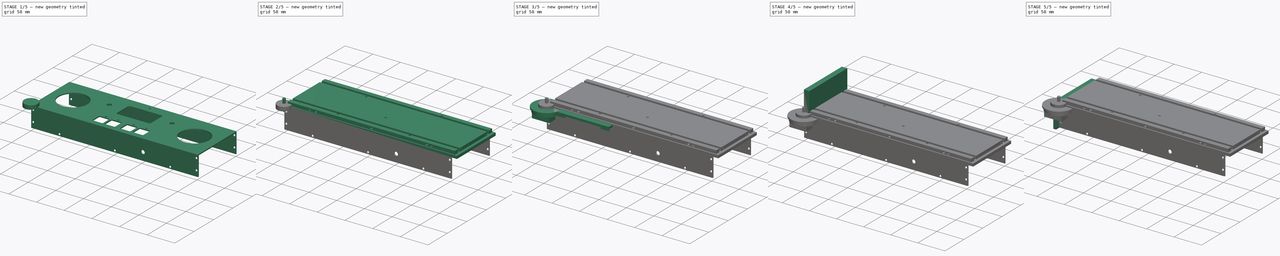
[diagram: build sequence overview — one tinted view per stage of 5, left to right]
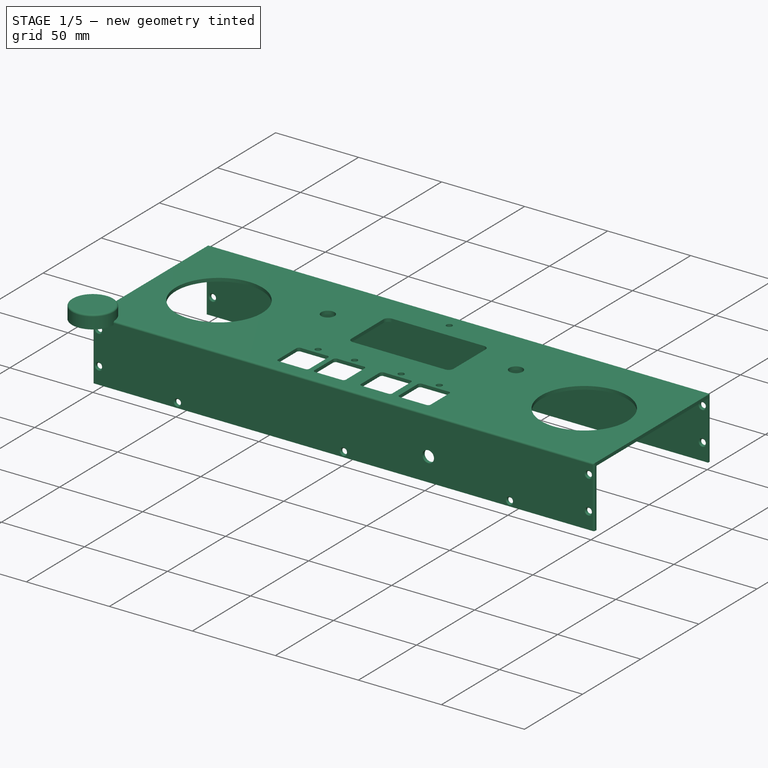
[diagram: stage 1 of 5 — iso view after this stage's code; geometry added in this stage tinted green]
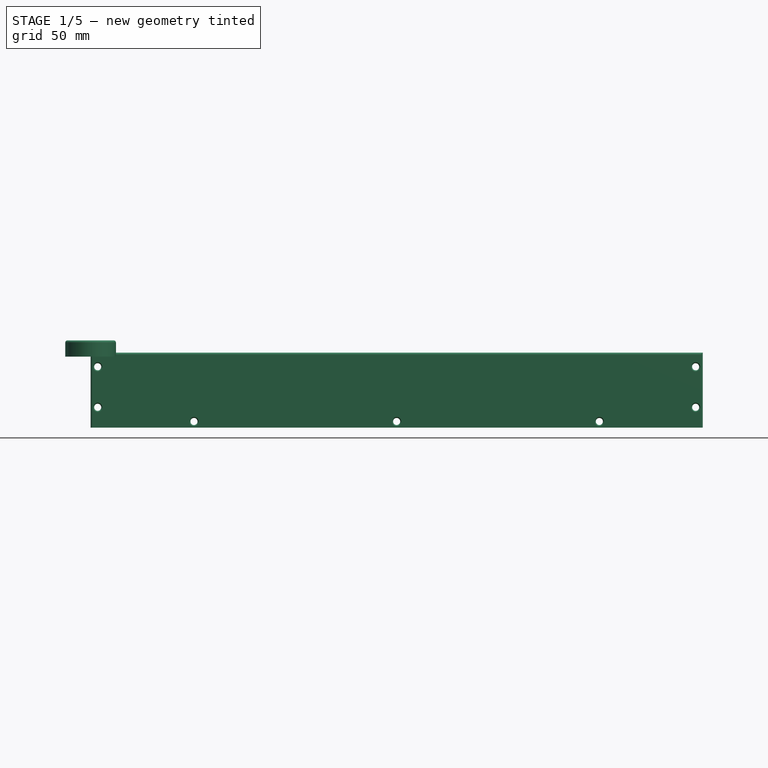
[diagram: stage 1 of 5 — front view after this stage's code; geometry added in this stage tinted green]
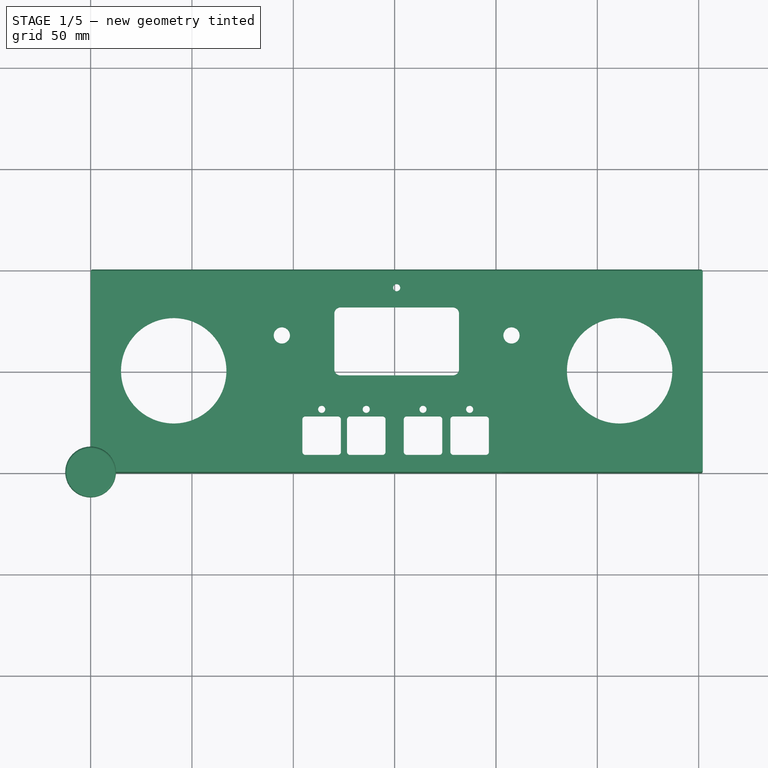
[diagram: stage 1 of 5 — top view after this stage's code; geometry added in this stage tinted green]
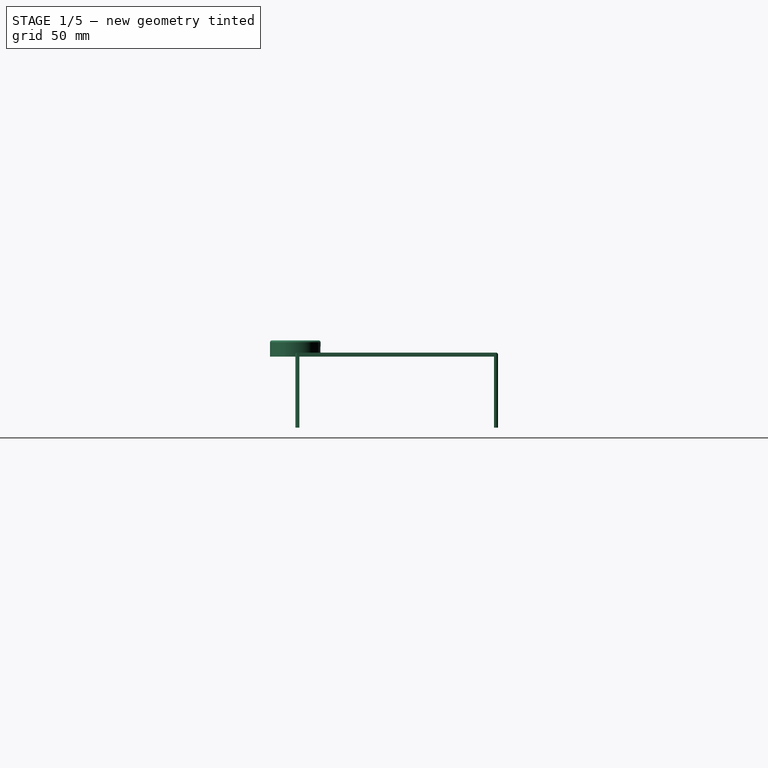
[diagram: stage 1 of 5 — right view after this stage's code; geometry added in this stage tinted green]
FCSTD DOCUMENT  (FreeCAD 0.21R33771 (Git))
Label: Soutra Plainsong Metronome (Alu)
License: All rights reserved
LicenseURL: https://en.wikipedia.org/wiki/All_rights_reserved
objects: Sketcher::SketchObject×64, TechDraw::DrawViewDimension×53, PartDesign::Pocket×33, PartDesign::Pad×31, PartDesign::Body×17, TechDraw::DrawRichAnno×7, PartDesign::Fillet×5, TechDraw::DrawViewPart×5, TechDraw::DrawSVGTemplate×4, TechDraw::DrawPage×4, PartDesign::Chamfer×3, Part::Feature×3, PartDesign::FeatureBase×2, Part::Extrusion×2, Part::Cut×2, PartDesign::Plane×2
note: 333 computed .brp shape members not serialized (recipe doc carries the construction recipe); baked Part::Feature solids carry a one-line shape summary decoded from their .brp

FEATURE [Sketcher::SketchObject] Sketch
  FullyConstrained = true
  MapMode = 5
  Support = -> [XY_Plane]
  sketch-geometry (61):
    g0: LineSegment StartX=0 StartY=0 StartZ=0 EndX=302 EndY=0 EndZ=0
    g1: LineSegment StartX=302 StartY=0 StartZ=0 EndX=302 EndY=100 EndZ=0
    g2: LineSegment StartX=302 StartY=100 StartZ=0 EndX=0 EndY=100 EndZ=0
    g3: LineSegment StartX=0 StartY=100 StartZ=0 EndX=0 EndY=0 EndZ=0
    g4: LineSegment StartX=151 StartY=100 StartZ=0 EndX=151 EndY=0 EndZ=0
    g5: LineSegment StartX=120.25 StartY=78.25 StartZ=0 EndX=120.25 EndY=50.75 EndZ=0
    g6: LineSegment StartX=123.25 StartY=47.75 StartZ=0 EndX=178.75 EndY=47.75 EndZ=0
    g7: LineSegment StartX=181.75 StartY=50.75 StartZ=0 EndX=181.75 EndY=78.25 EndZ=0
    g8: LineSegment StartX=178.75 StartY=81.25 StartZ=0 EndX=123.25 EndY=81.25 EndZ=0
    g9: Circle CenterX=41 CenterY=50 CenterZ=0 NormalX=0 NormalY=0 NormalZ=1 AngleXU=0 Radius=26
    g10: Circle CenterX=261 CenterY=50 CenterZ=0 NormalX=0 NormalY=0 NormalZ=1 AngleXU=0 Radius=26
    g11: LineSegment StartX=104.5 StartY=10 StartZ=0 EndX=104.5 EndY=26 EndZ=0
    g12: LineSegment StartX=106 StartY=27.5 StartZ=0 EndX=122 EndY=27.5 EndZ=0
    g13: LineSegment StartX=123.5 StartY=26 StartZ=0 EndX=123.5 EndY=10 EndZ=0
    g14: LineSegment StartX=122 StartY=8.5 StartZ=0 EndX=106 EndY=8.5 EndZ=0
    g15: LineSegment StartX=126.5 StartY=10 StartZ=0 EndX=126.5 EndY=26 EndZ=0
    g16: LineSegment StartX=128 StartY=27.5 StartZ=0 EndX=144 EndY=27.5 EndZ=0
    g17: LineSegment StartX=145.5 StartY=26 StartZ=0 EndX=145.5 EndY=10 EndZ=0
    g18: LineSegment StartX=144 StartY=8.5 StartZ=0 EndX=128 EndY=8.5 EndZ=0
    g19: LineSegment StartX=97 StartY=8.5 StartZ=0 EndX=125 EndY=8.5 EndZ=0
    g20: LineSegment StartX=154.5 StartY=10 StartZ=0 EndX=154.5 EndY=26 EndZ=0
    g21: LineSegment StartX=156 StartY=27.5 StartZ=0 EndX=172 EndY=27.5 EndZ=0
    g22: LineSegment StartX=173.5 StartY=26 StartZ=0 EndX=173.5 EndY=10 EndZ=0
    g23: LineSegment StartX=172 StartY=8.5 StartZ=0 EndX=156 EndY=8.5 EndZ=0
    g24: LineSegment StartX=125 StartY=8.5 StartZ=0 EndX=153 EndY=8.5 EndZ=0
    g25: LineSegment StartX=177.5 StartY=10 StartZ=0 EndX=177.5 EndY=26 EndZ=0
    g26: LineSegment StartX=179 StartY=27.5 StartZ=0 EndX=195 EndY=27.5 EndZ=0
    g27: LineSegment StartX=196.5 StartY=26 StartZ=0 EndX=196.5 EndY=10 EndZ=0
    g28: LineSegment StartX=195 StartY=8.5 StartZ=0 EndX=179 EndY=8.5 EndZ=0
    g29: LineSegment StartX=153 StartY=8.5 StartZ=0 EndX=181 EndY=8.5 EndZ=0
    g30: Circle CenterX=94.35 CenterY=67.45 CenterZ=0 NormalX=0 NormalY=0 NormalZ=1 AngleXU=0 Radius=4
    g31: Circle CenterX=207.65 CenterY=67.45 CenterZ=0 NormalX=0 NormalY=0 NormalZ=1 AngleXU=0 Radius=4
    g32: Circle CenterX=114 CenterY=31 CenterZ=0 NormalX=0 NormalY=0 NormalZ=1 AngleXU=0 Radius=1.75
    g33: Circle CenterX=136 CenterY=31 CenterZ=0 NormalX=0 NormalY=0 NormalZ=1 AngleXU=0 Radius=1.75
    g34: Circle CenterX=164 CenterY=31 CenterZ=0 NormalX=0 NormalY=0 NormalZ=1 AngleXU=0 Radius=1.75
    g35: Circle CenterX=187 CenterY=31 CenterZ=0 NormalX=0 NormalY=0 NormalZ=1 AngleXU=0 Radius=1.75
    g36: Circle CenterX=151 CenterY=91 CenterZ=0 NormalX=0 NormalY=0 NormalZ=1 AngleXU=0 Radius=1.75
    g37: ArcOfCircle CenterX=195 CenterY=26 CenterZ=0 NormalX=0 NormalY=0 NormalZ=1 AngleXU=0 Radius=1.5 StartAngle=0 EndAngle=1.5708
    g38: ArcOfCircle CenterX=179 CenterY=26 CenterZ=0 NormalX=0 NormalY=0 NormalZ=1 AngleXU=0 Radius=1.5 StartAngle=1.5708 EndAngle=3.14159
    g39: ArcOfCircle CenterX=179 CenterY=10 CenterZ=0 NormalX=0 NormalY=0 NormalZ=1 AngleXU=0 Radius=1.5 StartAngle=3.14159 EndAngle=4.71239
    g40: ArcOfCircle CenterX=195 CenterY=10 CenterZ=0 NormalX=0 NormalY=0 NormalZ=1 AngleXU=0 Radius=1.5 StartAngle=4.71239 EndAngle=6.28319
    g41: ArcOfCircle CenterX=172 CenterY=26 CenterZ=0 NormalX=0 NormalY=0 NormalZ=1 AngleXU=0 Radius=1.5 StartAngle=8e-16 EndAngle=1.5708
    g42: ArcOfCircle CenterX=172 CenterY=10 CenterZ=0 NormalX=0 NormalY=0 NormalZ=1 AngleXU=0 Radius=1.5 StartAngle=4.71239 EndAngle=6.28319
    g43: ArcOfCircle CenterX=156 CenterY=10 CenterZ=0 NormalX=0 NormalY=0 NormalZ=1 AngleXU=0 Radius=1.5 StartAngle=3.14159 EndAngle=4.71239
    g44: ArcOfCircle CenterX=156 CenterY=26 CenterZ=0 NormalX=0 NormalY=0 NormalZ=1 AngleXU=0 Radius=1.5 StartAngle=1.5708 EndAngle=3.14159
    g45: ArcOfCircle CenterX=128 CenterY=26 CenterZ=0 NormalX=0 NormalY=0 NormalZ=1 AngleXU=0 Radius=1.5 StartAngle=1.5708 EndAngle=3.14159
    g46: ArcOfCircle CenterX=128 CenterY=10 CenterZ=0 NormalX=0 NormalY=0 NormalZ=1 AngleXU=0 Radius=1.5 StartAngle=3.14159 EndAngle=4.71239
    g47: ArcOfCircle CenterX=144 CenterY=10 CenterZ=0 NormalX=0 NormalY=0 NormalZ=1 AngleXU=0 Radius=1.5 StartAngle=4.71239 EndAngle=6.28319
    g48: ArcOfCircle CenterX=144 CenterY=26 CenterZ=0 NormalX=0 NormalY=0 NormalZ=1 AngleXU=0 Radius=1.5 StartAngle=0 EndAngle=1.5708
    g49: ArcOfCircle CenterX=106 CenterY=26 CenterZ=0 NormalX=0 NormalY=0 NormalZ=1 AngleXU=0 Radius=1.5 StartAngle=1.5708 EndAngle=3.14159
    g50: ArcOfCircle CenterX=106 CenterY=10 CenterZ=0 NormalX=0 NormalY=0 NormalZ=1 AngleXU=0 Radius=1.5 StartAngle=3.14159 EndAngle=4.71239
    g51: ArcOfCircle CenterX=122 CenterY=10 CenterZ=0 NormalX=0 NormalY=0 NormalZ=1 AngleXU=0 Radius=1.5 StartAngle=4.71239 EndAngle=6.28319
    g52: ArcOfCircle CenterX=122 CenterY=26 CenterZ=0 NormalX=0 NormalY=0 NormalZ=1 AngleXU=0 Radius=1.5 StartAngle=8e-16 EndAngle=1.5708
    g53: ArcOfCircle CenterX=123.25 CenterY=78.25 CenterZ=0 NormalX=0 NormalY=0 NormalZ=1 AngleXU=0 Radius=3 StartAngle=1.5708 EndAngle=3.14159
    g54: ArcOfCircle CenterX=123.25 CenterY=50.75 CenterZ=0 NormalX=0 NormalY=0 NormalZ=1 AngleXU=0 Radius=3 StartAngle=3.14159 EndAngle=4.71239
    g55: ArcOfCircle CenterX=178.75 CenterY=50.75 CenterZ=0 NormalX=0 NormalY=0 NormalZ=1 AngleXU=0 Radius=3 StartAngle=4.71239 EndAngle=6.28319
    g56: ArcOfCircle CenterX=178.75 CenterY=78.25 CenterZ=0 NormalX=0 NormalY=0 NormalZ=1 AngleXU=0 Radius=3 StartAngle=1.7e-15 EndAngle=1.5708
    g57: LineSegment StartX=81 StartY=96 StartZ=0 EndX=221 EndY=96 EndZ=0
    g58: LineSegment StartX=221 StartY=96 StartZ=0 EndX=221 EndY=4 EndZ=0
    g59: LineSegment StartX=221 StartY=4 StartZ=0 EndX=81 EndY=4 EndZ=0
    g60: LineSegment StartX=81 StartY=4 StartZ=0 EndX=81 EndY=96 EndZ=0
  constraints (165):
    c: Coincident(g0,g-1)
    c: PointOnObject(g0,g-1)
    c: Coincident(g1,g0)
    c: Vertical(g1)
    c: Coincident(g2,g1)
    c: Horizontal(g2)
    c: Coincident(g3,g2)
    c: Coincident(g3,g0)
    c: Vertical(g3)
    c: DistanceY(g1,g1) = 100
    c: DistanceX(g0,g0) = 302
    c: PointOnObject(g4,g2)
    c: PointOnObject(g4,g0)
    c: Vertical(g4)
    c: DistanceX(g2,g4) = 151
    c: Vertical(g5)
    c: Horizontal(g6)
    c: Vertical(g7)
    c: Horizontal(g8)
    c: Diameter(g9) = 52
    c: DistanceY(g0,g9) = 50
    c: DistanceX(g2,g9) = 41
    c: Diameter(g10) = 52
    c: DistanceY(g0,g10) = 50
    c: DistanceX(g10,g1) = 41
    c: Vertical(g11)
    c: Horizontal(g12)
    c: Vertical(g13)
    c: Horizontal(g14)
    c: Vertical(g15)
    c: Horizontal(g16)
    c: Vertical(g17)
    c: Horizontal(g18)
    c: Angle(g19) = 0
    c: Vertical(g20)
    c: Horizontal(g21)
    c: Vertical(g22)
    c: Horizontal(g23)
    c: Coincident(g19,g24)
    c: Equal(g19,g24)
    c: Parallel(g24,g19)
    c: Vertical(g25)
    c: Horizontal(g26)
    c: Vertical(g27)
    c: Horizontal(g28)
    c: Coincident(g24,g29)
    c: Equal(g19,g29)
    c: Parallel(g29,g19)
    c: Diameter(g30) = 8
    c: Equal(g30,g31) = 8
    c: Horizontal(g31,g30)
    c: Diameter(g32) = 3.5
    c: Diameter(g33) = 3.5
    c: Diameter(g34) = 3.5
    c: Diameter(g35) = 3.5
    c: Horizontal(g33,g32)
    c: Horizontal(g32,g34)
    c: Horizontal(g34,g35)
    c: Equal(g35,g36) = 2.9
    c: PointOnObject(g36,g4)
    c: DistanceY(g36,g4) = 9
    c: Tangent(g26,g37) = 1.5708
    c: Tangent(g27,g37) = 1.5708
    c: Tangent(g26,g38) = 1.5708
    c: Tangent(g25,g38) = 1.5708
    c: Tangent(g25,g39) = 1.5708
    c: Tangent(g28,g39) = 1.5708
    c: Tangent(g27,g40) = 1.5708
    c: Tangent(g28,g40) = 1.5708
    c: Radius(g37) = 1.5
    c: Equal(g38,g39)
    c: Equal(g39,g40)
    c: Equal(g40,g37)
    c: DistanceX(g25,g27) = 19
    c: DistanceX(g35,g27) = 9.5
    c: Tangent(g21,g41) = 1.5708
    c: Tangent(g22,g41) = 1.5708
    c: Tangent(g23,g42) = 1.5708
    c: Tangent(g22,g42) = 1.5708
    c: Tangent(g20,g43) = 1.5708
    c: Tangent(g23,g43) = 1.5708
    c: Tangent(g21,g44) = 1.5708
    c: Tangent(g20,g44) = 1.5708
    c: Radius(g41) = 1.5
    c: Equal(g44,g41)
    c: Equal(g41,g42)
    c: Equal(g42,g43)
    c: DistanceY(g28,g26) = 19
    c: Horizontal(g21,g26)
    c: Horizontal(g23,g28)
    c: DistanceX(g20,g22) = 19
    c: Horizontal(g24,g23)
    c: DistanceX(g20,g34) = 9.5
    c: DistanceX(g4,g20) = 3.5
    c: DistanceX(g22,g25) = 4
    c: Tangent(g16,g45) = 1.5708
    c: Tangent(g15,g45) = 1.5708
    c: Tangent(g15,g46) = 1.5708
    c: Tangent(g18,g46) = 1.5708
    c: Tangent(g18,g47) = 1.5708
    c: Tangent(g17,g47) = 1.5708
    c: Tangent(g16,g48) = 1.5708
    c: Tangent(g17,g48) = 1.5708
    c: Radius(g48) = 1.5
    c: Equal(g48,g45)
    c: Equal(g45,g46)
    c: Equal(g46,g47)
    c: Horizontal(g16,g21)
    c: Horizontal(g18,g23)
    c: DistanceX(g15,g17) = 19
    c: DistanceX(g17,g4) = 5.5
    c: DistanceX(g15,g33) = 9.5
    c: Tangent(g12,g49) = 1.5708
    c: Tangent(g11,g49) = 1.5708
    c: Tangent(g11,g50) = 1.5708
    c: Tangent(g14,g50) = 1.5708
    c: Tangent(g14,g51) = 1.5708
    c: Tangent(g13,g51) = 1.5708
    c: Tangent(g12,g52) = 1.5708
    c: Tangent(g13,g52) = 1.5708
    c: Radius(g52) = 1.5
    c: Equal(g49,g50)
    c: Equal(g50,g51)
    c: Equal(g51,g52)
    c: Horizontal(g12,g16)
    c: Horizontal(g14,g18)
    c: DistanceX(g11,g13) = 19
    c: DistanceX(g11,g32) = 9.5
    c: DistanceX(g13,g15) = 3
    c: DistanceY(g4,g23) = 8.5
    c: DistanceY(g21,g34) = 3.5
    c: Tangent(g8,g53) = -1.5708
    c: Tangent(g5,g53) = -1.5708
    c: Tangent(g5,g54) = -1.5708
    c: Tangent(g6,g54) = -1.5708
    c: Tangent(g6,g55) = -1.5708
    c: Tangent(g7,g55) = -1.5708
    c: Tangent(g8,g56) = -1.5708
    c: Tangent(g7,g56) = -1.5708
    c: Radius(g56) = 3
    c: Equal(g53,g54)
    c: Equal(g54,g55)
    c: Equal(g55,g56)
    c: DistanceY(g6,g8) = 33.5
    c: DistanceX(g5,g7) = 61.5
    c: DistanceX(g5,g4) = 30.75
    c: DistanceY(g8,g4) = 18.75
    c: DistanceX(g30,g5) = 25.9
    c: DistanceX(g7,g31) = 25.9
    c: DistanceY(g30,g8) = 13.8
    c: DistanceX(g19,g4) = 54
    c: DistanceX(g19,g19) = 28
    c: Coincident(g57,g58)
    c: Coincident(g58,g59)
    c: Coincident(g59,g60)
    c: Coincident(g60,g57)
    c: Horizontal(g57)
    c: Horizontal(g59)
    c: Vertical(g58)
    c: Vertical(g60)
    c: DistanceX(g57,g57) = 140
    c: DistanceY(g58,g58) = 92
    c: DistanceY(g0,g58) = 4
    c: DistanceX(g36,g57) = 70
    c: DistanceX(g59,g32) = 33
FEATURE [PartDesign::Pad] Pad  label="Top Plate"
  Direction = (0,0,1)
  Length = 2
  Length2 = 10
  Profile = -> Sketch
  ReferenceAxis = -> Sketch [N_Axis]
  Type = 0
FEATURE [PartDesign::Body] Body005  label="MDF - Right Speaker Mount"
  BaseFeature = -> Body004
  Group = -> [Clone001]
  Origin = -> Origin005
  Placement = pos=(217,0,0) rot=(0,0,1;0rad)
  Tip = -> Clone001
FEATURE [Sketcher::SketchObject] Sketch027
  FullyConstrained = true
  MapMode = 5
  Placement = pos=(0,0,0) rot=(1,0,0;3.14159rad)
  Support = -> [Pad]
  sketch-geometry (8):
    g0: LineSegment StartX=0 StartY=0 StartZ=0 EndX=302 EndY=0 EndZ=0
    g1: LineSegment StartX=302 StartY=0 StartZ=0 EndX=302 EndY=-2 EndZ=0
    g2: LineSegment StartX=302 StartY=-2 StartZ=0 EndX=0 EndY=-2 EndZ=0
    g3: LineSegment StartX=0 StartY=-2 StartZ=0 EndX=0 EndY=0 EndZ=0
    g4: LineSegment StartX=0 StartY=-100 StartZ=0 EndX=302 EndY=-100 EndZ=0
    g5: LineSegment StartX=302 StartY=-100 StartZ=0 EndX=302 EndY=-98 EndZ=0
    g6: LineSegment StartX=302 StartY=-98 StartZ=0 EndX=0 EndY=-98 EndZ=0
    g7: LineSegment StartX=0 StartY=-98 StartZ=0 EndX=0 EndY=-100 EndZ=0
  constraints (23):
    c: Coincident(g0,g1)
    c: Coincident(g1,g2)
    c: Coincident(g2,g3)
    c: Coincident(g3,g0)
    c: Horizontal(g0)
    c: Horizontal(g2)
    c: Vertical(g1)
    c: Vertical(g3)
    c: Coincident(g0,g-1)
    c: DistanceX(g0,g0) = 302
    c: DistanceY(g1,g0) = 2
    c: Coincident(g4,g5)
    c: Coincident(g5,g6)
    c: Coincident(g6,g7)
    c: Coincident(g7,g4)
    c: Horizontal(g4)
    c: Horizontal(g6)
    c: Vertical(g5)
    c: Vertical(g7)
    c: PointOnObject(g4,g-2)
    c: DistanceX(g4,g4) = 302
    c: DistanceY(g4,g5) = 2
    c: DistanceY(g4,g0) = 100
FEATURE [PartDesign::Pad] Pad007  label="Front and Back Plate Extrusions"
  BaseFeature = -> Pad
  Direction = (0,0,-1)
  Length = 35
  Length2 = 10
  Profile = -> Sketch027
  ReferenceAxis = -> Sketch027 [N_Axis]
  Type = 0
FEATURE [Sketcher::SketchObject] Sketch028
  FullyConstrained = true
  MapMode = 5
  Placement = pos=(0,0,0) rot=(1,0,0;1.5708rad)
  Support = -> [Pad007]
  sketch-geometry (7):
    g0: Circle CenterX=3.5 CenterY=-5 CenterZ=0 NormalX=0 NormalY=0 NormalZ=1 AngleXU=0 Radius=1.75
    g1: Circle CenterX=3.5 CenterY=-25 CenterZ=0 NormalX=0 NormalY=0 NormalZ=1 AngleXU=0 Radius=1.75
    g2: Circle CenterX=51 CenterY=-32 CenterZ=0 NormalX=0 NormalY=0 NormalZ=1 AngleXU=0 Radius=1.75
    g3: Circle CenterX=151 CenterY=-32 CenterZ=0 NormalX=0 NormalY=0 NormalZ=1 AngleXU=0 Radius=1.75
    g4: Circle CenterX=251 CenterY=-32 CenterZ=0 NormalX=0 NormalY=0 NormalZ=1 AngleXU=0 Radius=1.75
    g5: Circle CenterX=298.5 CenterY=-25 CenterZ=0 NormalX=0 NormalY=0 NormalZ=1 AngleXU=0 Radius=1.75
    g6: Circle CenterX=298.5 CenterY=-5 CenterZ=0 NormalX=0 NormalY=0 NormalZ=1 AngleXU=0 Radius=1.75
  constraints (21):
    c: Diameter(g0) = 3.5
    c: DistanceX(g-1,g0) = 3.5
    c: DistanceY(g0,g-1) = 5
    c: Horizontal(g4,g3)
    c: Horizontal(g3,g2)
    c: Horizontal(g1,g5)
    c: Horizontal(g6,g0)
    c: Equal(g0,g1)
    c: Equal(g1,g2)
    c: Equal(g2,g3)
    c: Equal(g3,g4)
    c: Equal(g4,g5)
    c: Equal(g5,g6)
    c: Vertical(g0,g1)
    c: DistanceY(g1,g-1) = 25
    c: DistanceY(g2,g-1) = 32
    c: DistanceX(g-1,g2) = 51
    c: DistanceX(g-1,g3) = 151
    c: DistanceX(g-1,g4) = 251
    c: Vertical(g5,g6)
    c: DistanceX(g-1,g5) = 298.5
FEATURE [PartDesign::Pocket] Pocket020  label="Front Screw Holes"
  BaseFeature = -> Pad007
  Direction = (0,1,-2e-16)
  Length = 2
  Length2 = 5
  Profile = -> Sketch028
  ReferenceAxis = -> Sketch028 [N_Axis]
  Type = 0
FEATURE [Sketcher::SketchObject] Sketch029
  FullyConstrained = true
  MapMode = 5
  Placement = pos=(0,100,0) rot=(0,0.707107,0.707107;3.14159rad)
  Support = -> [Pocket020]
  sketch-geometry (7):
    g0: Circle CenterX=-3.5 CenterY=-5 CenterZ=0 NormalX=0 NormalY=0 NormalZ=1 AngleXU=0 Radius=1.75
    g1: Circle CenterX=-3.5 CenterY=-25 CenterZ=0 NormalX=0 NormalY=0 NormalZ=1 AngleXU=0 Radius=1.75
    g2: Circle CenterX=-51 CenterY=-32 CenterZ=0 NormalX=0 NormalY=0 NormalZ=1 AngleXU=0 Radius=1.75
    g3: Circle CenterX=-151 CenterY=-32 CenterZ=0 NormalX=0 NormalY=0 NormalZ=1 AngleXU=0 Radius=1.75
    g4: Circle CenterX=-251 CenterY=-32 CenterZ=0 NormalX=0 NormalY=0 NormalZ=1 AngleXU=0 Radius=1.75
    g5: Circle CenterX=-298.5 CenterY=-5 CenterZ=0 NormalX=0 NormalY=0 NormalZ=1 AngleXU=0 Radius=1.75
    g6: Circle CenterX=-298.5 CenterY=-25 CenterZ=0 NormalX=0 NormalY=0 NormalZ=1 AngleXU=0 Radius=1.75
  constraints (21):
    c: Diameter(g0) = 3.5
    c: DistanceY(g0,g-1) = 5
    c: DistanceX(g0,g-1) = 3.5
    c: Vertical(g0,g1)
    c: Horizontal(g0,g5)
    c: Vertical(g5,g6)
    c: Horizontal(g4,g3)
    c: Horizontal(g3,g2)
    c: Equal(g0,g1)
    c: Equal(g1,g2)
    c: Equal(g2,g3)
    c: Equal(g3,g4)
    c: Equal(g4,g6)
    c: Equal(g6,g5)
    c: DistanceY(g1,g-1) = 25
    c: DistanceX(g5,g-1) = 298.5
    c: Horizontal(g6,g1)
    c: DistanceY(g2,g-1) = 32
    c: DistanceX(g2,g-1) = 51
    c: DistanceX(g3,g-1) = 151
    c: DistanceX(g4,g-1) = 251
FEATURE [PartDesign::Pocket] Pocket021  label="Rear Screw Holes"
  BaseFeature = -> Pocket020
  Direction = (0,-1,2e-16)
  Length = 2
  Length2 = 5
  Profile = -> Sketch029
  ReferenceAxis = -> Sketch029 [N_Axis]
  Type = 0
FEATURE [PartDesign::Chamfer] Chamfer  label="Screw Hole Countersinking"
  Angle = 45
  Base = -> Pocket021 [Face18,Face14,Face13,Face15,Face16,Face19,Face17,Face78,Face74,Face73,Face75,Face76,Face77,Face79]
  BaseFeature = -> Pocket021
  ChamferType = 0
  FlipDirection = false
  Size = 0.5
  Size2 = 1
  SupportTransform = false
  UseAllEdges = false
FEATURE [PartDesign::Fillet] Fillet  label="Panel Corner Bends"
  Base = -> Chamfer [Face4,Face32]
  BaseFeature = -> Chamfer
  Radius = 1
  SupportTransform = false
  UseAllEdges = false
FEATURE [PartDesign::Body] Body001  label="Wood - Base"
  Group = -> [Sketch002,Pad002,Sketch003,Pocket,Sketch004,Pocket001,Sketch008,Pocket003,Sketch018,Pocket011,Sketch019,Pocket012,Sketch020,Pocket013,Sketch021,Pocket014,Sketch022,Pocket015,Sketch023,Pocket016,Chamfer001,Sketch058,Pocket028]
  Origin = -> Origin001
  Placement = pos=(-5,0,-40) rot=(0,0,1;0rad)
  Tip = -> Pocket028
FEATURE [Sketcher::SketchObject] Sketch059
  FullyConstrained = true
  MapMode = 5
  Support = -> [XY_Plane015]
  sketch-geometry (1):
    g0: Circle CenterX=0 CenterY=0 CenterZ=0 NormalX=0 NormalY=0 NormalZ=1 AngleXU=0 Radius=12.5
  constraints (2):
    c: Diameter(g0) = 25
    c: Coincident(g0,g-1)
FEATURE [PartDesign::Pad] Pad030
  Direction = (0,0,1)
  Length = 8
  Length2 = 10
  Profile = -> Sketch059
  ReferenceAxis = -> Sketch059 [N_Axis]
  Type = 0
FEATURE [Sketcher::SketchObject] Sketch060
  FullyConstrained = true
  MapMode = 5
  Placement = pos=(0,0,0) rot=(1,0,0;3.14159rad)
  Support = -> [Pad030]
  sketch-geometry (1):
    g0: Circle CenterX=0 CenterY=0 CenterZ=0 NormalX=0 NormalY=0 NormalZ=1 AngleXU=0 Radius=3.5
  constraints (2):
    c: Coincident(g0,g-1)
    c: Diameter(g0) = 7
FEATURE [PartDesign::Pocket] Pocket029
  BaseFeature = -> Pad030
  Direction = (0,0,1)
  Length = 6.5
  Length2 = 5
  Profile = -> Sketch060
  ReferenceAxis = -> Sketch060 [N_Axis]
  Type = 0
FEATURE [PartDesign::Fillet] Fillet003
  Base = -> Pocket029 [Edge3]
  BaseFeature = -> Pocket029
  Radius = 1
  SupportTransform = false
  UseAllEdges = false
FEATURE [PartDesign::Plane] DatumPlane
  AttachmentOffset = pos=(0,12.5,0) rot=(0,0.707107,0.707107;3.14159rad)
  Length = 60
  MapMode = 45
  Placement = pos=(0,12.5,3.5) rot=(0,0.707107,0.707107;3.14159rad)
  ResizeMode = 0
  Support = -> [Fillet003]
  Width = 60
FEATURE [Sketcher::SketchObject] Sketch061
  FullyConstrained = true
  MapMode = 5
  Placement = pos=(0,12.5,3.5) rot=(0,0.707107,0.707107;3.14159rad)
  Support = -> [DatumPlane]
  sketch-geometry (1):
    g0: Circle CenterX=0 CenterY=0 CenterZ=0 NormalX=0 NormalY=0 NormalZ=1 AngleXU=0 Radius=2
  constraints (2):
    c: Coincident(g0,g-1)
    c: Diameter(g0) = 4
FEATURE [PartDesign::Pocket] Pocket030
  BaseFeature = -> Fillet003
  Direction = (-1e-16,-1,-2e-16)
  Length = 10
  Length2 = 5
  Profile = -> Sketch061
  ReferenceAxis = -> Sketch061 [N_Axis]
  Type = 0
FEATURE [PartDesign::Body] Body015  label="Encoder Knob - Left"
  Group = -> [Sketch059,Pad030,Sketch060,Pocket029,Fillet003,DatumPlane,Sketch061,Pocket030]
  Origin = -> Origin015
  Placement = pos=(94.5,67.5,2.5) rot=(0,0,1;0rad)
  Tip = -> Pocket030
FEATURE [Sketcher::SketchObject] Sketch062
  FullyConstrained = true
  MapMode = 5
  Support = -> [XY_Plane016]
  sketch-geometry (1):
    g0: Circle CenterX=0 CenterY=0 CenterZ=0 NormalX=0 NormalY=0 NormalZ=1 AngleXU=0 Radius=12.5
  constraints (2):
    c: Diameter(g0) = 25
    c: Coincident(g0,g-1)
FEATURE [PartDesign::Pad] Pad031
  Direction = (0,0,1)
  Length = 8
  Length2 = 10
  Profile = -> Sketch062
  ReferenceAxis = -> Sketch062 [N_Axis]
  Type = 0
FEATURE [Sketcher::SketchObject] Sketch063
  FullyConstrained = true
  MapMode = 5
  Placement = pos=(0,0,0) rot=(1,0,0;3.14159rad)
  Support = -> [Pad031]
  sketch-geometry (1):
    g0: Circle CenterX=0 CenterY=0 CenterZ=0 NormalX=0 NormalY=0 NormalZ=1 AngleXU=0 Radius=3.5
  constraints (2):
    c: Coincident(g0,g-1)
    c: Diameter(g0) = 7
FEATURE [PartDesign::Pocket] Pocket031
  BaseFeature = -> Pad031
  Direction = (0,0,1)
  Length = 6.5
  Length2 = 5
  Profile = -> Sketch063
  ReferenceAxis = -> Sketch063 [N_Axis]
  Type = 0
FEATURE [PartDesign::Fillet] Fillet004
  Base = -> Pocket031 [Edge3]
  BaseFeature = -> Pocket031
  Radius = 1
  SupportTransform = false
  UseAllEdges = false
FEATURE [PartDesign::Plane] DatumPlane001
  AttachmentOffset = pos=(0,12.5,0) rot=(0,0.707107,0.707107;3.14159rad)
  Length = 60
  MapMode = 45
  Placement = pos=(0,12.5,3.5) rot=(0,0.707107,0.707107;3.14159rad)
  ResizeMode = 0
  Support = -> [Fillet004]
  Width = 60
FEATURE [Sketcher::SketchObject] Sketch064
  FullyConstrained = true
  MapMode = 5
  Placement = pos=(0,12.5,3.5) rot=(0,0.707107,0.707107;3.14159rad)
  Support = -> [DatumPlane001]
  sketch-geometry (1):
    g0: Circle CenterX=0 CenterY=0 CenterZ=0 NormalX=0 NormalY=0 NormalZ=1 AngleXU=0 Radius=2
  constraints (2):
    c: Coincident(g0,g-1)
    c: Diameter(g0) = 4
FEATURE [PartDesign::Pocket] Pocket032
  BaseFeature = -> Fillet004
  Direction = (-1e-16,-1,-2e-16)
  Length = 10
  Length2 = 5
  Profile = -> Sketch064
  ReferenceAxis = -> Sketch064 [N_Axis]
  Type = 0
FEATURE [PartDesign::Body] Body016  label="Encoder Knob - Right"
  Group = -> [Sketch062,Pad031,Sketch063,Pocket031,Fillet004,DatumPlane001,Sketch064,Pocket032]
  Origin = -> Origin016
  Placement = pos=(207.5,67.5,2.5) rot=(0,0,1;0rad)
  Tip = -> Pocket032
FEATURE [Sketcher::SketchObject] Sketch065
  FullyConstrained = true
  MapMode = 5
  Placement = pos=(0,100,0) rot=(0,0.707107,0.707107;3.14159rad)
  Support = -> [Fillet]
  sketch-geometry (8):
    g0: LineSegment StartX=-207.8 StartY=-0.2 StartZ=0 EndX=-197.8 EndY=-0.2 EndZ=0
    g1: LineSegment StartX=-197.8 StartY=-0.2 StartZ=0 EndX=-197.8 EndY=-12.2 EndZ=0
    g2: LineSegment StartX=-197.8 StartY=-12.2 StartZ=0 EndX=-207.8 EndY=-12.2 EndZ=0
    g3: LineSegment StartX=-207.8 StartY=-12.2 StartZ=0 EndX=-207.8 EndY=-0.2 EndZ=0
    g4: LineSegment StartX=-207.3 StartY=-0.7 StartZ=0 EndX=-198.3 EndY=-0.7 EndZ=0
    g5: LineSegment StartX=-198.3 StartY=-0.7 StartZ=0 EndX=-198.3 EndY=-11.45 EndZ=0
    g6: LineSegment StartX=-198.3 StartY=-11.45 StartZ=0 EndX=-207.3 EndY=-11.45 EndZ=0
    g7: LineSegment StartX=-207.3 StartY=-11.45 StartZ=0 EndX=-207.3 EndY=-0.7 EndZ=0
  constraints (24):
    c: Coincident(g0,g1)
    c: Coincident(g1,g2)
    c: Coincident(g2,g3)
    c: Horizontal(g0)
    c: Horizontal(g2)
    c: Vertical(g1)
    c: Vertical(g3)
    c: DistanceY(g1,g1) = 12
    c: DistanceX(g0,g0) = 10
    c: Coincident(g4,g5)
    c: Coincident(g5,g6)
    c: Coincident(g6,g7)
    c: Coincident(g7,g4)
    c: Horizontal(g4)
    c: Horizontal(g6)
    c: Vertical(g5)
    c: Vertical(g7)
    c: DistanceX(g4,g4) = 9
    c: DistanceY(g5,g5) = 10.75
    c: DistanceY(g4,g-1) = 0.7
    c: DistanceX(g4,g-1) = 198.3
    c: Coincident(g3,g0)
    c: DistanceY(g4,g0) = 0.5
    c: DistanceX(g5,g1) = 0.5
FEATURE [PartDesign::Pocket] Pocket033  label="DC Jack Hole"
  BaseFeature = -> Fillet
  Direction = (0,-1,2e-16)
  Length = 2
  Length2 = 5
  Profile = -> Sketch065
  ReferenceAxis = -> Sketch065 [N_Axis]
  Type = 0
FEATURE [Sketcher::SketchObject] Sketch066
  FullyConstrained = true
  MapMode = 5
  Placement = pos=(0,0,0) rot=(1,0,0;1.5708rad)
  Support = -> [Pocket033]
  sketch-geometry (1):
    g0: Circle CenterX=202 CenterY=-21 CenterZ=0 NormalX=0 NormalY=0 NormalZ=1 AngleXU=0 Radius=3.5
  constraints (3):
    c: Diameter(g0) = 7
    c: DistanceY(g0,g-1) = 21
    c: DistanceX(g-1,g0) = 202
FEATURE [PartDesign::Pocket] Pocket034  label="3.5mm Audio Jack Hole"
  BaseFeature = -> Pocket033
  Direction = (0,1,-2e-16)
  Length = 2
  Length2 = 5
  Profile = -> Sketch066
  ReferenceAxis = -> Sketch066 [N_Axis]
  Type = 0
FEATURE [PartDesign::Body] Body  label="Aluminium Cover"
  Group = -> [Sketch,Pad,Sketch027,Pad007,Sketch028,Pocket020,Sketch029,Pocket021,Chamfer,Fillet,Sketch065,Pocket033,Sketch066,Pocket034]
  Origin = -> Origin
  Tip = -> Pocket034
FEATURE [TechDraw::DrawSVGTemplate] Template
  EditableTexts = Designed_by_Name=Designed by Name; Drawing_number=Drawing number; FC-Date=Date; FC-SC=Scale; FC-SH=Sheet; FC-Title=Alu. Cover - Full View; Subtitle=Subtitle; Weight=Weight
  Height = 210
  Orientation = 1
  Template = <userpath>/AppData/Local/Programs/FreeCAD 0.21/data/Mod/TechDraw/Templates/A4_LandscapeTD.svg
  Width = 297
FEATURE [TechDraw::DrawViewPart] View
  CoarseView = false
  Direction = (0.57735,-0.57735,0.57735)
  Focus = 100
  HardHidden = false
  IsoCount = 0
  IsoHidden = false
  IsoVisible = false
  LockPosition = false
  Perspective = false
  Rotation = 0
  Scale = 0.5
  ScaleType = 2
  ScrubCount = 0
  SeamHidden = false
  SeamVisible = false
  SmoothHidden = false
  SmoothVisible = true
  Source = -> [Body]
  X = 146.627
  XDirection = (0.707107,0.707107,0)
  Y = 128.19
FEATURE [TechDraw::DrawPage] Page  label="Alu. Cover 1"
  KeepUpdated = true
  NextBalloonIndex = 1
  ProjectionType = 0
  Template = -> Template
  Views = -> [View]
FEATURE [TechDraw::DrawSVGTemplate] Template001
  EditableTexts = Designed_by_Name=Designed by Name; Drawing_number=Drawing number; FC-Date=Date; FC-SC=Scale; FC-SH=Sheet; FC-Title=Alu. Cover - Top Panel; Subtitle=Subtitle; Weight=Weight
  Height = 210
  Orientation = 1
  Template = <userpath>/AppData/Local/Programs/FreeCAD 0.21/data/Mod/TechDraw/Templates/A4_LandscapeTD.svg
  Width = 297
FEATURE [TechDraw::DrawViewPart] View001
  CoarseView = false
  Direction = (0,0,1)
  Focus = 100
  HardHidden = false
  IsoCount = 0
  IsoHidden = false
  IsoVisible = false
  LockPosition = false
  Perspective = false
  Rotation = 0
  Scale = 0.5
  ScaleType = 2
  ScrubCount = 0
  SeamHidden = false
  SeamVisible = false
  SmoothHidden = false
  SmoothVisible = true
  Source = -> [Body]
  X = 144.103
  XDirection = (1,0,0)
  Y = 162.131
FEATURE [TechDraw::DrawViewDimension] Dimension
  AngleOverride = false
  Arbitrary = false
  ArbitraryTolerances = false
  EqualTolerance = true
  ExtensionAngle = 0
  FormatSpec = %.0w
  FormatSpecOverTolerance = %+.0w
  FormatSpecUnderTolerance = %+.0w
  Inverted = false
  LineAngle = 0
  LockPosition = false
  MeasureType = 1
  OverTolerance = 0
  References2D = -> [View001]
  Rotation = 0
  ScaleType = 0
  TheoreticalExact = false
  Type = 2
  UnderTolerance = 0
  X = 78.4804
  Y = 1.20554
FEATURE [TechDraw::DrawViewDimension] Dimension001
  AngleOverride = false
  Arbitrary = false
  ArbitraryTolerances = false
  EqualTolerance = true
  ExtensionAngle = 0
  FormatSpec = %.0w
  FormatSpecOverTolerance = %+.0w
  FormatSpecUnderTolerance = %+.0w
  Inverted = false
  LineAngle = 0
  LockPosition = false
  MeasureType = 1
  OverTolerance = 0
  References2D = -> [View001]
  Rotation = 0
  ScaleType = 0
  TheoreticalExact = false
  Type = 2
  UnderTolerance = 0
  X = -85.3339
  Y = 0.677065
FEATURE [TechDraw::DrawRichAnno] RichTextAnnotation
  AnnoText = <!DOCTYPE HTML PUBLIC "-//W3C//DTD HTML 4.0//EN" "http://www.w3.org/TR/REC-html40/strict.dtd">\n<html><head><meta name="qrichtext" content="1" /><style type="text/css">\np, li { white-space: pre-wrap; }\n</style></head><body style=" font-family:'osifont'; font-size:8.25pt; font-weight:400; font-style:normal;">\n<p style=" margin-top:0px; margin-bottom:0px; margin-left:0px; margin-right:0px; -qt-block-indent:0; text-indent:0px;"><span style=" font-family:'MS Shell Dlg 2'; font-size:8pt;">Outside of bend</span></p></body></html>
  LockPosition = false
  MaxWidth = -1
  Rotation = 0
  ScaleType = 0
  ShowFrame = true
  X = 43.1582
  Y = 161.359
FEATURE [TechDraw::DrawRichAnno] RichTextAnnotation001
  AnnoText = <!DOCTYPE HTML PUBLIC "-//W3C//DTD HTML 4.0//EN" "http://www.w3.org/TR/REC-html40/strict.dtd">\n<html><head><meta name="qrichtext" content="1" /><style type="text/css">\np, li { white-space: pre-wrap; }\n</style></head><body style=" font-family:'osifont'; font-size:8.25pt; font-weight:400; font-style:normal;">\n<p style=" margin-top:0px; margin-bottom:0px; margin-left:0px; margin-right:0px; -qt-block-indent:0; text-indent:0px;"><span style=" font-family:'MS Shell Dlg 2'; font-size:8pt;">Inside of bend</span></p></body></html>
  LockPosition = false
  MaxWidth = -1
  Rotation = 0
  ScaleType = 0
  ShowFrame = true
  X = 237.341
  Y = 162.392
FEATURE [TechDraw::DrawViewDimension] Dimension002
  AngleOverride = false
  Arbitrary = false
  ArbitraryTolerances = false
  EqualTolerance = true
  ExtensionAngle = 0
  FormatSpec = ⌀%.0w
  FormatSpecOverTolerance = %+.0w
  FormatSpecUnderTolerance = %+.0w
  Inverted = false
  LineAngle = 0
  LockPosition = false
  MeasureType = 1
  OverTolerance = 0
  References2D = -> [View001]
  Rotation = 0
  ScaleType = 0
  TheoreticalExact = false
  Type = 5
  UnderTolerance = 0
  X = -41.111
  Y = 8.91548
FEATURE [TechDraw::DrawViewDimension] Dimension003
  AngleOverride = false
  Arbitrary = false
  ArbitraryTolerances = false
  EqualTolerance = true
  ExtensionAngle = 0
  FormatSpec = ⌀%.0w
  FormatSpecOverTolerance = %+.0w
  FormatSpecUnderTolerance = %+.0w
  Inverted = false
  LineAngle = 0
  LockPosition = false
  MeasureType = 1
  OverTolerance = 0
  References2D = -> [View001]
  Rotation = 0
  ScaleType = 0
  TheoreticalExact = false
  Type = 5
  UnderTolerance = 0
  X = -25.2501
  Y = 12.9888
FEATURE [TechDraw::DrawViewDimension] Dimension004
  AngleOverride = false
  Arbitrary = false
  ArbitraryTolerances = false
  EqualTolerance = true
  ExtensionAngle = 0
  FormatSpec = ⌀%.0w
  FormatSpecOverTolerance = %+.0w
  FormatSpecUnderTolerance = %+.0w
  Inverted = false
  LineAngle = 0
  LockPosition = false
  MeasureType = 1
  OverTolerance = 0
  References2D = -> [View001]
  Rotation = 0
  ScaleType = 0
  TheoreticalExact = false
  Type = 5
  UnderTolerance = 0
  X = -3.75832
  Y = 23.881
FEATURE [TechDraw::DrawViewDimension] Dimension005
  AngleOverride = false
  Arbitrary = false
  ArbitraryTolerances = false
  EqualTolerance = true
  ExtensionAngle = 0
  FormatSpec = ⌀%.0w
  FormatSpecOverTolerance = %+.0w
  FormatSpecUnderTolerance = %+.0w
  Inverted = false
  LineAngle = 0
  LockPosition = false
  MeasureType = 1
  OverTolerance = 0
  References2D = -> [View001]
  Rotation = 0
  ScaleType = 0
  TheoreticalExact = false
  Type = 5
  UnderTolerance = 0
  X = -25.4287
  Y = -7.07993
FEATURE [TechDraw::DrawViewDimension] Dimension006
  AngleOverride = false
  Arbitrary = false
  ArbitraryTolerances = false
  EqualTolerance = true
  ExtensionAngle = 0
  FormatSpec = %.0w
  FormatSpecOverTolerance = %+.0w
  FormatSpecUnderTolerance = %+.0w
  Inverted = false
  LineAngle = 0
  LockPosition = false
  MeasureType = 1
  OverTolerance = 0
  References2D = -> [View001]
  Rotation = 0
  ScaleType = 0
  TheoreticalExact = false
  Type = 1
  UnderTolerance = 0
  X = -18.8926
  Y = -25.5865
FEATURE [TechDraw::DrawViewDimension] Dimension007
  AngleOverride = false
  Arbitrary = false
  ArbitraryTolerances = false
  EqualTolerance = true
  ExtensionAngle = 0
  FormatSpec = %.0w
  FormatSpecOverTolerance = %+.0w
  FormatSpecUnderTolerance = %+.0w
  Inverted = false
  LineAngle = 0
  LockPosition = false
  MeasureType = 1
  OverTolerance = 0
  References2D = -> [View001]
  Rotation = 0
  ScaleType = 0
  TheoreticalExact = false
  Type = 2
  UnderTolerance = 0
  X = -35.2199
  Y = -14.7042
FEATURE [TechDraw::DrawViewDimension] Dimension008
  AngleOverride = false
  Arbitrary = false
  ArbitraryTolerances = false
  EqualTolerance = true
  ExtensionAngle = 0
  FormatSpec = %.0w
  FormatSpecOverTolerance = %+.0w
  FormatSpecUnderTolerance = %+.0w
  Inverted = false
  LineAngle = 0
  LockPosition = false
  MeasureType = 1
  OverTolerance = 0
  References2D = -> [View001]
  Rotation = 0
  ScaleType = 0
  TheoreticalExact = false
  Type = 1
  UnderTolerance = 0
  X = -0.740751
  Y = 33.8952
FEATURE [TechDraw::DrawViewDimension] Dimension009
  AngleOverride = false
  Arbitrary = false
  ArbitraryTolerances = false
  EqualTolerance = true
  ExtensionAngle = 0
  FormatSpec = ⌀%.0w
  FormatSpecOverTolerance = %+.0w
  FormatSpecUnderTolerance = %+.0w
  Inverted = false
  LineAngle = 0
  LockPosition = false
  MeasureType = 1
  OverTolerance = 0
  References2D = -> [View001]
  Rotation = 0
  ScaleType = 0
  TheoreticalExact = false
  Type = 5
  UnderTolerance = 0
  X = -16.9978
  Y = 19.3522
FEATURE [TechDraw::DrawViewDimension] Dimension010
  AngleOverride = false
  Arbitrary = false
  ArbitraryTolerances = false
  EqualTolerance = true
  ExtensionAngle = 0
  FormatSpec = %.0w
  FormatSpecOverTolerance = %+.0w
  FormatSpecUnderTolerance = %+.0w
  Inverted = false
  LineAngle = 0
  LockPosition = false
  MeasureType = 1
  OverTolerance = 0
  References2D = -> [View001]
  Rotation = 0
  ScaleType = 0
  TheoreticalExact = false
  Type = 1
  UnderTolerance = 0
  X = -0.448633
  Y = -1.39157
FEATURE [TechDraw::DrawViewDimension] Dimension011
  AngleOverride = false
  Arbitrary = false
  ArbitraryTolerances = false
  EqualTolerance = true
  ExtensionAngle = 0
  FormatSpec = %.0w
  FormatSpecOverTolerance = %+.0w
  FormatSpecUnderTolerance = %+.0w
  Inverted = false
  LineAngle = 0
  LockPosition = false
  MeasureType = 1
  OverTolerance = 0
  References2D = -> [View001]
  Rotation = 0
  ScaleType = 0
  TheoreticalExact = false
  Type = 2
  UnderTolerance = 0
  X = 17.8753
  Y = 8.13731
FEATURE [TechDraw::DrawViewPart] View002
  CoarseView = false
  Direction = (0,0,1)
  Focus = 100
  HardHidden = false
  IsoCount = 0
  IsoHidden = false
  IsoVisible = false
  LockPosition = false
  Perspective = false
  Rotation = 0
  Scale = 0.5
  ScaleType = 2
  ScrubCount = 0
  SeamHidden = false
  SeamVisible = false
  SmoothHidden = false
  SmoothVisible = true
  Source = -> [Body]
  X = 144.856
  XDirection = (1,0,0)
  Y = 96.1938
FEATURE [TechDraw::DrawViewDimension] Dimension012
  AngleOverride = false
  Arbitrary = false
  ArbitraryTolerances = false
  EqualTolerance = true
  ExtensionAngle = 0
  FormatSpec = %.0w
  FormatSpecOverTolerance = %+.0w
  FormatSpecUnderTolerance = %+.0w
  Inverted = false
  LineAngle = 0
  LockPosition = false
  MeasureType = 1
  OverTolerance = 0
  References2D = -> [View002]
  Rotation = 0
  ScaleType = 0
  TheoreticalExact = false
  Type = 1
  UnderTolerance = 0
  X = -64.5611
  Y = 3.02406
FEATURE [TechDraw::DrawViewDimension] Dimension013
  AngleOverride = false
  Arbitrary = false
  ArbitraryTolerances = false
  EqualTolerance = true
  ExtensionAngle = 0
  FormatSpec = %.0w
  FormatSpecOverTolerance = %+.0w
  FormatSpecUnderTolerance = %+.0w
  Inverted = false
  LineAngle = 0
  LockPosition = false
  MeasureType = 1
  OverTolerance = 0
  References2D = -> [View002]
  Rotation = 0
  ScaleType = 0
  TheoreticalExact = false
  Type = 2
  UnderTolerance = 0
  X = -53.4612
  Y = -7.48763
FEATURE [TechDraw::DrawViewDimension] Dimension014
  AngleOverride = false
  Arbitrary = false
  ArbitraryTolerances = false
  EqualTolerance = true
  ExtensionAngle = 0
  FormatSpec = %.0w
  FormatSpecOverTolerance = %+.0w
  FormatSpecUnderTolerance = %+.0w
  Inverted = false
  LineAngle = 0
  LockPosition = false
  MeasureType = 1
  OverTolerance = 0
  References2D = -> [View002]
  Rotation = 0
  ScaleType = 0
  TheoreticalExact = false
  Type = 1
  UnderTolerance = 0
  X = -38.5823
  Y = 18.6972
FEATURE [TechDraw::DrawViewDimension] Dimension015
  AngleOverride = false
  Arbitrary = false
  ArbitraryTolerances = false
  EqualTolerance = true
  ExtensionAngle = 0
  FormatSpec = %.0w
  FormatSpecOverTolerance = %+.0w
  FormatSpecUnderTolerance = %+.0w
  Inverted = false
  LineAngle = 0
  LockPosition = false
  MeasureType = 1
  OverTolerance = 0
  References2D = -> [View002]
  Rotation = 0
  ScaleType = 0
  TheoreticalExact = false
  Type = 2
  UnderTolerance = 0
  X = -34.0929
  Y = -6.8875
FEATURE [TechDraw::DrawViewDimension] Dimension016
  AngleOverride = false
  Arbitrary = false
  ArbitraryTolerances = false
  EqualTolerance = true
  ExtensionAngle = 0
  FormatSpec = %.0w
  FormatSpecOverTolerance = %+.0w
  FormatSpecUnderTolerance = %+.0w
  Inverted = false
  LineAngle = 0
  LockPosition = false
  MeasureType = 1
  OverTolerance = 0
  References2D = -> [View002]
  Rotation = 0
  ScaleType = 0
  TheoreticalExact = false
  Type = 2
  UnderTolerance = 0
  X = -26.5839
  Y = 2.5988
FEATURE [TechDraw::DrawViewDimension] Dimension017
  AngleOverride = false
  Arbitrary = false
  ArbitraryTolerances = false
  EqualTolerance = true
  ExtensionAngle = 0
  FormatSpec = %.0w
  FormatSpecOverTolerance = %+.0w
  FormatSpecUnderTolerance = %+.0w
  Inverted = false
  LineAngle = 0
  LockPosition = false
  MeasureType = 1
  OverTolerance = 0
  References2D = -> [View002]
  Rotation = 0
  ScaleType = 0
  TheoreticalExact = false
  Type = 2
  UnderTolerance = 0
  X = -26.5565
  Y = 20.2956
FEATURE [TechDraw::DrawViewDimension] Dimension018
  AngleOverride = false
  Arbitrary = false
  ArbitraryTolerances = false
  EqualTolerance = true
  ExtensionAngle = 0
  FormatSpec = %.0w
  FormatSpecOverTolerance = %+.0w
  FormatSpecUnderTolerance = %+.0w
  Inverted = false
  LineAngle = 0
  LockPosition = false
  MeasureType = 1
  OverTolerance = 0
  References2D = -> [View002]
  Rotation = 0
  ScaleType = 0
  TheoreticalExact = false
  Type = 1
  UnderTolerance = 0
  X = -42.7056
  Y = 24.271
FEATURE [TechDraw::DrawViewDimension] Dimension019
  AngleOverride = false
  Arbitrary = false
  ArbitraryTolerances = false
  EqualTolerance = true
  ExtensionAngle = 0
  FormatSpec = %.0w
  FormatSpecOverTolerance = %+.0w
  FormatSpecUnderTolerance = %+.0w
  Inverted = false
  LineAngle = 0
  LockPosition = false
  MeasureType = 1
  OverTolerance = 0
  References2D = -> [View002]
  Rotation = 0
  ScaleType = 0
  TheoreticalExact = false
  Type = 2
  UnderTolerance = 0
  X = -11.4817
  Y = 8.25
FEATURE [TechDraw::DrawViewDimension] Dimension020
  AngleOverride = false
  Arbitrary = false
  ArbitraryTolerances = false
  EqualTolerance = true
  ExtensionAngle = 0
  FormatSpec = %.0w
  FormatSpecOverTolerance = %+.0w
  FormatSpecUnderTolerance = %+.0w
  Inverted = false
  LineAngle = 0
  LockPosition = false
  MeasureType = 1
  OverTolerance = 0
  References2D = -> [View002]
  Rotation = 0
  ScaleType = 0
  TheoreticalExact = false
  Type = 1
  UnderTolerance = 0
  X = 33.2507
  Y = -0.146575
FEATURE [TechDraw::DrawViewDimension] Dimension021
  AngleOverride = false
  Arbitrary = false
  ArbitraryTolerances = false
  EqualTolerance = true
  ExtensionAngle = 0
  FormatSpec = %.0w
  FormatSpecOverTolerance = %+.0w
  FormatSpecUnderTolerance = %+.0w
  Inverted = false
  LineAngle = 0
  LockPosition = false
  MeasureType = 1
  OverTolerance = 0
  References2D = -> [View002]
  Rotation = 0
  ScaleType = 0
  TheoreticalExact = false
  Type = 1
  UnderTolerance = 0
  X = 20.3617
  Y = 0.950331
FEATURE [TechDraw::DrawViewDimension] Dimension022
  AngleOverride = false
  Arbitrary = false
  ArbitraryTolerances = false
  EqualTolerance = true
  ExtensionAngle = 0
  FormatSpec = %.0w
  FormatSpecOverTolerance = %+.0w
  FormatSpecUnderTolerance = %+.0w
  Inverted = false
  LineAngle = 0
  LockPosition = false
  MeasureType = 1
  OverTolerance = 0
  References2D = -> [View002]
  Rotation = 0
  ScaleType = 0
  TheoreticalExact = false
  Type = 1
  UnderTolerance = 0
  X = -7.59725
  Y = 24.3589
FEATURE [TechDraw::DrawViewDimension] Dimension023
  AngleOverride = false
  Arbitrary = false
  ArbitraryTolerances = false
  EqualTolerance = true
  ExtensionAngle = 0
  FormatSpec = %.0w
  FormatSpecOverTolerance = %+.0w
  FormatSpecUnderTolerance = %+.0w
  Inverted = false
  LineAngle = 0
  LockPosition = false
  MeasureType = 1
  OverTolerance = 0
  References2D = -> [View002]
  Rotation = 0
  ScaleType = 0
  TheoreticalExact = false
  Type = 2
  UnderTolerance = 0
  X = 1.07669
  Y = 19.1758
FEATURE [TechDraw::DrawViewDimension] Dimension024
  AngleOverride = false
  Arbitrary = false
  ArbitraryTolerances = false
  EqualTolerance = true
  ExtensionAngle = 0
  FormatSpec = %.0w
  FormatSpecOverTolerance = %+.0w
  FormatSpecUnderTolerance = %+.0w
  Inverted = false
  LineAngle = 0
  LockPosition = false
  MeasureType = 1
  OverTolerance = 0
  References2D = -> [View002]
  Rotation = 0
  ScaleType = 0
  TheoreticalExact = false
  Type = 2
  UnderTolerance = 0
  X = -19.7092
  Y = -21.6644
FEATURE [TechDraw::DrawViewDimension] Dimension025
  AngleOverride = false
  Arbitrary = false
  ArbitraryTolerances = false
  EqualTolerance = true
  ExtensionAngle = 0
  FormatSpec = %.0w
  FormatSpecOverTolerance = %+.0w
  FormatSpecUnderTolerance = %+.0w
  Inverted = false
  LineAngle = 0
  LockPosition = false
  MeasureType = 1
  OverTolerance = 0
  References2D = -> [View002]
  Rotation = 0
  ScaleType = 0
  TheoreticalExact = false
  Type = 2
  UnderTolerance = 0
  X = -19.7208
  Y = -16.6836
FEATURE [TechDraw::DrawViewDimension] Dimension026
  AngleOverride = false
  Arbitrary = false
  ArbitraryTolerances = false
  EqualTolerance = true
  ExtensionAngle = 0
  FormatSpec = %.0w
  FormatSpecOverTolerance = %+.0w
  FormatSpecUnderTolerance = %+.0w
  Inverted = false
  LineAngle = 0
  LockPosition = false
  MeasureType = 1
  OverTolerance = 0
  References2D = -> [View002]
  Rotation = 0
  ScaleType = 0
  TheoreticalExact = false
  Type = 1
  UnderTolerance = 0
  X = -18.8139
  Y = -11.3588
FEATURE [TechDraw::DrawViewDimension] Dimension027
  AngleOverride = false
  Arbitrary = false
  ArbitraryTolerances = false
  EqualTolerance = true
  ExtensionAngle = 0
  FormatSpec = %.0w
  FormatSpecOverTolerance = %+.0w
  FormatSpecUnderTolerance = %+.0w
  Inverted = false
  LineAngle = 0
  LockPosition = false
  MeasureType = 1
  OverTolerance = 0
  References2D = -> [View002]
  Rotation = 0
  ScaleType = 0
  TheoreticalExact = false
  Type = 1
  UnderTolerance = 0
  X = -42.2579
  Y = -16.7189
FEATURE [TechDraw::DrawViewDimension] Dimension028
  AngleOverride = false
  Arbitrary = false
  ArbitraryTolerances = false
  EqualTolerance = true
  ExtensionAngle = 0
  FormatSpec = %.0w
  FormatSpecOverTolerance = %+.0w
  FormatSpecUnderTolerance = %+.0w
  Inverted = false
  LineAngle = 0
  LockPosition = false
  MeasureType = 1
  OverTolerance = 0
  References2D = -> [View002]
  Rotation = 0
  ScaleType = 0
  TheoreticalExact = false
  Type = 1
  UnderTolerance = 0
  X = -13.2249
  Y = -25.6559
FEATURE [TechDraw::DrawViewDimension] Dimension029
  AngleOverride = false
  Arbitrary = false
  ArbitraryTolerances = false
  EqualTolerance = true
  ExtensionAngle = 0
  FormatSpec = %.0w
  FormatSpecOverTolerance = %+.0w
  FormatSpecUnderTolerance = %+.0w
  Inverted = false
  LineAngle = 0
  LockPosition = false
  MeasureType = 1
  OverTolerance = 0
  References2D = -> [View002]
  Rotation = 0
  ScaleType = 0
  TheoreticalExact = false
  Type = 1
  UnderTolerance = 0
  X = -0.890385
  Y = -25.7829
FEATURE [TechDraw::DrawViewDimension] Dimension030
  AngleOverride = false
  Arbitrary = false
  ArbitraryTolerances = false
  EqualTolerance = true
  ExtensionAngle = 0
  FormatSpec = %.0w
  FormatSpecOverTolerance = %+.0w
  FormatSpecUnderTolerance = %+.0w
  Inverted = false
  LineAngle = 0
  LockPosition = false
  MeasureType = 1
  OverTolerance = 0
  References2D = -> [View002]
  Rotation = 0
  ScaleType = 0
  TheoreticalExact = false
  Type = 1
  UnderTolerance = 0
  X = 11.9572
  Y = -25.7341
FEATURE [TechDraw::DrawViewDimension] Dimension031
  AngleOverride = false
  Arbitrary = false
  ArbitraryTolerances = false
  EqualTolerance = true
  ExtensionAngle = 0
  FormatSpec = %.0w
  FormatSpecOverTolerance = %+.0w
  FormatSpecUnderTolerance = %+.0w
  Inverted = false
  LineAngle = 0
  LockPosition = false
  MeasureType = 1
  OverTolerance = 0
  References2D = -> [View002]
  Rotation = 0
  ScaleType = 0
  TheoreticalExact = false
  Type = 2
  UnderTolerance = 0
  X = 23.4476
  Y = -6.23629
FEATURE [TechDraw::DrawViewDimension] Dimension032
  AngleOverride = false
  Arbitrary = false
  ArbitraryTolerances = false
  EqualTolerance = true
  ExtensionAngle = 0
  FormatSpec = %.0w
  FormatSpecOverTolerance = %+.0w
  FormatSpecUnderTolerance = %+.0w
  Inverted = false
  LineAngle = 0
  LockPosition = false
  MeasureType = 1
  OverTolerance = 0
  References2D = -> [View002]
  Rotation = 0
  ScaleType = 0
  TheoreticalExact = false
  Type = 1
  UnderTolerance = 0
  X = 15.2304
  Y = -4.16932
FEATURE [TechDraw::DrawRichAnno] RichTextAnnotation002
  AnnoText = <!DOCTYPE HTML PUBLIC "-//W3C//DTD HTML 4.0//EN" "http://www.w3.org/TR/REC-html40/strict.dtd">\n<html><head><meta name="qrichtext" content="1" /><style type="text/css">\np, li { white-space: pre-wrap; }\n</style></head><body style=" font-family:'osifont'; font-size:8.25pt; font-weight:400; font-style:normal;">\n<p style=" margin-top:0px; margin-bottom:0px; margin-left:0px; margin-right:0px; -qt-block-indent:0; text-indent:0px;"><span style=" font-family:'MS Shell Dlg 2'; font-size:8pt;">NOTE: Uneven spacing between 4 squ. holes at bottom</span></p></body></html>
  LockPosition = false
  MaxWidth = -1
  Rotation = 0
  ScaleType = 0
  ShowFrame = true
  X = 149.44
  Y = 62.3766
FEATURE [TechDraw::DrawPage] Page001  label="Alu. Cover  - Top Panel"
  KeepUpdated = true
  NextBalloonIndex = 1
  ProjectionType = 0
  Template = -> Template001
  Views = -> [View001,Dimension,Dimension001,RichTextAnnotation,RichTextAnnotation001,Dimension002,Dimension003,Dimension004,Dimension005,Dimension006,Dimension007,Dimension008,Dimension009,Dimension010,Dimension011,View002,Dimension012,Dimension013,Dimension014,Dimension015,Dimension016,Dimension017,Dimension018,Dimension019,Dimension020,Dimension021,Dimension022,Dimension023,Dimension024,Dimension025,+8 more]
FEATURE [TechDraw::DrawSVGTemplate] Template002
  EditableTexts = Designed_by_Name=Designed by Name; Drawing_number=Drawing number; FC-Date=Date; FC-SC=Scale; FC-SH=Sheet; FC-Title=Alu. Cover - Front Panel; Subtitle=Subtitle; Weight=Weight
  Height = 210
  Orientation = 1
  Template = <userpath>/AppData/Local/Programs/FreeCAD 0.21/data/Mod/TechDraw/Templates/A4_LandscapeTD.svg
  Width = 297
FEATURE [TechDraw::DrawViewPart] View003
  CoarseView = false
  Direction = (0,-1,0)
  Focus = 100
  HardHidden = false
  IsoCount = 0
  IsoHidden = false
  IsoVisible = false
  LockPosition = false
  Perspective = false
  Rotation = 0
  Scale = 0.75
  ScaleType = 2
  ScrubCount = 0
  SeamHidden = false
  SeamVisible = false
  SmoothHidden = false
  SmoothVisible = true
  Source = -> [Body]
  X = 149.23
  XDirection = (1,0,0)
  Y = 114.496
FEATURE [TechDraw::DrawViewDimension] Dimension033
  AngleOverride = false
  Arbitrary = false
  ArbitraryTolerances = false
  EqualTolerance = true
  ExtensionAngle = 0
  FormatSpec = %.0w
  FormatSpecOverTolerance = %+.0w
  FormatSpecUnderTolerance = %+.0w
  Inverted = false
  LineAngle = 0
  LockPosition = false
  MeasureType = 1
  OverTolerance = 0
  References2D = -> [View003]
  Rotation = 0
  ScaleType = 0
  TheoreticalExact = false
  Type = 2
  UnderTolerance = 0
  X = -121.552
  Y = 0.25
FEATURE [TechDraw::DrawViewDimension] Dimension034
  AngleOverride = false
  Arbitrary = false
  ArbitraryTolerances = false
  EqualTolerance = true
  ExtensionAngle = 0
  FormatSpec = %.0w
  FormatSpecOverTolerance = %+.0w
  FormatSpecUnderTolerance = %+.0w
  Inverted = false
  LineAngle = 0
  LockPosition = false
  MeasureType = 1
  OverTolerance = 0
  References2D = -> [View003]
  Rotation = 0
  ScaleType = 0
  TheoreticalExact = false
  Type = 2
  UnderTolerance = 0
  X = -126.006
  Y = 0.907327
FEATURE [TechDraw::DrawViewDimension] Dimension035
  AngleOverride = false
  Arbitrary = false
  ArbitraryTolerances = false
  EqualTolerance = true
  ExtensionAngle = 0
  FormatSpec = %.0w
  FormatSpecOverTolerance = %+.0w
  FormatSpecUnderTolerance = %+.0w
  Inverted = false
  LineAngle = 0
  LockPosition = false
  MeasureType = 1
  OverTolerance = 0
  References2D = -> [View003]
  Rotation = 0
  ScaleType = 0
  TheoreticalExact = false
  Type = 1
  UnderTolerance = 0
  X = -115.356
  Y = 8.11592
FEATURE [TechDraw::DrawViewDimension] Dimension036
  AngleOverride = false
  Arbitrary = false
  ArbitraryTolerances = false
  EqualTolerance = true
  ExtensionAngle = 0
  FormatSpec = %.0w
  FormatSpecOverTolerance = %+.0w
  FormatSpecUnderTolerance = %+.0w
  Inverted = false
  LineAngle = 0
  LockPosition = false
  MeasureType = 1
  OverTolerance = 0
  References2D = -> [View003]
  Rotation = 0
  ScaleType = 0
  TheoreticalExact = false
  Type = 2
  UnderTolerance = 0
  X = -104.17
  Y = -9.01918
FEATURE [TechDraw::DrawViewDimension] Dimension037
  AngleOverride = false
  Arbitrary = false
  ArbitraryTolerances = false
  EqualTolerance = true
  ExtensionAngle = 0
  FormatSpec = %.0w
  FormatSpecOverTolerance = %+.0w
  FormatSpecUnderTolerance = %+.0w
  Inverted = false
  LineAngle = 0
  LockPosition = false
  MeasureType = 1
  OverTolerance = 0
  References2D = -> [View003]
  Rotation = 0
  ScaleType = 0
  TheoreticalExact = false
  Type = 2
  UnderTolerance = 0
  X = -104.17
  Y = 1.91336
FEATURE [TechDraw::DrawViewDimension] Dimension038
  AngleOverride = false
  Arbitrary = false
  ArbitraryTolerances = false
  EqualTolerance = true
  ExtensionAngle = 0
  FormatSpec = ⌀%.0w
  FormatSpecOverTolerance = %+.0w
  FormatSpecUnderTolerance = %+.0w
  Inverted = false
  LineAngle = 0
  LockPosition = false
  MeasureType = 1
  OverTolerance = 0
  References2D = -> [View003]
  Rotation = 0
  ScaleType = 0
  TheoreticalExact = false
  Type = 5
  UnderTolerance = 0
  X = -71.1626
  Y = -7.74305
FEATURE [TechDraw::DrawViewDimension] Dimension040
  AngleOverride = false
  Arbitrary = false
  ArbitraryTolerances = false
  EqualTolerance = true
  ExtensionAngle = 0
  FormatSpec = %.0w
  FormatSpecOverTolerance = %+.0w
  FormatSpecUnderTolerance = %+.0w
  Inverted = false
  LineAngle = 0
  LockPosition = false
  MeasureType = 1
  OverTolerance = 0
  References2D = -> [View003]
  Rotation = 0
  ScaleType = 0
  TheoreticalExact = false
  Type = 1
  UnderTolerance = 0
  X = -92.4806
  Y = -3.24317
FEATURE [TechDraw::DrawViewDimension] Dimension041
  AngleOverride = false
  Arbitrary = false
  ArbitraryTolerances = false
  EqualTolerance = true
  ExtensionAngle = 0
  FormatSpec = %.0w
  FormatSpecOverTolerance = %+.0w
  FormatSpecUnderTolerance = %+.0w
  Inverted = false
  LineAngle = 0
  LockPosition = false
  MeasureType = 1
  OverTolerance = 0
  References2D = -> [View003]
  Rotation = 0
  ScaleType = 0
  TheoreticalExact = false
  Type = 2
  UnderTolerance = 0
  X = -85.8031
  Y = -8.02893
FEATURE [TechDraw::DrawViewDimension] Dimension042
  AngleOverride = false
  Arbitrary = false
  ArbitraryTolerances = false
  EqualTolerance = true
  ExtensionAngle = 0
  FormatSpec = %.0w
  FormatSpecOverTolerance = %+.0w
  FormatSpecUnderTolerance = %+.0w
  Inverted = false
  LineAngle = 0
  LockPosition = false
  MeasureType = 1
  OverTolerance = 0
  References2D = -> [View003]
  Rotation = 0
  ScaleType = 0
  TheoreticalExact = false
  Type = 1
  UnderTolerance = 0
  X = -38.2202
  Y = -3.18285
FEATURE [TechDraw::DrawViewDimension] Dimension043
  AngleOverride = false
  Arbitrary = false
  ArbitraryTolerances = false
  EqualTolerance = true
  ExtensionAngle = 0
  FormatSpec = %.0w
  FormatSpecOverTolerance = %+.0w
  FormatSpecUnderTolerance = %+.0w
  Inverted = false
  LineAngle = 0
  LockPosition = false
  MeasureType = 1
  OverTolerance = 0
  References2D = -> [View003]
  Rotation = 0
  ScaleType = 0
  TheoreticalExact = false
  Type = 1
  UnderTolerance = 0
  X = 38.6306
  Y = -8.21363
FEATURE [TechDraw::DrawViewDimension] Dimension044
  AngleOverride = false
  Arbitrary = false
  ArbitraryTolerances = false
  EqualTolerance = true
  ExtensionAngle = 0
  FormatSpec = %.0w
  FormatSpecOverTolerance = %+.0w
  FormatSpecUnderTolerance = %+.0w
  Inverted = false
  LineAngle = 0
  LockPosition = false
  MeasureType = 1
  OverTolerance = 0
  References2D = -> [View003]
  Rotation = 0
  ScaleType = 0
  TheoreticalExact = false
  Type = 1
  UnderTolerance = 0
  X = 93.1833
  Y = -3.27251
FEATURE [TechDraw::DrawViewDimension] Dimension045
  AngleOverride = false
  Arbitrary = false
  ArbitraryTolerances = false
  EqualTolerance = true
  ExtensionAngle = 0
  FormatSpec = %.0w
  FormatSpecOverTolerance = %+.0w
  FormatSpecUnderTolerance = %+.0w
  Inverted = false
  LineAngle = 0
  LockPosition = false
  MeasureType = 1
  OverTolerance = 0
  References2D = -> [View003]
  Rotation = 0
  ScaleType = 0
  TheoreticalExact = false
  Type = 2
  UnderTolerance = 0
  X = 104.507
  Y = 2.49578
FEATURE [TechDraw::DrawViewDimension] Dimension046
  AngleOverride = false
  Arbitrary = false
  ArbitraryTolerances = false
  EqualTolerance = true
  ExtensionAngle = 0
  FormatSpec = %.0w
  FormatSpecOverTolerance = %+.0w
  FormatSpecUnderTolerance = %+.0w
  Inverted = false
  LineAngle = 0
  LockPosition = false
  MeasureType = 1
  OverTolerance = 0
  References2D = -> [View003]
  Rotation = 0
  ScaleType = 0
  TheoreticalExact = false
  Type = 1
  UnderTolerance = 0
  X = 18.8976
  Y = -3.16523
FEATURE [TechDraw::DrawViewDimension] Dimension047
  AngleOverride = false
  Arbitrary = false
  ArbitraryTolerances = false
  EqualTolerance = true
  ExtensionAngle = 0
  FormatSpec = %.0w
  FormatSpecOverTolerance = %+.0w
  FormatSpecUnderTolerance = %+.0w
  Inverted = false
  LineAngle = 0
  LockPosition = false
  MeasureType = 1
  OverTolerance = 0
  References2D = -> [View003]
  Rotation = 0
  ScaleType = 0
  TheoreticalExact = false
  Type = 2
  UnderTolerance = 0
  X = 45.9241
  Y = -6.67317
FEATURE [TechDraw::DrawViewDimension] Dimension048
  AngleOverride = false
  Arbitrary = false
  ArbitraryTolerances = false
  EqualTolerance = true
  ExtensionAngle = 0
  FormatSpec = ⌀%.0w
  FormatSpecOverTolerance = %+.0w
  FormatSpecUnderTolerance = %+.0w
  Inverted = false
  LineAngle = 0
  LockPosition = false
  MeasureType = 1
  OverTolerance = 0
  References2D = -> [View003]
  Rotation = 0
  ScaleType = 0
  TheoreticalExact = false
  Type = 5
  UnderTolerance = 0
  X = 32.9688
  Y = 0.736712
FEATURE [TechDraw::DrawRichAnno] RichTextAnnotation003
  AnnoText = <!DOCTYPE HTML PUBLIC "-//W3C//DTD HTML 4.0//EN" "http://www.w3.org/TR/REC-html40/strict.dtd">\n<html><head><meta name="qrichtext" content="1" /><style type="text/css">\np, li { white-space: pre-wrap; }\n</style></head><body style=" font-family:'MS Shell Dlg 2'; font-size:8.25pt; font-weight:400; font-style:normal;">\n<p style=" margin-top:0px; margin-bottom:0px; margin-left:0px; margin-right:0px; -qt-block-indent:0; text-indent:0px;"><span style=" font-size:4pt;">4mm = Clearance hole diameter</span></p></body></html>
  LockPosition = false
  MaxWidth = -1
  Rotation = 0
  ScaleType = 0
  ShowFrame = true
  X = 75.4495
  Y = 92.2777
FEATURE [TechDraw::DrawRichAnno] RichTextAnnotation004
  AnnoText = <!DOCTYPE HTML PUBLIC "-//W3C//DTD HTML 4.0//EN" "http://www.w3.org/TR/REC-html40/strict.dtd">\n<html><head><meta name="qrichtext" content="1" /><style type="text/css">\np, li { white-space: pre-wrap; }\n</style></head><body style=" font-family:'osifont'; font-size:8.25pt; font-weight:400; font-style:normal;">\n<p style=" margin-top:0px; margin-bottom:0px; margin-left:0px; margin-right:0px; -qt-block-indent:0; text-indent:0px;"><span style=" font-family:'MS Shell Dlg 2'; font-size:4pt;">5mm = Outside of countersink diameter</span></p></body></html>
  LockPosition = false
  MaxWidth = -1
  Rotation = 0
  ScaleType = 0
  ShowFrame = true
  X = 75.4495
  Y = 88.5842
FEATURE [TechDraw::DrawPage] Page002  label="Alu. Cover - Front Panel"
  KeepUpdated = true
  NextBalloonIndex = 1
  ProjectionType = 0
  Template = -> Template002
  Views = -> [View003,Dimension033,Dimension034,Dimension035,Dimension036,Dimension037,Dimension038,Dimension040,Dimension041,Dimension042,Dimension043,Dimension044,Dimension045,Dimension046,Dimension047,Dimension048,RichTextAnnotation003,RichTextAnnotation004]
FEATURE [TechDraw::DrawSVGTemplate] Template003
  EditableTexts = Designed_by_Name=Designed by Name; Drawing_number=Drawing number; FC-Date=Date; FC-SC=Scale; FC-SH=Sheet; FC-Title=Alu. Cover - Rear Panel; Subtitle=Subtitle; Weight=Weight
  Height = 210
  Orientation = 1
  Template = <userpath>/AppData/Local/Programs/FreeCAD 0.21/data/Mod/TechDraw/Templates/A4_LandscapeTD.svg
  Width = 297
FEATURE [TechDraw::DrawViewPart] View004
  CoarseView = false
  Direction = (0,1,0)
  Focus = 100
  HardHidden = false
  IsoCount = 0
  IsoHidden = false
  IsoVisible = false
  LockPosition = false
  Perspective = false
  Rotation = 0
  Scale = 0.75
  ScaleType = 2
  ScrubCount = 0
  SeamHidden = false
  SeamVisible = false
  SmoothHidden = false
  SmoothVisible = true
  Source = -> [Body]
  X = 150.691
  XDirection = (-1,0,0)
  Y = 112.304
FEATURE [TechDraw::DrawRichAnno] RichTextAnnotation005
  AnnoText = <!DOCTYPE HTML PUBLIC "-//W3C//DTD HTML 4.0//EN" "http://www.w3.org/TR/REC-html40/strict.dtd">\n<html><head><meta name="qrichtext" content="1" /><style type="text/css">\np, li { white-space: pre-wrap; }\n</style></head><body style=" font-family:'MS Shell Dlg 2'; font-size:8.25pt; font-weight:400; font-style:normal;">\n<p style=" margin-top:0px; margin-bottom:0px; margin-left:0px; margin-right:0px; -qt-block-indent:0; text-indent:0px;"><span style=" font-size:4pt;">NOTE: Mounting holes in same locations and same dimensions as front panel</span></p></body></html>
  LockPosition = false
  MaxWidth = -1
  Rotation = 0
  ScaleType = 0
  ShowFrame = true
  X = 71.3591
  Y = 89.7585
FEATURE [TechDraw::DrawViewDimension] Dimension049
  AngleOverride = false
  Arbitrary = false
  ArbitraryTolerances = false
  EqualTolerance = true
  ExtensionAngle = 0
  FormatSpec = %.0w
  FormatSpecOverTolerance = %+.0w
  FormatSpecUnderTolerance = %+.0w
  Inverted = false
  LineAngle = 0
  LockPosition = false
  MeasureType = 1
  OverTolerance = 0
  References2D = -> [View004]
  Rotation = 0
  ScaleType = 0
  TheoreticalExact = false
  Type = 2
  UnderTolerance = 0
  X = -50.4784
  Y = 20.7218
FEATURE [TechDraw::DrawViewDimension] Dimension050
  AngleOverride = false
  Arbitrary = false
  ArbitraryTolerances = false
  EqualTolerance = true
  ExtensionAngle = 0
  FormatSpec = %.0w
  FormatSpecOverTolerance = %+.0w
  FormatSpecUnderTolerance = %+.0w
  Inverted = false
  LineAngle = 0
  LockPosition = false
  MeasureType = 1
  OverTolerance = 0
  References2D = -> [View004]
  Rotation = 0
  ScaleType = 0
  TheoreticalExact = false
  Type = 2
  UnderTolerance = 0
  X = -31.906
  Y = 8.79598
FEATURE [TechDraw::DrawViewDimension] Dimension051
  AngleOverride = false
  Arbitrary = false
  ArbitraryTolerances = false
  EqualTolerance = true
  ExtensionAngle = 0
  FormatSpec = %.0w
  FormatSpecOverTolerance = %+.0w
  FormatSpecUnderTolerance = %+.0w
  Inverted = false
  LineAngle = 0
  LockPosition = false
  MeasureType = 1
  OverTolerance = 0
  References2D = -> [View004]
  Rotation = 0
  ScaleType = 0
  TheoreticalExact = false
  Type = 1
  UnderTolerance = 0
  X = -39.2049
  Y = 2.23765
FEATURE [TechDraw::DrawViewDimension] Dimension052
  AngleOverride = false
  Arbitrary = false
  ArbitraryTolerances = false
  EqualTolerance = true
  ExtensionAngle = 0
  FormatSpec = %.0w
  FormatSpecOverTolerance = %+.0w
  FormatSpecUnderTolerance = %+.0w
  Inverted = false
  LineAngle = 0
  LockPosition = false
  MeasureType = 1
  OverTolerance = 0
  References2D = -> [View004]
  Rotation = 0
  ScaleType = 0
  TheoreticalExact = false
  Type = 2
  UnderTolerance = 0
  X = -46.9898
  Y = -4.325
FEATURE [TechDraw::DrawViewDimension] Dimension053
  AngleOverride = false
  Arbitrary = false
  ArbitraryTolerances = false
  EqualTolerance = true
  ExtensionAngle = 0
  FormatSpec = %.0w
  FormatSpecOverTolerance = %+.0w
  FormatSpecUnderTolerance = %+.0w
  Inverted = false
  LineAngle = 0
  LockPosition = false
  MeasureType = 1
  OverTolerance = 0
  References2D = -> [View004]
  Rotation = 0
  ScaleType = 0
  TheoreticalExact = false
  Type = 1
  UnderTolerance = 0
  X = -77.3233
  Y = 8.13591
FEATURE [TechDraw::DrawRichAnno] RichTextAnnotation006
  AnnoText = <!DOCTYPE HTML PUBLIC "-//W3C//DTD HTML 4.0//EN" "http://www.w3.org/TR/REC-html40/strict.dtd">\n<html><head><meta name="qrichtext" content="1" /><style type="text/css">\np, li { white-space: pre-wrap; }\n</style></head><body style=" font-family:'osifont'; font-size:8.25pt; font-weight:400; font-style:normal;">\n<p style=" margin-top:0px; margin-bottom:0px; margin-left:0px; margin-right:0px; -qt-block-indent:0; text-indent:0px;"><span style=" font-family:'MS Shell Dlg 2'; font-size:4pt;">Slot corners can have radius - forgot to put in design!</span></p></body></html>
  LockPosition = false
  MaxWidth = -1
  Rotation = 0
  ScaleType = 0
  ShowFrame = true
  X = 128.539
  Y = 129.986
FEATURE [TechDraw::DrawPage] Page003  label="Alu. Cover - Rear Panel"
  KeepUpdated = true
  NextBalloonIndex = 1
  ProjectionType = 0
  Template = -> Template003
  Views = -> [View004,RichTextAnnotation005,Dimension049,Dimension050,Dimension051,Dimension052,Dimension053,RichTextAnnotation006]
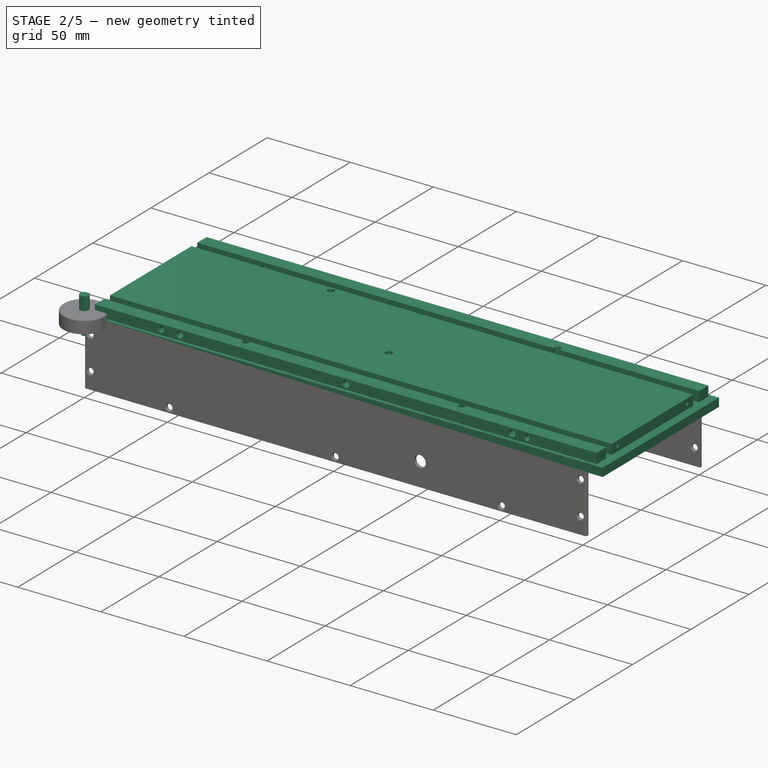
[diagram: stage 2 of 5 — iso view after this stage's code; geometry added in this stage tinted green]
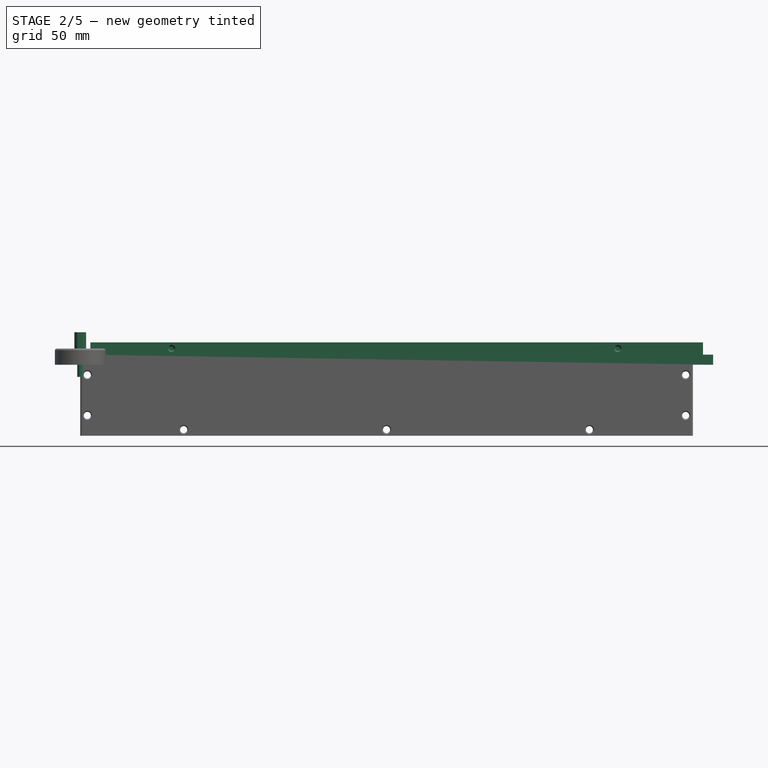
[diagram: stage 2 of 5 — front view after this stage's code; geometry added in this stage tinted green]
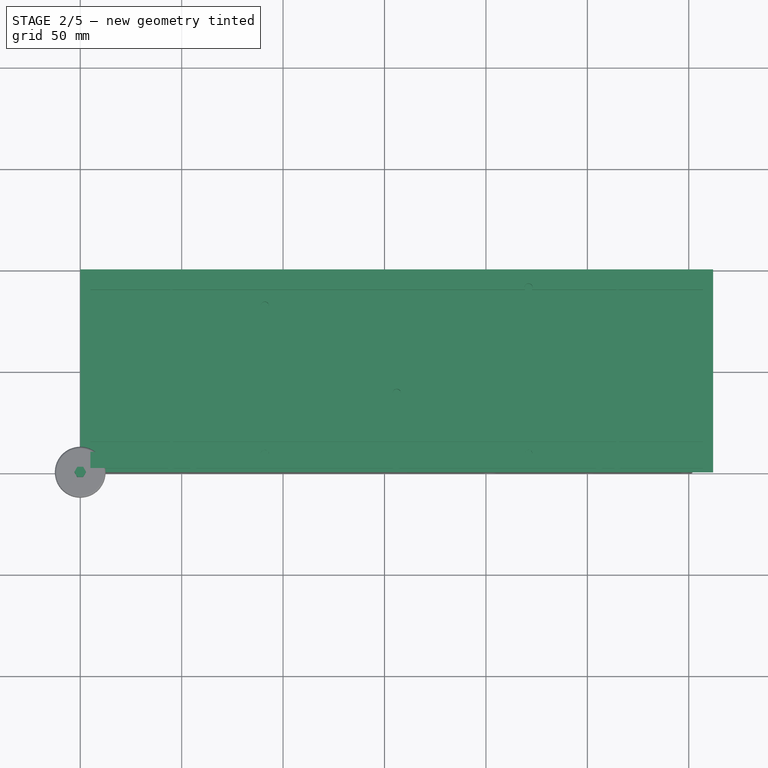
[diagram: stage 2 of 5 — top view after this stage's code; geometry added in this stage tinted green]
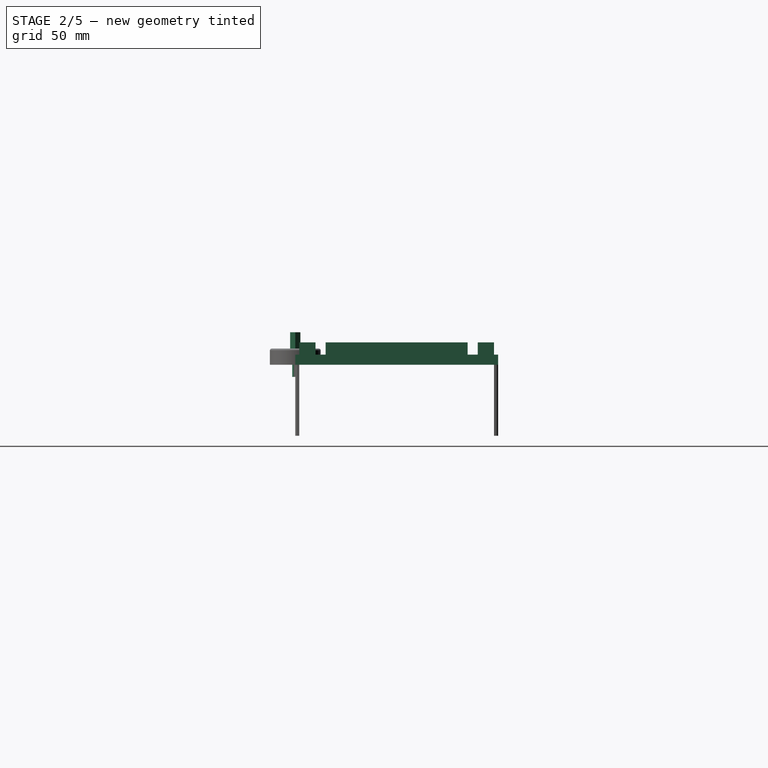
[diagram: stage 2 of 5 — right view after this stage's code; geometry added in this stage tinted green]
FEATURE [Sketcher::SketchObject] Sketch002
  FullyConstrained = true
  MapMode = 5
  Support = -> [XY_Plane001]
  sketch-geometry (4):
    g0: LineSegment StartX=0 StartY=0 StartZ=0 EndX=312 EndY=0 EndZ=0
    g1: LineSegment StartX=312 StartY=0 StartZ=0 EndX=312 EndY=100 EndZ=0
    g2: LineSegment StartX=312 StartY=100 StartZ=0 EndX=0 EndY=100 EndZ=0
    g3: LineSegment StartX=0 StartY=100 StartZ=0 EndX=0 EndY=0 EndZ=0
  constraints (11):
    c: Coincident(g0,g1)
    c: Coincident(g1,g2)
    c: Coincident(g2,g3)
    c: Coincident(g3,g0)
    c: Horizontal(g0)
    c: Horizontal(g2)
    c: Vertical(g1)
    c: Vertical(g3)
    c: Coincident(g0,g-1)
    c: DistanceY(g1,g1) = 100
    c: DistanceX(g2,g2) = 312
FEATURE [PartDesign::Pad] Pad002
  Direction = (0,0,1)
  Length = 11
  Length2 = 10
  Profile = -> Sketch002
  ReferenceAxis = -> Sketch002 [N_Axis]
  Type = 0
FEATURE [Sketcher::SketchObject] Sketch003
  FullyConstrained = true
  MapMode = 5
  Placement = pos=(0,0,11) rot=(0,0,1;0rad)
  Support = -> [Pad002]
  sketch-geometry (8):
    g0: LineSegment StartX=0 StartY=0 StartZ=0 EndX=312 EndY=0 EndZ=0
    g1: LineSegment StartX=312 StartY=0 StartZ=0 EndX=312 EndY=2 EndZ=0
    g2: LineSegment StartX=312 StartY=2 StartZ=0 EndX=0 EndY=2 EndZ=0
    g3: LineSegment StartX=0 StartY=2 StartZ=0 EndX=0 EndY=0 EndZ=0
    g4: LineSegment StartX=0 StartY=100 StartZ=0 EndX=312 EndY=100 EndZ=0
    g5: LineSegment StartX=312 StartY=100 StartZ=0 EndX=312 EndY=98 EndZ=0
    g6: LineSegment StartX=312 StartY=98 StartZ=0 EndX=0 EndY=98 EndZ=0
    g7: LineSegment StartX=0 StartY=98 StartZ=0 EndX=0 EndY=100 EndZ=0
  constraints (23):
    c: Coincident(g0,g1)
    c: Coincident(g1,g2)
    c: Coincident(g2,g3)
    c: Coincident(g3,g0)
    c: Horizontal(g0)
    c: Horizontal(g2)
    c: Vertical(g1)
    c: Vertical(g3)
    c: Coincident(g0,g-1)
    c: DistanceY(g1,g1) = 2
    c: DistanceX(g0,g0) = 312
    c: Coincident(g4,g5)
    c: Coincident(g5,g6)
    c: Coincident(g6,g7)
    c: Coincident(g7,g4)
    c: Horizontal(g4)
    c: Horizontal(g6)
    c: Vertical(g5)
    c: Vertical(g7)
    c: PointOnObject(g4,g-2)
    c: DistanceY(g5,g5) = 2
    c: DistanceX(g6,g6) = 312
    c: DistanceY(g0,g4) = 100
FEATURE [PartDesign::Pocket] Pocket
  BaseFeature = -> Pad002
  Direction = (0,0,-1)
  Length = 6
  Length2 = 5
  Profile = -> Sketch003
  ReferenceAxis = -> Sketch003 [N_Axis]
  Type = 0
FEATURE [Sketcher::SketchObject] Sketch004
  FullyConstrained = true
  MapMode = 5
  Placement = pos=(0,0,11) rot=(0,0,1;0rad)
  Support = -> [Pocket]
  sketch-geometry (8):
    g0: LineSegment StartX=0 StartY=2 StartZ=0 EndX=5 EndY=2 EndZ=0
    g1: LineSegment StartX=5 StartY=2 StartZ=0 EndX=5 EndY=98 EndZ=0
    g2: LineSegment StartX=5 StartY=98 StartZ=0 EndX=0 EndY=98 EndZ=0
    g3: LineSegment StartX=0 StartY=98 StartZ=0 EndX=0 EndY=2 EndZ=0
    g4: LineSegment StartX=307 StartY=2 StartZ=0 EndX=312 EndY=2 EndZ=0
    g5: LineSegment StartX=312 StartY=2 StartZ=0 EndX=312 EndY=98 EndZ=0
    g6: LineSegment StartX=312 StartY=98 StartZ=0 EndX=307 EndY=98 EndZ=0
    g7: LineSegment StartX=307 StartY=98 StartZ=0 EndX=307 EndY=2 EndZ=0
  constraints (24):
    c: Coincident(g0,g1)
    c: Coincident(g1,g2)
    c: Coincident(g2,g3)
    c: Coincident(g3,g0)
    c: Horizontal(g0)
    c: Horizontal(g2)
    c: Vertical(g1)
    c: Vertical(g3)
    c: PointOnObject(g0,g-2)
    c: Distance(g2) = 5
    c: DistanceY(g-1,g0) = 2
    c: Coincident(g4,g5)
    c: Coincident(g5,g6)
    c: Coincident(g6,g7)
    c: Coincident(g7,g4)
    c: Horizontal(g4)
    c: Horizontal(g6)
    c: Vertical(g5)
    c: Vertical(g7)
    c: Equal(g2,g6) = 10
    c: Horizontal(g4,g0)
    c: Distance(g3) = 96
    c: Distance(g7) = 96
    c: DistanceX(g-1,g4) = 312
FEATURE [PartDesign::Pocket] Pocket001
  BaseFeature = -> Pocket
  Direction = (0,0,-1)
  Length = 6
  Length2 = 5
  Profile = -> Sketch004
  ReferenceAxis = -> Sketch004 [N_Axis]
  Type = 0
FEATURE [Sketcher::SketchObject] Sketch008
  FullyConstrained = true
  MapMode = 5
  Placement = pos=(0,0,11) rot=(0,0,1;0rad)
  Support = -> [Pocket001]
  sketch-geometry (8):
    g0: LineSegment StartX=5 StartY=90 StartZ=0 EndX=307 EndY=90 EndZ=0
    g1: LineSegment StartX=307 StartY=90 StartZ=0 EndX=307 EndY=85 EndZ=0
    g2: LineSegment StartX=307 StartY=85 StartZ=0 EndX=5 EndY=85 EndZ=0
    g3: LineSegment StartX=5 StartY=85 StartZ=0 EndX=5 EndY=90 EndZ=0
    g4: LineSegment StartX=5 StartY=15 StartZ=0 EndX=307 EndY=15 EndZ=0
    g5: LineSegment StartX=307 StartY=15 StartZ=0 EndX=307 EndY=10 EndZ=0
    g6: LineSegment StartX=307 StartY=10 StartZ=0 EndX=5 EndY=10 EndZ=0
    g7: LineSegment StartX=5 StartY=10 StartZ=0 EndX=5 EndY=15 EndZ=0
  constraints (24):
    c: Coincident(g0,g1)
    c: Coincident(g1,g2)
    c: Coincident(g2,g3)
    c: Coincident(g3,g0)
    c: Horizontal(g0)
    c: Horizontal(g2)
    c: Vertical(g1)
    c: Vertical(g3)
    c: DistanceY(g1,g1) = 5
    c: DistanceX(g0,g0) = 302
    c: DistanceX(g-1,g0) = 5
    c: Coincident(g4,g5)
    c: Coincident(g5,g6)
    c: Coincident(g6,g7)
    c: Coincident(g7,g4)
    c: Horizontal(g4)
    c: Horizontal(g6)
    c: Vertical(g5)
    c: Vertical(g7)
    c: DistanceY(g5,g5) = 5
    c: DistanceX(g4,g4) = 302
    c: DistanceX(g-1,g6) = 5
    c: DistanceY(g-1,g6) = 10
    c: DistanceY(g-1,g0) = 90
FEATURE [PartDesign::Pocket] Pocket003
  BaseFeature = -> Pocket001
  Direction = (0,0,-1)
  Length = 6
  Length2 = 5
  Profile = -> Sketch008
  ReferenceAxis = -> Sketch008 [N_Axis]
  Type = 0
FEATURE [Sketcher::SketchObject] Sketch018
  FullyConstrained = true
  MapMode = 5
  Placement = pos=(0,2,0) rot=(1,0,0;1.5708rad)
  Support = -> [Pocket003]
  sketch-geometry (3):
    g0: Circle CenterX=56 CenterY=8 CenterZ=0 NormalX=0 NormalY=0 NormalZ=1 AngleXU=0 Radius=2
    g1: Circle CenterX=156 CenterY=8 CenterZ=0 NormalX=0 NormalY=0 NormalZ=1 AngleXU=0 Radius=2
    g2: Circle CenterX=256 CenterY=8 CenterZ=0 NormalX=0 NormalY=0 NormalZ=1 AngleXU=0 Radius=2
  constraints (9):
    c: Diameter(g0) = 4
    c: DistanceY(g-1,g0) = 8
    c: DistanceX(g-1,g0) = 56
    c: Equal(g0,g1) = 4
    c: DistanceX(g-1,g1) = 156
    c: DistanceX(g-1,g2) = 256
    c: Horizontal(g2,g1)
    c: Horizontal(g1,g0)
    c: Equal(g2,g0)
FEATURE [PartDesign::Pocket] Pocket011  label="Front Brass Insert Holes (Base)"
  BaseFeature = -> Pocket003
  Direction = (0,1,-2e-16)
  Length = 5
  Length2 = 5
  Profile = -> Sketch018
  ReferenceAxis = -> Sketch018 [N_Axis]
  Type = 0
FEATURE [Sketcher::SketchObject] Sketch019
  FullyConstrained = true
  MapMode = 5
  Placement = pos=(0,98,0) rot=(0,0.707107,0.707107;3.14159rad)
  Support = -> [Pocket011]
  sketch-geometry (3):
    g0: Circle CenterX=-56 CenterY=8 CenterZ=0 NormalX=0 NormalY=0 NormalZ=1 AngleXU=0 Radius=2
    g1: Circle CenterX=-156 CenterY=8 CenterZ=0 NormalX=0 NormalY=0 NormalZ=1 AngleXU=0 Radius=2
    g2: Circle CenterX=-256 CenterY=8 CenterZ=0 NormalX=0 NormalY=0 NormalZ=1 AngleXU=0 Radius=2
  constraints (9):
    c: Diameter(g0) = 4
    c: Equal(g0,g1)
    c: Equal(g1,g2)
    c: Horizontal(g0,g1)
    c: Horizontal(g1,g2)
    c: DistanceX(g0,g-1) = 56
    c: DistanceY(g-1,g0) = 8
    c: DistanceX(g1,g-1) = 156
    c: DistanceX(g2,g-1) = 256
FEATURE [PartDesign::Pocket] Pocket012  label="Rear Brass Insert Holes (Base)"
  BaseFeature = -> Pocket011
  Direction = (0,-1,2e-16)
  Length = 5
  Length2 = 5
  Profile = -> Sketch019
  ReferenceAxis = -> Sketch019 [N_Axis]
  Type = 0
FEATURE [Sketcher::SketchObject] Sketch020
  FullyConstrained = true
  MapMode = 5
  Placement = pos=(5,0,0) rot=(0.57735,-0.57735,-0.57735;2.0944rad)
  Support = -> [Pocket012]
  sketch-geometry (2):
    g0: Circle CenterX=-20 CenterY=8 CenterZ=0 NormalX=0 NormalY=0 NormalZ=1 AngleXU=0 Radius=1
    g1: Circle CenterX=-80 CenterY=8 CenterZ=0 NormalX=0 NormalY=0 NormalZ=1 AngleXU=0 Radius=1
  constraints (6):
    c: Diameter(g0) = 2
    c: DistanceX(g0,g-1) = 20
    c: DistanceY(g-1,g0) = 8
    c: Equal(g1,g0)
    c: DistanceX(g1,g-1) = 80
    c: Horizontal(g1,g0)
FEATURE [PartDesign::Pocket] Pocket013  label="Left Wood-to-Wood Screw Holes"
  BaseFeature = -> Pocket012
  Direction = (1,0,0)
  Length = 15
  Length2 = 5
  Profile = -> Sketch020
  ReferenceAxis = -> Sketch020 [N_Axis]
  Type = 0
FEATURE [Sketcher::SketchObject] Sketch021
  FullyConstrained = true
  MapMode = 5
  Placement = pos=(307,0,0) rot=(0.57735,0.57735,0.57735;2.0944rad)
  Support = -> [Pocket013]
  sketch-geometry (2):
    g0: Circle CenterX=80 CenterY=8 CenterZ=0 NormalX=0 NormalY=0 NormalZ=1 AngleXU=0 Radius=1
    g1: Circle CenterX=20 CenterY=8 CenterZ=0 NormalX=0 NormalY=0 NormalZ=1 AngleXU=0 Radius=1
  constraints (6):
    c: Diameter(g0) = 2
    c: Equal(g1,g0)
    c: Horizontal(g1,g0)
    c: DistanceX(g-1,g1) = 20
    c: DistanceX(g-1,g0) = 80
    c: DistanceY(g-1,g1) = 8
FEATURE [PartDesign::Pocket] Pocket014  label="Right Wood-to-Wood Screw Holes"
  BaseFeature = -> Pocket013
  Direction = (-1,0,0)
  Length = 15
  Length2 = 5
  Profile = -> Sketch021
  ReferenceAxis = -> Sketch021 [N_Axis]
  Type = 0
FEATURE [Sketcher::SketchObject] Sketch022
  FullyConstrained = true
  MapMode = 5
  Placement = pos=(0,2,0) rot=(1,0,0;1.5708rad)
  Support = -> [Pocket014]
  sketch-geometry (2):
    g0: Circle CenterX=45 CenterY=8 CenterZ=0 NormalX=0 NormalY=0 NormalZ=1 AngleXU=0 Radius=1
    g1: Circle CenterX=265 CenterY=8 CenterZ=0 NormalX=0 NormalY=0 NormalZ=1 AngleXU=0 Radius=1
  constraints (6):
    c: Diameter(g0) = 2
    c: DistanceY(g-1,g0) = 8
    c: DistanceX(g-1,g0) = 45
    c: Diameter(g1) = 2
    c: Horizontal(g1,g0)
    c: DistanceX(g-1,g1) = 265
FEATURE [PartDesign::Pocket] Pocket015  label="Front Speaker Mount Screw Holes"
  BaseFeature = -> Pocket014
  Direction = (0,1,-2e-16)
  Length = 20
  Length2 = 5
  Profile = -> Sketch022
  ReferenceAxis = -> Sketch022 [N_Axis]
  Type = 0
FEATURE [Sketcher::SketchObject] Sketch023
  FullyConstrained = true
  MapMode = 5
  Placement = pos=(0,98,0) rot=(0,0.707107,0.707107;3.14159rad)
  Support = -> [Pocket015]
  sketch-geometry (2):
    g0: Circle CenterX=-45 CenterY=8 CenterZ=0 NormalX=0 NormalY=0 NormalZ=1 AngleXU=0 Radius=1
    g1: Circle CenterX=-265 CenterY=8 CenterZ=0 NormalX=0 NormalY=0 NormalZ=1 AngleXU=0 Radius=1
  constraints (6):
    c: Diameter(g0) = 2
    c: DistanceY(g-1,g0) = 8
    c: DistanceX(g0,g-1) = 45
    c: Diameter(g1) = 2
    c: Horizontal(g1,g0)
    c: DistanceX(g1,g-1) = 265
FEATURE [PartDesign::Pocket] Pocket016  label="Rear Speaker Mount Screw Holes"
  BaseFeature = -> Pocket015
  Direction = (0,-1,2e-16)
  Length = 20
  Length2 = 5
  Profile = -> Sketch023
  ReferenceAxis = -> Sketch023 [N_Axis]
  Type = 0
FEATURE [PartDesign::Chamfer] Chamfer001  label="Speaker Mount Screw Holes Countersinking"
  Angle = 45
  Base = -> Pocket016 [Edge48,Edge44,Edge31,Edge35]
  BaseFeature = -> Pocket016
  ChamferType = 0
  FlipDirection = false
  Size = 0.8
  Size2 = 1
  SupportTransform = false
  UseAllEdges = false
FEATURE [PartDesign::Body] Body012  label="Standoff - Top Right"
  Group = -> [Sketch052,Pad024,Sketch053,Pad025]
  Origin = -> Origin012
  Placement = pos=(216,91,-29) rot=(0,0,1;0rad)
  Tip = -> Pad025
FEATURE [Sketcher::SketchObject] Sketch054
  FullyConstrained = true
  MapMode = 5
  Support = -> [XY_Plane013]
  sketch-geometry (7):
    g0: LineSegment StartX=1.44338 StartY=-2.5 StartZ=0 EndX=2.88675 EndY=4e-16 EndZ=0
    g1: LineSegment StartX=2.88675 StartY=3e-16 StartZ=0 EndX=1.44338 EndY=2.5 EndZ=0
    g2: LineSegment StartX=1.44338 StartY=2.5 StartZ=0 EndX=-1.44338 EndY=2.5 EndZ=0
    g3: LineSegment StartX=-1.44338 StartY=2.5 StartZ=0 EndX=-2.88675 EndY=-4e-16 EndZ=0
    g4: LineSegment StartX=-2.88675 StartY=-4e-16 StartZ=0 EndX=-1.44338 EndY=-2.5 EndZ=0
    g5: LineSegment StartX=-1.44338 StartY=-2.5 StartZ=0 EndX=1.44338 EndY=-2.5 EndZ=0
    g6: Circle CenterX=0 CenterY=0 CenterZ=0 NormalX=0 NormalY=0 NormalZ=1 AngleXU=0 Radius=2.88675
  constraints (16):
    c: Coincident(g0,g1)
    c: Coincident(g1,g2)
    c: Coincident(g2,g3)
    c: Coincident(g3,g4)
    c: Coincident(g4,g5)
    c: Coincident(g5,g0)
    c: Equal(g0, g1-g5) x5
    c: PointOnObject(g0,g6)
    c: PointOnObject(g1,g6)
    c: PointOnObject(g2,g6)
    c: PointOnObject(g3,g6)
    c: PointOnObject(g4,g6)
    c: PointOnObject(g5,g6)
    c: Coincident(g6,g-1)
    c: Horizontal(g2)
    c: DistanceY(g0,g1) = 5
FEATURE [PartDesign::Pad] Pad026
  Direction = (0,0,1)
  Length = 16
  Length2 = 10
  Profile = -> Sketch054
  ReferenceAxis = -> Sketch054 [N_Axis]
  Type = 0
FEATURE [PartDesign::Body] Body013  label="Standoff - Top Left"
  Group = -> [Sketch054,Pad026,Sketch055,Pad027]
  Origin = -> Origin013
  Placement = pos=(86,82,-29) rot=(0,0,1;0rad)
  Tip = -> Pad027
FEATURE [Sketcher::SketchObject] Sketch056
  FullyConstrained = true
  MapMode = 5
  Support = -> [XY_Plane014]
  sketch-geometry (7):
    g0: LineSegment StartX=1.44338 StartY=-2.5 StartZ=0 EndX=2.88675 EndY=4e-16 EndZ=0
    g1: LineSegment StartX=2.88675 StartY=3e-16 StartZ=0 EndX=1.44338 EndY=2.5 EndZ=0
    g2: LineSegment StartX=1.44338 StartY=2.5 StartZ=0 EndX=-1.44338 EndY=2.5 EndZ=0
    g3: LineSegment StartX=-1.44338 StartY=2.5 StartZ=0 EndX=-2.88675 EndY=-4e-16 EndZ=0
    g4: LineSegment StartX=-2.88675 StartY=-4e-16 StartZ=0 EndX=-1.44338 EndY=-2.5 EndZ=0
    g5: LineSegment StartX=-1.44338 StartY=-2.5 StartZ=0 EndX=1.44338 EndY=-2.5 EndZ=0
    g6: Circle CenterX=0 CenterY=0 CenterZ=0 NormalX=0 NormalY=0 NormalZ=1 AngleXU=0 Radius=2.88675
  constraints (16):
    c: Coincident(g0,g1)
    c: Coincident(g1,g2)
    c: Coincident(g2,g3)
    c: Coincident(g3,g4)
    c: Coincident(g4,g5)
    c: Coincident(g5,g0)
    c: Equal(g0, g1-g5) x5
    c: PointOnObject(g0,g6)
    c: PointOnObject(g1,g6)
    c: PointOnObject(g2,g6)
    c: PointOnObject(g3,g6)
    c: PointOnObject(g4,g6)
    c: PointOnObject(g5,g6)
    c: Coincident(g6,g-1)
    c: Horizontal(g2)
    c: DistanceY(g0,g1) = 5
FEATURE [PartDesign::Pad] Pad028
  Direction = (0,0,1)
  Length = 16
  Length2 = 10
  Profile = -> Sketch056
  ReferenceAxis = -> Sketch056 [N_Axis]
  Type = 0
FEATURE [Sketcher::SketchObject] Sketch057
  FullyConstrained = true
  MapMode = 5
  Placement = pos=(0,0,0) rot=(1,0,0;3.14159rad)
  Support = -> [Pad028]
  sketch-geometry (1):
    g0: Circle CenterX=0 CenterY=0 CenterZ=0 NormalX=0 NormalY=0 NormalZ=1 AngleXU=0 Radius=1.5
  constraints (2):
    c: Coincident(g0,g-1)
    c: Diameter(g0) = 3
FEATURE [PartDesign::Pad] Pad029
  BaseFeature = -> Pad028
  Direction = (0,0,-1)
  Length = 6
  Length2 = 10
  Profile = -> Sketch057
  ReferenceAxis = -> Sketch057 [N_Axis]
  Type = 0
FEATURE [PartDesign::Body] Body014  label="Standoff - Centre"
  Group = -> [Sketch056,Pad028,Sketch057,Pad029]
  Origin = -> Origin014
  Placement = pos=(151,39,-29) rot=(0,0,1;0rad)
  Tip = -> Pad029
FEATURE [Sketcher::SketchObject] Sketch058
  FullyConstrained = true
  MapMode = 5
  Placement = pos=(0,0,11) rot=(0,0,1;0rad)
  Support = -> [Chamfer001]
  sketch-geometry (5):
    g0: Circle CenterX=91 CenterY=9 CenterZ=0 NormalX=0 NormalY=0 NormalZ=1 AngleXU=0 Radius=2
    g1: Circle CenterX=221 CenterY=9 CenterZ=0 NormalX=0 NormalY=0 NormalZ=1 AngleXU=0 Radius=2
    g2: Circle CenterX=156 CenterY=39 CenterZ=0 NormalX=0 NormalY=0 NormalZ=1 AngleXU=0 Radius=2
    g3: Circle CenterX=91 CenterY=82 CenterZ=0 NormalX=0 NormalY=0 NormalZ=1 AngleXU=0 Radius=2
    g4: Circle CenterX=221 CenterY=91 CenterZ=0 NormalX=0 NormalY=0 NormalZ=1 AngleXU=0 Radius=2
  constraints (15):
    c: Vertical(g3,g0)
    c: Vertical(g4,g1)
    c: Horizontal(g0,g1)
    c: DistanceY(g-1,g0) = 9
    c: DistanceY(g0,g3) = 73
    c: DistanceY(g1,g4) = 82
    c: DistanceX(g-1,g0) = 91
    c: DistanceX(g0,g1) = 130
    c: DistanceY(g0,g2) = 30
    c: DistanceX(g0,g2) = 65
    c: Diameter(g0) = 4
    c: Equal(g0,g3)
    c: Equal(g3,g2)
    c: Equal(g2,g4)
    c: Equal(g4,g1)
FEATURE [PartDesign::Pocket] Pocket028  label="M3 Brass Insert Holes (4mm x 8mm)"
  BaseFeature = -> Chamfer001
  Direction = (0,0,-1)
  Length = 8
  Length2 = 5
  Profile = -> Sketch058
  ReferenceAxis = -> Sketch058 [N_Axis]
  Type = 0
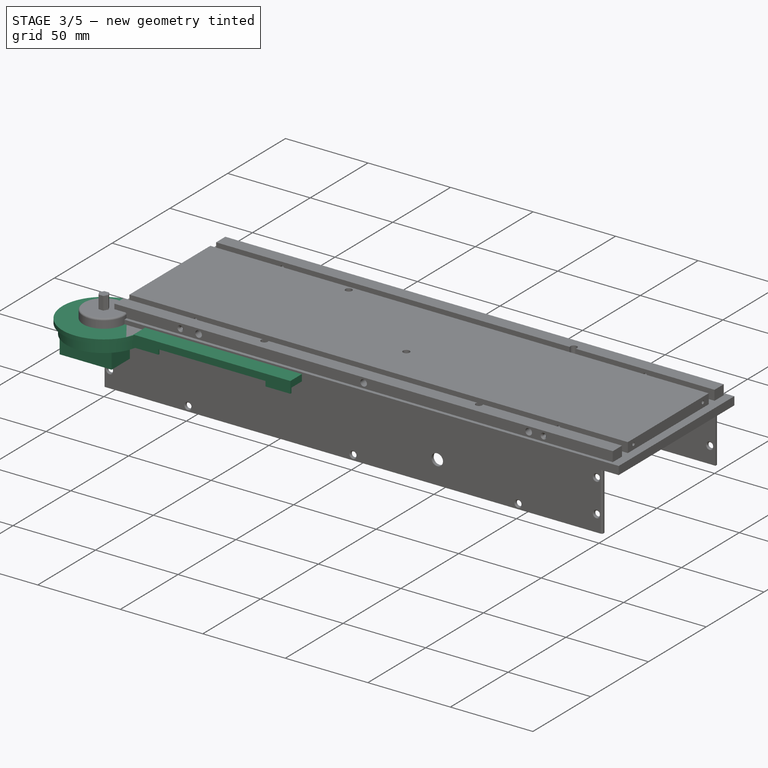
[diagram: stage 3 of 5 — iso view after this stage's code; geometry added in this stage tinted green]
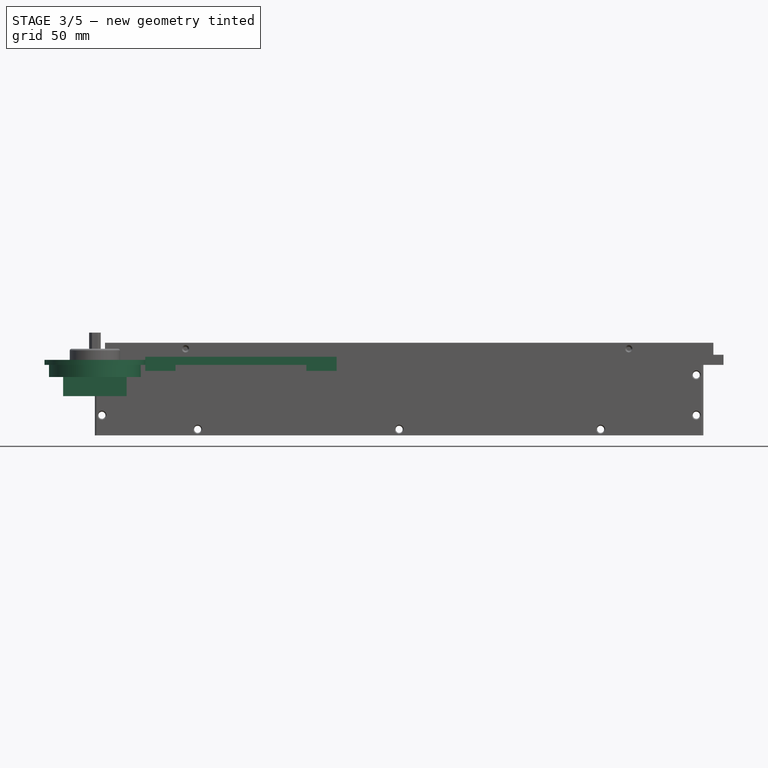
[diagram: stage 3 of 5 — front view after this stage's code; geometry added in this stage tinted green]
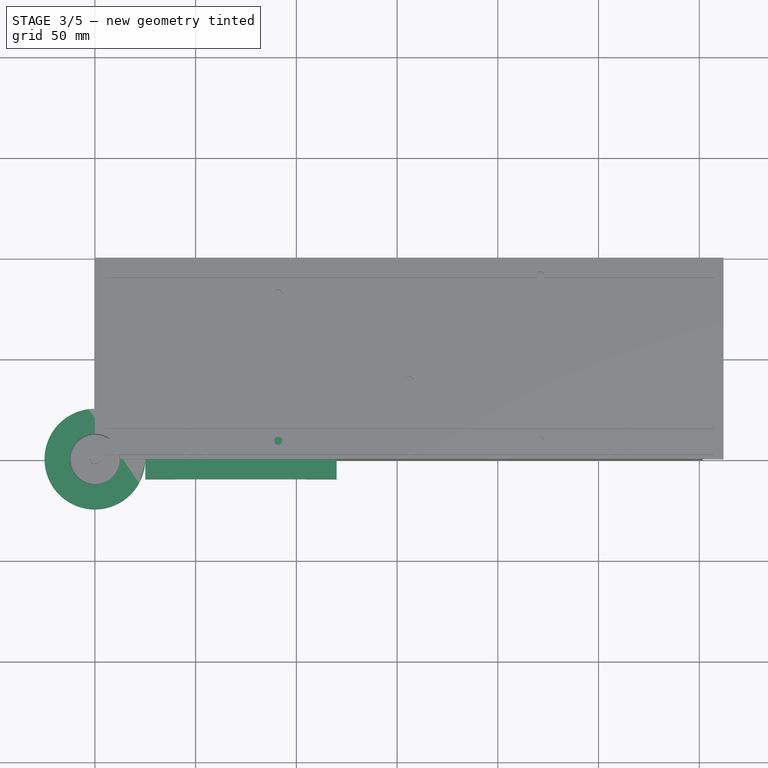
[diagram: stage 3 of 5 — top view after this stage's code; geometry added in this stage tinted green]
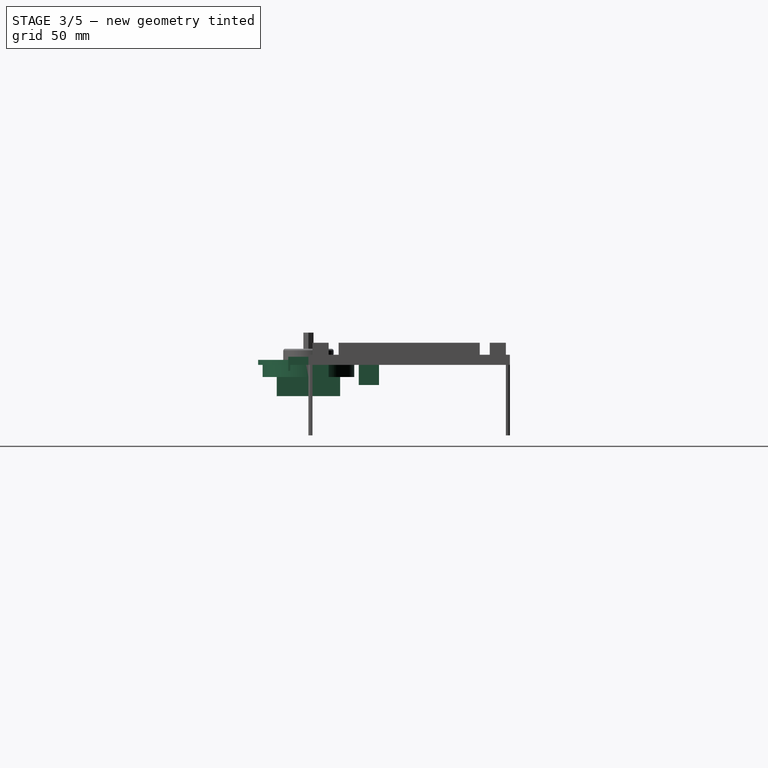
[diagram: stage 3 of 5 — right view after this stage's code; geometry added in this stage tinted green]
FEATURE [PartDesign::Body] Body003  label="Wood - Right Side Panel"
  BaseFeature = -> Body002
  Group = -> [Clone]
  Origin = -> Origin003
  Placement = pos=(302,100,0) rot=(0,0,1;3.14159rad)
  Tip = -> Clone
FEATURE [Sketcher::SketchObject] Sketch030
  FullyConstrained = true
  MapMode = 5
  Support = -> [XY_Plane006]
  sketch-geometry (16):
    g0: LineSegment StartX=0 StartY=35 StartZ=0 EndX=145 EndY=35 EndZ=0
    g1: LineSegment StartX=145 StartY=35 StartZ=0 EndX=145 EndY=25 EndZ=0
    g2: LineSegment StartX=145 StartY=25 StartZ=0 EndX=120 EndY=25 EndZ=0
    g3: LineSegment StartX=120 StartY=25 StartZ=0 EndX=120 EndY=10 EndZ=0
    g4: LineSegment StartX=120 StartY=10 StartZ=0 EndX=145 EndY=10 EndZ=0
    g5: LineSegment StartX=145 StartY=10 StartZ=0 EndX=145 EndY=0 EndZ=0
    g6: LineSegment StartX=0 StartY=35 StartZ=0 EndX=0 EndY=25 EndZ=0
    g7: LineSegment StartX=0 StartY=25 StartZ=0 EndX=25 EndY=25 EndZ=0
    g8: LineSegment StartX=25 StartY=25 StartZ=0 EndX=25 EndY=10 EndZ=0
    g9: LineSegment StartX=25 StartY=10 StartZ=0 EndX=0 EndY=10 EndZ=0
    g10: LineSegment StartX=0 StartY=10 StartZ=0 EndX=0 EndY=0 EndZ=0
    g11: LineSegment StartX=0 StartY=0 StartZ=0 EndX=25 EndY=0 EndZ=0
    g12: LineSegment StartX=25 StartY=0 StartZ=0 EndX=25 EndY=-10 EndZ=0
    g13: LineSegment StartX=25 StartY=-10 StartZ=0 EndX=120 EndY=-10 EndZ=0
    g14: LineSegment StartX=120 StartY=-10 StartZ=0 EndX=120 EndY=0 EndZ=0
    g15: LineSegment StartX=120 StartY=0 StartZ=0 EndX=145 EndY=0 EndZ=0
  constraints (48):
    c: PointOnObject(g0,g-2)
    c: Horizontal(g0)
    c: Coincident(g1,g0)
    c: Vertical(g1)
    c: Coincident(g2,g1)
    c: Horizontal(g2)
    c: Coincident(g3,g2)
    c: Vertical(g3)
    c: Coincident(g4,g3)
    c: Horizontal(g4)
    c: Coincident(g5,g4)
    c: PointOnObject(g5,g-1)
    c: Vertical(g5)
    c: Coincident(g6,g0)
    c: PointOnObject(g6,g-2)
    c: Coincident(g7,g6)
    c: Horizontal(g7)
    c: Coincident(g8,g7)
    c: Vertical(g8)
    c: Coincident(g9,g8)
    c: PointOnObject(g9,g-2)
    c: Horizontal(g9)
    c: Coincident(g10,g9)
    c: DistanceX(g0,g0) = 145
    c: DistanceY(g1,g1) = 10
    c: Equal(g3,g8)
    c: DistanceY(g3,g3) = 15
    c: DistanceX(g4,g4) = 25
    c: Equal(g5,g10)
    c: DistanceY(g5,g5) = 10
    c: Equal(g4,g9)
    c: Vertical(g4,g1)
    c: Vertical(g10,g9)
    c: Coincident(g11,g10)
    c: PointOnObject(g11,g-1)
    c: Horizontal(g11)
    c: Vertical(g12)
    c: Horizontal(g13)
    c: Coincident(g14,g13)
    c: PointOnObject(g14,g-1)
    c: Coincident(g15,g14)
    c: Coincident(g15,g5)
    c: Vertical(g14)
    c: DistanceY(g14,g14) = 10
    c: Coincident(g12,g11)
    c: Equal(g15,g4)
    c: Equal(g4,g11)
    c: Coincident(g13,g12)
FEATURE [PartDesign::Pad] Pad008  label="Base"
  Direction = (0,0,1)
  Length = 4
  Length2 = 10
  Profile = -> Sketch030
  ReferenceAxis = -> Sketch030 [N_Axis]
  Type = 0
FEATURE [Sketcher::SketchObject] Sketch031
  FullyConstrained = true
  MapMode = 5
  Placement = pos=(0,0,0) rot=(1,0,0;3.14159rad)
  Support = -> [Pad008]
  sketch-geometry (16):
    g0: LineSegment StartX=0 StartY=0 StartZ=0 EndX=5 EndY=0 EndZ=0
    g1: LineSegment StartX=5 StartY=0 StartZ=0 EndX=5 EndY=-10 EndZ=0
    g2: LineSegment StartX=5 StartY=-10 StartZ=0 EndX=0 EndY=-10 EndZ=0
    g3: LineSegment StartX=0 StartY=-10 StartZ=0 EndX=0 EndY=0 EndZ=0
    g4: LineSegment StartX=0 StartY=-25 StartZ=0 EndX=5 EndY=-25 EndZ=0
    g5: LineSegment StartX=5 StartY=-25 StartZ=0 EndX=5 EndY=-35 EndZ=0
    g6: LineSegment StartX=5 StartY=-35 StartZ=0 EndX=0 EndY=-35 EndZ=0
    g7: LineSegment StartX=0 StartY=-35 StartZ=0 EndX=0 EndY=-25 EndZ=0
    g8: LineSegment StartX=140 StartY=0 StartZ=0 EndX=145 EndY=0 EndZ=0
    g9: LineSegment StartX=145 StartY=0 StartZ=0 EndX=145 EndY=-10 EndZ=0
    g10: LineSegment StartX=145 StartY=-10 StartZ=0 EndX=140 EndY=-10 EndZ=0
    g11: LineSegment StartX=140 StartY=-10 StartZ=0 EndX=140 EndY=0 EndZ=0
    g12: LineSegment StartX=145 StartY=-25 StartZ=0 EndX=140 EndY=-25 EndZ=0
    g13: LineSegment StartX=140 StartY=-25 StartZ=0 EndX=140 EndY=-35 EndZ=0
    g14: LineSegment StartX=140 StartY=-35 StartZ=0 EndX=145 EndY=-35 EndZ=0
    g15: LineSegment StartX=145 StartY=-35 StartZ=0 EndX=145 EndY=-25 EndZ=0
  constraints (47):
    c: Coincident(g0,g1)
    c: Coincident(g1,g2)
    c: Coincident(g2,g3)
    c: Coincident(g3,g0)
    c: Horizontal(g0)
    c: Horizontal(g2)
    c: Vertical(g1)
    c: Vertical(g3)
    c: Coincident(g0,g-1)
    c: Coincident(g4,g5)
    c: Coincident(g5,g6)
    c: Coincident(g6,g7)
    c: Coincident(g7,g4)
    c: Horizontal(g4)
    c: Horizontal(g6)
    c: Vertical(g5)
    c: Vertical(g7)
    c: PointOnObject(g4,g-2)
    c: Coincident(g8,g9)
    c: Coincident(g9,g10)
    c: Coincident(g10,g11)
    c: Coincident(g11,g8)
    c: Horizontal(g8)
    c: Horizontal(g10)
    c: Vertical(g9)
    c: Vertical(g11)
    c: PointOnObject(g8,g-1)
    c: Coincident(g12,g13)
    c: Coincident(g13,g14)
    c: Coincident(g14,g15)
    c: Coincident(g15,g12)
    c: Horizontal(g12)
    c: Horizontal(g14)
    c: Vertical(g13)
    c: Vertical(g15)
    c: DistanceX(g0,g0) = 5
    c: DistanceY(g3,g3) = 10
    c: Equal(g0,g4)
    c: Equal(g4,g8)
    c: Equal(g8,g12)
    c: Equal(g7,g11)
    c: Horizontal(g4,g12)
    c: DistanceX(g0,g8) = 135
    c: DistanceY(g4,g1) = 15
    c: Vertical(g12,g9)
    c: DistanceY(g15,g15) = 10
    c: Equal(g15,g5)
FEATURE [PartDesign::Pad] Pad009  label="Clip Legs"
  BaseFeature = -> Pad008
  Direction = (0,0,-1)
  Length = 10
  Length2 = 10
  Profile = -> Sketch031
  ReferenceAxis = -> Sketch031 [N_Axis]
  Type = 0
FEATURE [Sketcher::SketchObject] Sketch032
  FullyConstrained = true
  MapMode = 5
  Placement = pos=(0,0,0) rot=(1,0,0;3.14159rad)
  Support = -> [Pad009]
  sketch-geometry (8):
    g0: LineSegment StartX=25 StartY=10 StartZ=0 EndX=40 EndY=10 EndZ=0
    g1: LineSegment StartX=40 StartY=10 StartZ=0 EndX=40 EndY=9 EndZ=0
    g2: LineSegment StartX=40 StartY=9 StartZ=0 EndX=25 EndY=9 EndZ=0
    g3: LineSegment StartX=25 StartY=9 StartZ=0 EndX=25 EndY=10 EndZ=0
    g4: LineSegment StartX=105 StartY=10 StartZ=0 EndX=120 EndY=10 EndZ=0
    g5: LineSegment StartX=120 StartY=10 StartZ=0 EndX=120 EndY=9 EndZ=0
    g6: LineSegment StartX=120 StartY=9 StartZ=0 EndX=105 EndY=9 EndZ=0
    g7: LineSegment StartX=105 StartY=9 StartZ=0 EndX=105 EndY=10 EndZ=0
  constraints (24):
    c: Coincident(g0,g1)
    c: Coincident(g1,g2)
    c: Coincident(g2,g3)
    c: Coincident(g3,g0)
    c: Horizontal(g0)
    c: Horizontal(g2)
    c: Vertical(g1)
    c: Vertical(g3)
    c: DistanceX(g2,g2) = 15
    c: DistanceY(g3,g3) = 1
    c: DistanceX(g-1,g2) = 25
    c: DistanceY(g-1,g0) = 10
    c: Coincident(g4,g5)
    c: Coincident(g5,g6)
    c: Coincident(g6,g7)
    c: Coincident(g7,g4)
    c: Horizontal(g4)
    c: Horizontal(g6)
    c: Vertical(g5)
    c: Vertical(g7)
    c: Equal(g4,g0)
    c: Equal(g7,g1)
    c: Horizontal(g4,g0)
    c: DistanceX(g0,g4) = 65
FEATURE [PartDesign::Pad] Pad010  label="Bottom Post"
  BaseFeature = -> Pad009
  Direction = (0,0,-1)
  Length = 3
  Length2 = 10
  Profile = -> Sketch032
  ReferenceAxis = -> Sketch032 [N_Axis]
  Type = 0
FEATURE [Sketcher::SketchObject] Sketch042
  FullyConstrained = true
  MapMode = 5
  Support = -> [XY_Plane008]
  sketch-geometry (1):
    g0: Circle CenterX=0 CenterY=0 CenterZ=0 NormalX=0 NormalY=0 NormalZ=1 AngleXU=0 Radius=25
  constraints (2):
    c: Coincident(g0,g-1)
    c: Diameter(g0) = 50
FEATURE [PartDesign::Pad] Pad014  label="Top Part"
  Direction = (0,0,1)
  Length = 2.5
  Length2 = 10
  Profile = -> Sketch042
  ReferenceAxis = -> Sketch042 [N_Axis]
  Type = 0
FEATURE [Sketcher::SketchObject] Sketch043
  FullyConstrained = true
  MapMode = 5
  Placement = pos=(0,0,0) rot=(1,0,0;3.14159rad)
  Support = -> [Pad014]
  sketch-geometry (1):
    g0: Circle CenterX=0 CenterY=0 CenterZ=0 NormalX=0 NormalY=0 NormalZ=1 AngleXU=0 Radius=22.75
  constraints (2):
    c: Coincident(g0,g-1)
    c: Diameter(g0) = 45.5
FEATURE [PartDesign::Pad] Pad015  label="Middle Part"
  BaseFeature = -> Pad014
  Direction = (0,0,-1)
  Length = 6
  Length2 = 10
  Profile = -> Sketch043
  ReferenceAxis = -> Sketch043 [N_Axis]
  Type = 0
FEATURE [Sketcher::SketchObject] Sketch044
  FullyConstrained = true
  MapMode = 5
  Placement = pos=(0,0,-6) rot=(1,0,0;3.14159rad)
  Support = -> [Pad015]
  sketch-geometry (4):
    g0: LineSegment StartX=-15.75 StartY=15.75 StartZ=0 EndX=15.75 EndY=15.75 EndZ=0
    g1: LineSegment StartX=15.75 StartY=15.75 StartZ=0 EndX=15.75 EndY=-15.75 EndZ=0
    g2: LineSegment StartX=15.75 StartY=-15.75 StartZ=0 EndX=-15.75 EndY=-15.75 EndZ=0
    g3: LineSegment StartX=-15.75 StartY=-15.75 StartZ=0 EndX=-15.75 EndY=15.75 EndZ=0
  constraints (12):
    c: Coincident(g0,g1)
    c: Coincident(g1,g2)
    c: Coincident(g2,g3)
    c: Coincident(g3,g0)
    c: Horizontal(g0)
    c: Horizontal(g2)
    c: Vertical(g1)
    c: Vertical(g3)
    c: DistanceX(g0,g0) = 31.5
    c: DistanceY(g1,g1) = 31.5
    c: DistanceX(g-1,g0) = 15.75
    c: DistanceY(g1,g-1) = 15.75
FEATURE [PartDesign::Pad] Pad016
  BaseFeature = -> Pad015
  Direction = (0,0,-1)
  Length = 9.5
  Length2 = 10
  Profile = -> Sketch044
  ReferenceAxis = -> Sketch044 [N_Axis]
  Type = 0
FEATURE [PartDesign::Body] Body008  label="Left Speaker"
  Group = -> [Sketch042,Pad014,Sketch043,Pad015,Sketch044,Pad016]
  Origin = -> Origin008
  Placement = pos=(41,50,-2) rot=(0,0,1;0rad)
  Tip = -> Pad016
FEATURE [Sketcher::SketchObject] Sketch045
  FullyConstrained = true
  MapMode = 5
  Support = -> [XY_Plane009]
  sketch-geometry (1):
    g0: Circle CenterX=0 CenterY=0 CenterZ=0 NormalX=0 NormalY=0 NormalZ=1 AngleXU=0 Radius=25
  constraints (2):
    c: Coincident(g0,g-1)
    c: Diameter(g0) = 50
FEATURE [PartDesign::Pad] Pad017  label="Top Part001"
  Direction = (0,0,1)
  Length = 2.5
  Length2 = 10
  Profile = -> Sketch045
  ReferenceAxis = -> Sketch045 [N_Axis]
  Type = 0
FEATURE [Sketcher::SketchObject] Sketch046
  FullyConstrained = true
  MapMode = 5
  Placement = pos=(0,0,0) rot=(1,0,0;3.14159rad)
  Support = -> [Pad017]
  sketch-geometry (1):
    g0: Circle CenterX=0 CenterY=0 CenterZ=0 NormalX=0 NormalY=0 NormalZ=1 AngleXU=0 Radius=22.75
  constraints (2):
    c: Coincident(g0,g-1)
    c: Diameter(g0) = 45.5
FEATURE [PartDesign::Pad] Pad018  label="Middle Part001"
  BaseFeature = -> Pad017
  Direction = (0,0,-1)
  Length = 6
  Length2 = 10
  Profile = -> Sketch046
  ReferenceAxis = -> Sketch046 [N_Axis]
  Type = 0
FEATURE [Sketcher::SketchObject] Sketch047
  FullyConstrained = true
  MapMode = 5
  Placement = pos=(0,0,-6) rot=(1,0,0;3.14159rad)
  Support = -> [Pad018]
  sketch-geometry (4):
    g0: LineSegment StartX=-15.75 StartY=15.75 StartZ=0 EndX=15.75 EndY=15.75 EndZ=0
    g1: LineSegment StartX=15.75 StartY=15.75 StartZ=0 EndX=15.75 EndY=-15.75 EndZ=0
    g2: LineSegment StartX=15.75 StartY=-15.75 StartZ=0 EndX=-15.75 EndY=-15.75 EndZ=0
    g3: LineSegment StartX=-15.75 StartY=-15.75 StartZ=0 EndX=-15.75 EndY=15.75 EndZ=0
  constraints (12):
    c: Coincident(g0,g1)
    c: Coincident(g1,g2)
    c: Coincident(g2,g3)
    c: Coincident(g3,g0)
    c: Horizontal(g0)
    c: Horizontal(g2)
    c: Vertical(g1)
    c: Vertical(g3)
    c: DistanceX(g0,g0) = 31.5
    c: DistanceY(g1,g1) = 31.5
    c: DistanceX(g-1,g0) = 15.75
    c: DistanceY(g1,g-1) = 15.75
FEATURE [PartDesign::Pad] Pad019
  BaseFeature = -> Pad018
  Direction = (0,0,-1)
  Length = 9.5
  Length2 = 10
  Profile = -> Sketch047
  ReferenceAxis = -> Sketch047 [N_Axis]
  Type = 0
FEATURE [PartDesign::Body] Body009  label="Right Speaker"
  Group = -> [Sketch045,Pad017,Sketch046,Pad018,Sketch047,Pad019]
  Origin = -> Origin009
  Placement = pos=(261,50,-2) rot=(0,0,1;0rad)
  Tip = -> Pad019
FEATURE [Sketcher::SketchObject] Sketch048
  FullyConstrained = true
  MapMode = 5
  Support = -> [XY_Plane010]
  sketch-geometry (7):
    g0: LineSegment StartX=1.44338 StartY=-2.5 StartZ=0 EndX=2.88675 EndY=4e-16 EndZ=0
    g1: LineSegment StartX=2.88675 StartY=3e-16 StartZ=0 EndX=1.44338 EndY=2.5 EndZ=0
    g2: LineSegment StartX=1.44338 StartY=2.5 StartZ=0 EndX=-1.44338 EndY=2.5 EndZ=0
    g3: LineSegment StartX=-1.44338 StartY=2.5 StartZ=0 EndX=-2.88675 EndY=-4e-16 EndZ=0
    g4: LineSegment StartX=-2.88675 StartY=-4e-16 StartZ=0 EndX=-1.44338 EndY=-2.5 EndZ=0
    g5: LineSegment StartX=-1.44338 StartY=-2.5 StartZ=0 EndX=1.44338 EndY=-2.5 EndZ=0
    g6: Circle CenterX=0 CenterY=0 CenterZ=0 NormalX=0 NormalY=0 NormalZ=1 AngleXU=0 Radius=2.88675
  constraints (16):
    c: Coincident(g0,g1)
    c: Coincident(g1,g2)
    c: Coincident(g2,g3)
    c: Coincident(g3,g4)
    c: Coincident(g4,g5)
    c: Coincident(g5,g0)
    c: Equal(g0, g1-g5) x5
    c: PointOnObject(g0,g6)
    c: PointOnObject(g1,g6)
    c: PointOnObject(g2,g6)
    c: PointOnObject(g3,g6)
    c: PointOnObject(g4,g6)
    c: PointOnObject(g5,g6)
    c: Coincident(g6,g-1)
    c: Horizontal(g2)
    c: DistanceY(g0,g1) = 5
FEATURE [PartDesign::Pad] Pad020
  Direction = (0,0,1)
  Length = 16
  Length2 = 10
  Profile = -> Sketch048
  ReferenceAxis = -> Sketch048 [N_Axis]
  Type = 0
FEATURE [Sketcher::SketchObject] Sketch049
  FullyConstrained = true
  MapMode = 5
  Placement = pos=(0,0,0) rot=(1,0,0;3.14159rad)
  Support = -> [Pad020]
  sketch-geometry (1):
    g0: Circle CenterX=0 CenterY=0 CenterZ=0 NormalX=0 NormalY=0 NormalZ=1 AngleXU=0 Radius=1.5
  constraints (2):
    c: Coincident(g0,g-1)
    c: Diameter(g0) = 3
FEATURE [PartDesign::Pad] Pad021
  BaseFeature = -> Pad020
  Direction = (0,0,-1)
  Length = 6
  Length2 = 10
  Profile = -> Sketch049
  ReferenceAxis = -> Sketch049 [N_Axis]
  Type = 0
FEATURE [PartDesign::Body] Body010  label="Standoff - Bottom Left"
  Group = -> [Sketch048,Pad020,Sketch049,Pad021]
  Origin = -> Origin010
  Placement = pos=(86,9,-29) rot=(0,0,1;0rad)
  Tip = -> Pad021
FEATURE [Sketcher::SketchObject] Sketch050
  FullyConstrained = true
  MapMode = 5
  Support = -> [XY_Plane011]
  sketch-geometry (7):
    g0: LineSegment StartX=1.44338 StartY=-2.5 StartZ=0 EndX=2.88675 EndY=4e-16 EndZ=0
    g1: LineSegment StartX=2.88675 StartY=3e-16 StartZ=0 EndX=1.44338 EndY=2.5 EndZ=0
    g2: LineSegment StartX=1.44338 StartY=2.5 StartZ=0 EndX=-1.44338 EndY=2.5 EndZ=0
    g3: LineSegment StartX=-1.44338 StartY=2.5 StartZ=0 EndX=-2.88675 EndY=-4e-16 EndZ=0
    g4: LineSegment StartX=-2.88675 StartY=-4e-16 StartZ=0 EndX=-1.44338 EndY=-2.5 EndZ=0
    g5: LineSegment StartX=-1.44338 StartY=-2.5 StartZ=0 EndX=1.44338 EndY=-2.5 EndZ=0
    g6: Circle CenterX=0 CenterY=0 CenterZ=0 NormalX=0 NormalY=0 NormalZ=1 AngleXU=0 Radius=2.88675
  constraints (16):
    c: Coincident(g0,g1)
    c: Coincident(g1,g2)
    c: Coincident(g2,g3)
    c: Coincident(g3,g4)
    c: Coincident(g4,g5)
    c: Coincident(g5,g0)
    c: Equal(g0, g1-g5) x5
    c: PointOnObject(g0,g6)
    c: PointOnObject(g1,g6)
    c: PointOnObject(g2,g6)
    c: PointOnObject(g3,g6)
    c: PointOnObject(g4,g6)
    c: PointOnObject(g5,g6)
    c: Coincident(g6,g-1)
    c: Horizontal(g2)
    c: DistanceY(g0,g1) = 5
FEATURE [PartDesign::Pad] Pad022
  Direction = (0,0,1)
  Length = 16
  Length2 = 10
  Profile = -> Sketch050
  ReferenceAxis = -> Sketch050 [N_Axis]
  Type = 0
FEATURE [Sketcher::SketchObject] Sketch051
  FullyConstrained = true
  MapMode = 5
  Placement = pos=(0,0,0) rot=(1,0,0;3.14159rad)
  Support = -> [Pad022]
  sketch-geometry (1):
    g0: Circle CenterX=0 CenterY=0 CenterZ=0 NormalX=0 NormalY=0 NormalZ=1 AngleXU=0 Radius=1.5
  constraints (2):
    c: Coincident(g0,g-1)
    c: Diameter(g0) = 3
FEATURE [PartDesign::Pad] Pad023
  BaseFeature = -> Pad022
  Direction = (0,0,-1)
  Length = 6
  Length2 = 10
  Profile = -> Sketch051
  ReferenceAxis = -> Sketch051 [N_Axis]
  Type = 0
FEATURE [PartDesign::Body] Body011  label="Standoff - Bottom Right"
  Group = -> [Sketch050,Pad022,Sketch051,Pad023]
  Origin = -> Origin011
  Placement = pos=(216,9,-29) rot=(0,0,1;0rad)
  Tip = -> Pad023
FEATURE [Sketcher::SketchObject] Sketch052
  FullyConstrained = true
  MapMode = 5
  Support = -> [XY_Plane012]
  sketch-geometry (7):
    g0: LineSegment StartX=1.44338 StartY=-2.5 StartZ=0 EndX=2.88675 EndY=4e-16 EndZ=0
    g1: LineSegment StartX=2.88675 StartY=3e-16 StartZ=0 EndX=1.44338 EndY=2.5 EndZ=0
    g2: LineSegment StartX=1.44338 StartY=2.5 StartZ=0 EndX=-1.44338 EndY=2.5 EndZ=0
    g3: LineSegment StartX=-1.44338 StartY=2.5 StartZ=0 EndX=-2.88675 EndY=-4e-16 EndZ=0
    g4: LineSegment StartX=-2.88675 StartY=-4e-16 StartZ=0 EndX=-1.44338 EndY=-2.5 EndZ=0
    g5: LineSegment StartX=-1.44338 StartY=-2.5 StartZ=0 EndX=1.44338 EndY=-2.5 EndZ=0
    g6: Circle CenterX=0 CenterY=0 CenterZ=0 NormalX=0 NormalY=0 NormalZ=1 AngleXU=0 Radius=2.88675
  constraints (16):
    c: Coincident(g0,g1)
    c: Coincident(g1,g2)
    c: Coincident(g2,g3)
    c: Coincident(g3,g4)
    c: Coincident(g4,g5)
    c: Coincident(g5,g0)
    c: Equal(g0, g1-g5) x5
    c: PointOnObject(g0,g6)
    c: PointOnObject(g1,g6)
    c: PointOnObject(g2,g6)
    c: PointOnObject(g3,g6)
    c: PointOnObject(g4,g6)
    c: PointOnObject(g5,g6)
    c: Coincident(g6,g-1)
    c: Horizontal(g2)
    c: DistanceY(g0,g1) = 5
FEATURE [PartDesign::Pad] Pad024
  Direction = (0,0,1)
  Length = 16
  Length2 = 10
  Profile = -> Sketch052
  ReferenceAxis = -> Sketch052 [N_Axis]
  Type = 0
FEATURE [Sketcher::SketchObject] Sketch053
  FullyConstrained = true
  MapMode = 5
  Placement = pos=(0,0,0) rot=(1,0,0;3.14159rad)
  Support = -> [Pad024]
  sketch-geometry (1):
    g0: Circle CenterX=0 CenterY=0 CenterZ=0 NormalX=0 NormalY=0 NormalZ=1 AngleXU=0 Radius=1.5
  constraints (2):
    c: Coincident(g0,g-1)
    c: Diameter(g0) = 3
FEATURE [PartDesign::Pad] Pad025
  BaseFeature = -> Pad024
  Direction = (0,0,-1)
  Length = 6
  Length2 = 10
  Profile = -> Sketch053
  ReferenceAxis = -> Sketch053 [N_Axis]
  Type = 0
FEATURE [Sketcher::SketchObject] Sketch055
  FullyConstrained = true
  MapMode = 5
  Placement = pos=(0,0,0) rot=(1,0,0;3.14159rad)
  Support = -> [Pad026]
  sketch-geometry (1):
    g0: Circle CenterX=0 CenterY=0 CenterZ=0 NormalX=0 NormalY=0 NormalZ=1 AngleXU=0 Radius=1.5
  constraints (2):
    c: Coincident(g0,g-1)
    c: Diameter(g0) = 3
FEATURE [PartDesign::Pad] Pad027
  BaseFeature = -> Pad026
  Direction = (0,0,-1)
  Length = 6
  Length2 = 10
  Profile = -> Sketch055
  ReferenceAxis = -> Sketch055 [N_Axis]
  Type = 0
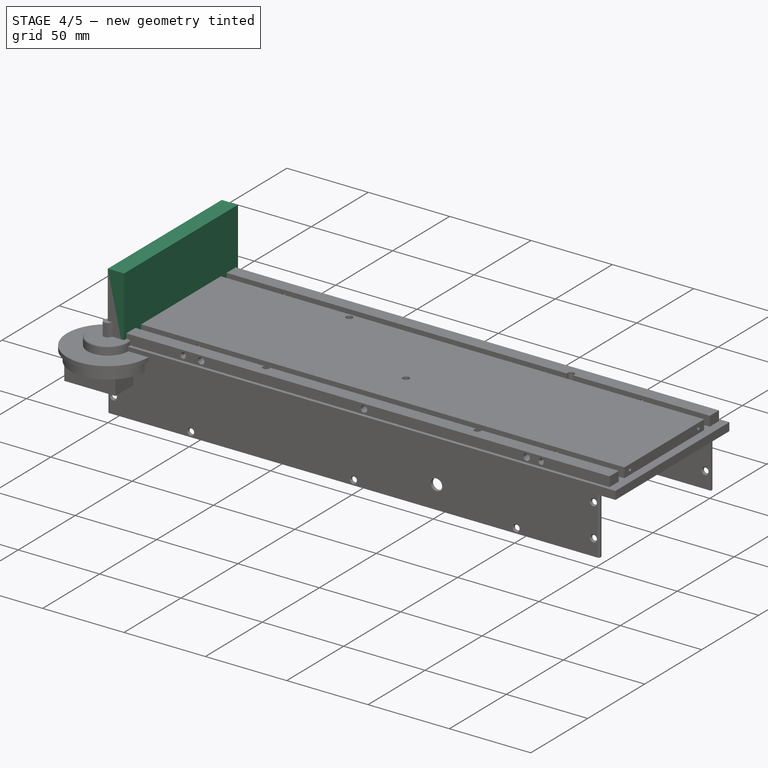
[diagram: stage 4 of 5 — iso view after this stage's code; geometry added in this stage tinted green]
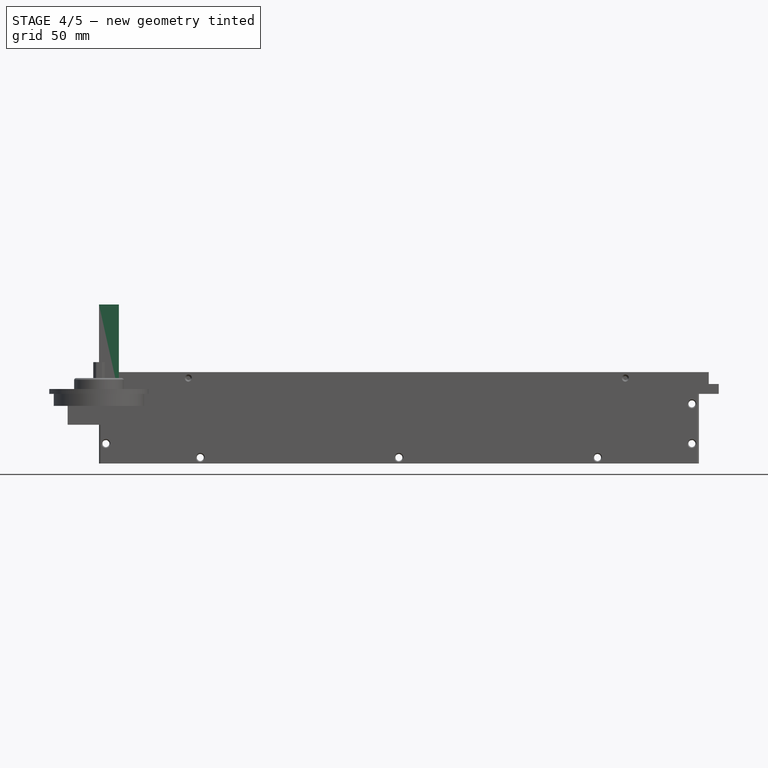
[diagram: stage 4 of 5 — front view after this stage's code; geometry added in this stage tinted green]
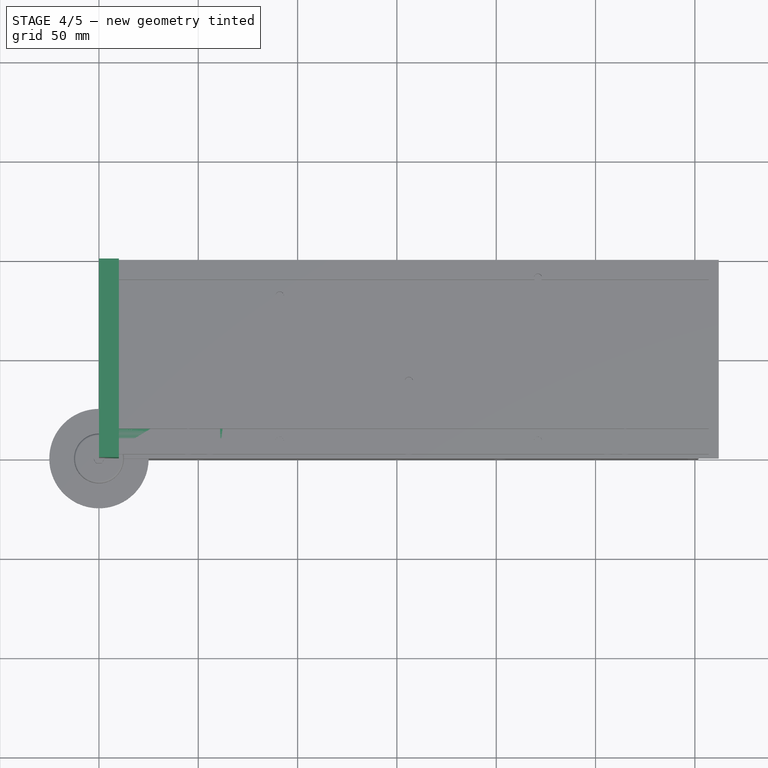
[diagram: stage 4 of 5 — top view after this stage's code; geometry added in this stage tinted green]
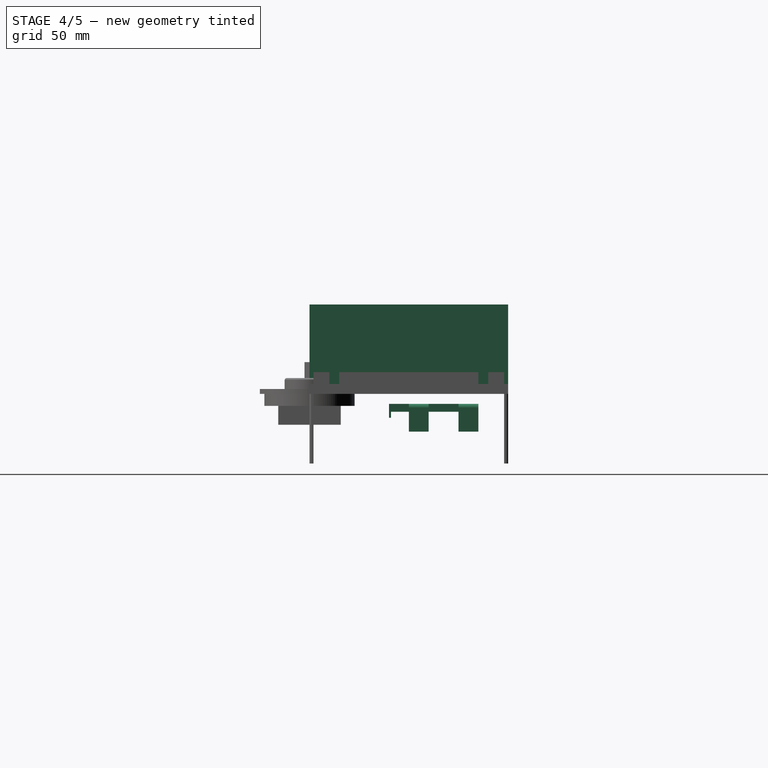
[diagram: stage 4 of 5 — right view after this stage's code; geometry added in this stage tinted green]
FEATURE [Sketcher::SketchObject] Sketch005
  FullyConstrained = true
  MapMode = 5
  Support = -> [XY_Plane002]
  sketch-geometry (4):
    g0: LineSegment StartX=0 StartY=0 StartZ=0 EndX=10 EndY=0 EndZ=0
    g1: LineSegment StartX=10 StartY=0 StartZ=0 EndX=10 EndY=100 EndZ=0
    g2: LineSegment StartX=10 StartY=100 StartZ=0 EndX=0 EndY=100 EndZ=0
    g3: LineSegment StartX=0 StartY=100 StartZ=0 EndX=0 EndY=0 EndZ=0
  constraints (11):
    c: Coincident(g0,g1)
    c: Coincident(g1,g2)
    c: Coincident(g2,g3)
    c: Coincident(g3,g0)
    c: Horizontal(g0)
    c: Horizontal(g2)
    c: Vertical(g1)
    c: Vertical(g3)
    c: Coincident(g0,g-1)
    c: DistanceX(g0,g0) = 10
    c: DistanceY(g3,g3) = 100
FEATURE [PartDesign::Pad] Pad003
  Direction = (0,0,1)
  Length = 45
  Length2 = 10
  Profile = -> Sketch005
  ReferenceAxis = -> Sketch005 [N_Axis]
  Type = 0
FEATURE [Sketcher::SketchObject] Sketch033
  FullyConstrained = true
  MapMode = 5
  Placement = pos=(0,35,0) rot=(0,0.707107,0.707107;3.14159rad)
  Support = -> [Pad010]
  sketch-geometry (16):
    g0: LineSegment StartX=-142.25 StartY=-4.75 StartZ=0 EndX=-143.5 EndY=-10 EndZ=0
    g1: LineSegment StartX=-143.5 StartY=-10 StartZ=0 EndX=-140 EndY=-10 EndZ=0
    g2: LineSegment StartX=-140 StartY=-10 StartZ=0 EndX=-140 EndY=-2.75 EndZ=0
    g3: LineSegment StartX=-140 StartY=-2.75 StartZ=0 EndX=-142.75 EndY=-2.75 EndZ=0
    g4: LineSegment StartX=-142.75 StartY=-2.75 StartZ=0 EndX=-142.75 EndY=-4.75 EndZ=0
    g5: LineSegment StartX=-142.75 StartY=-4.75 StartZ=0 EndX=-142.25 EndY=-4.75 EndZ=0
    g6: LineSegment StartX=-142.5 StartY=-3 StartZ=0 EndX=-2.5 EndY=-3 EndZ=0
    g7: LineSegment StartX=-2.5 StartY=-3 StartZ=0 EndX=-2.5 EndY=-4.8 EndZ=0
    g8: LineSegment StartX=-2.5 StartY=-4.8 StartZ=0 EndX=-142.5 EndY=-4.8 EndZ=0
    g9: LineSegment StartX=-142.5 StartY=-3 StartZ=0 EndX=-142.5 EndY=-4.8 EndZ=0
    g10: LineSegment StartX=-5 StartY=-10 StartZ=0 EndX=-5 EndY=-2.75 EndZ=0
    g11: LineSegment StartX=-5 StartY=-2.75 StartZ=0 EndX=-2.25 EndY=-2.75 EndZ=0
    g12: LineSegment StartX=-2.25 StartY=-2.75 StartZ=0 EndX=-2.25 EndY=-4.75 EndZ=0
    g13: LineSegment StartX=-2.25 StartY=-4.75 StartZ=0 EndX=-2.75 EndY=-4.75 EndZ=0
    g14: LineSegment StartX=-2.75 StartY=-4.75 StartZ=0 EndX=-1.5 EndY=-10 EndZ=0
    g15: LineSegment StartX=-1.5 StartY=-10 StartZ=0 EndX=-5 EndY=-10 EndZ=0
  constraints (48):
    c: Coincident(g1,g0)
    c: Horizontal(g1)
    c: Coincident(g2,g1)
    c: Vertical(g2)
    c: Coincident(g3,g2)
    c: Horizontal(g3)
    c: Coincident(g4,g3)
    c: Vertical(g4)
    c: Coincident(g5,g4)
    c: Coincident(g5,g0)
    c: Horizontal(g5)
    c: Horizontal(g6)
    c: Coincident(g7,g6)
    c: Coincident(g8,g7)
    c: Horizontal(g8)
    c: Coincident(g9,g6)
    c: Coincident(g9,g8)
    c: Vertical(g9)
    c: DistanceX(g6,g6) = 140
    c: Equal(g8,g6)
    c: DistanceY(g9,g9) = 1.8
    c: DistanceX(g7,g-1) = 2.5
    c: DistanceY(g4,g4) = 2
    c: DistanceY(g6,g-1) = 3
    c: DistanceY(g1,g-1) = 10
    c: DistanceY(g2,g-1) = 2.75
    c: DistanceX(g5,g5) = 0.5
    c: DistanceX(g3,g3) = 2.75
    c: DistanceX(g1,g-1) = 140
    c: DistanceX(g1,g1) = 3.5
    c: Vertical(g10)
    c: Coincident(g11,g10)
    c: Horizontal(g11)
    c: Coincident(g12,g11)
    c: Vertical(g12)
    c: Coincident(g13,g12)
    c: Coincident(g14,g13)
    c: Coincident(g15,g14)
    c: Coincident(g15,g10)
    c: Horizontal(g15)
    c: Equal(g15,g1)
    c: Equal(g2,g10)
    c: Equal(g11,g3)
    c: Equal(g4,g12)
    c: Equal(g13,g5)
    c: Horizontal(g13)
    c: Horizontal(g10,g1)
    c: DistanceX(g1,g10) = 135
FEATURE [PartDesign::Pocket] Pocket022  label="Clips"
  BaseFeature = -> Pad010
  Direction = (0,-1,2e-16)
  Length = 35
  Length2 = 5
  Profile = -> Sketch033
  ReferenceAxis = -> Sketch033 [N_Axis]
  Type = 0
FEATURE [Sketcher::SketchObject] Sketch034
  FullyConstrained = true
  MapMode = 5
  Placement = pos=(0,0,4) rot=(0,0,1;0rad)
  Support = -> [Pocket022]
  sketch-geometry (4):
    g0: LineSegment StartX=42 StartY=31 StartZ=0 EndX=103 EndY=31 EndZ=0
    g1: LineSegment StartX=103 StartY=31 StartZ=0 EndX=103 EndY=-2 EndZ=0
    g2: LineSegment StartX=103 StartY=-2 StartZ=0 EndX=42 EndY=-2 EndZ=0
    g3: LineSegment StartX=42 StartY=-2 StartZ=0 EndX=42 EndY=31 EndZ=0
  constraints (12):
    c: Horizontal(g0)
    c: Coincident(g1,g0)
    c: Vertical(g1)
    c: Coincident(g2,g1)
    c: Horizontal(g2)
    c: Coincident(g3,g2)
    c: Coincident(g3,g0)
    c: Vertical(g3)
    c: DistanceX(g0,g0) = 61
    c: DistanceY(g1,g1) = 33
    c: DistanceX(g-1,g2) = 42
    c: DistanceY(g2,g-1) = 2
FEATURE [PartDesign::Pocket] Pocket023  label="OLED Indent (Main)"
  BaseFeature = -> Pocket022
  Direction = (0,0,-1)
  Length = 2
  Length2 = 5
  Profile = -> Sketch034
  ReferenceAxis = -> Sketch034 [N_Axis]
  Type = 0
FEATURE [Sketcher::SketchObject] Sketch035
  FullyConstrained = true
  MapMode = 5
  Placement = pos=(0,0,4) rot=(0,0,1;0rad)
  Support = -> [Pocket023]
  sketch-geometry (4):
    g0: LineSegment StartX=42 StartY=-2 StartZ=0 EndX=103 EndY=-2 EndZ=0
    g1: LineSegment StartX=103 StartY=-2 StartZ=0 EndX=103 EndY=-8 EndZ=0
    g2: LineSegment StartX=103 StartY=-8 StartZ=0 EndX=42 EndY=-8 EndZ=0
    g3: LineSegment StartX=42 StartY=-8 StartZ=0 EndX=42 EndY=-2 EndZ=0
  constraints (12):
    c: Coincident(g0,g1)
    c: Coincident(g1,g2)
    c: Coincident(g2,g3)
    c: Coincident(g3,g0)
    c: Horizontal(g0)
    c: Horizontal(g2)
    c: Vertical(g1)
    c: Vertical(g3)
    c: DistanceY(g1,g1) = 6
    c: DistanceX(g0,g0) = 61
    c: DistanceX(g-1,g0) = 42
    c: DistanceY(g0,g-1) = 2
FEATURE [PartDesign::Pocket] Pocket024  label="OLED Indent (Bottom)"
  BaseFeature = -> Pocket023
  Direction = (0,0,-1)
  Length = 2
  Length2 = 5
  Profile = -> Sketch035
  ReferenceAxis = -> Sketch035 [N_Axis]
  Type = 0
FEATURE [Sketcher::SketchObject] Sketch036
  FullyConstrained = true
  MapMode = 5
  Placement = pos=(0,0,4) rot=(0,0,1;0rad)
  Support = -> [Pocket024]
  sketch-geometry (4):
    g0: LineSegment StartX=64 StartY=-8 StartZ=0 EndX=81 EndY=-8 EndZ=0
    g1: LineSegment StartX=81 StartY=-8 StartZ=0 EndX=81 EndY=-9 EndZ=0
    g2: LineSegment StartX=81 StartY=-9 StartZ=0 EndX=64 EndY=-9 EndZ=0
    g3: LineSegment StartX=64 StartY=-9 StartZ=0 EndX=64 EndY=-8 EndZ=0
  constraints (12):
    c: Coincident(g0,g1)
    c: Coincident(g1,g2)
    c: Coincident(g2,g3)
    c: Coincident(g3,g0)
    c: Horizontal(g0)
    c: Horizontal(g2)
    c: Vertical(g1)
    c: Vertical(g3)
    c: DistanceX(g0,g0) = 17
    c: DistanceY(g1,g1) = 1
    c: DistanceX(g-1,g2) = 64
    c: DistanceY(g0,g-1) = 8
FEATURE [PartDesign::Pocket] Pocket025  label="Ribbon Cable Hole"
  BaseFeature = -> Pocket024
  Direction = (0,0,-1)
  Length = 4
  Length2 = 5
  Profile = -> Sketch036
  ReferenceAxis = -> Sketch036 [N_Axis]
  Type = 0
FEATURE [Part::Feature] path1052_2
  Placement = pos=(132.044,81.9645,-6.23674) rot=(0,0,1;0rad)
  shape: bbox 22.53 x 26.25 x 2.884e-07 mm, 1 faces, 0 solids (baked)
FEATURE [Part::Feature] path1052_2001
  Placement = pos=(132,82,0) rot=(0,0,1;0rad)
  shape: bbox 11.88 x 22.7 x 2.884e-07 mm, 1 faces, 0 solids (baked)
FEATURE [Part::Extrusion] Extrude  label="Outer Logo Tool"
  Base = -> path1052_2
  Dir = (0,0,1)
  DirMode = 0
  FaceMakerClass = Part::FaceMakerBullseye
  LengthFwd = 10
  LengthRev = 0
  Placement = pos=(0,0,1.5) rot=(0,0,1;0rad)
  Solid = false
  Symmetric = false
FEATURE [Part::Extrusion] Extrude001  label="Inner Logo Tool"
  Base = -> path1052_2001
  Dir = (0,0,1)
  DirMode = 0
  FaceMakerClass = Part::FaceMakerBullseye
  LengthFwd = 10
  LengthRev = 0
  Placement = pos=(0,0,-6) rot=(0,0,1;0rad)
  Solid = false
  Symmetric = false
FEATURE [Sketcher::SketchObject] Sketch037
  FullyConstrained = true
  MapMode = 5
  Placement = pos=(0,0,4) rot=(0,0,1;0rad)
  Support = -> [Pocket025]
  sketch-geometry (18):
    g0: LineSegment StartX=112 StartY=20 StartZ=0 EndX=117 EndY=28.6603 EndZ=0
    g1: LineSegment StartX=117 StartY=28.6603 StartZ=0 EndX=107 EndY=28.6603 EndZ=0
    g2: LineSegment StartX=107 StartY=28.6603 StartZ=0 EndX=112 EndY=20 EndZ=0
    g3: Circle CenterX=112 CenterY=25.7735 CenterZ=0 NormalX=0 NormalY=0 NormalZ=1 AngleXU=0 Radius=5.7735
    g4: LineSegment StartX=112 StartY=7.66025 StartZ=0 EndX=107 EndY=-1 EndZ=0
    g5: LineSegment StartX=107 StartY=-1 StartZ=0 EndX=117 EndY=-1 EndZ=0
    g6: LineSegment StartX=117 StartY=-1 StartZ=0 EndX=112 EndY=7.66025 EndZ=0
    g7: Circle CenterX=112 CenterY=1.88675 CenterZ=0 NormalX=0 NormalY=0 NormalZ=1 AngleXU=0 Radius=5.7735
    g8: LineSegment StartX=33 StartY=20 StartZ=0 EndX=38 EndY=28.6603 EndZ=0
    g9: LineSegment StartX=38 StartY=28.6603 StartZ=0 EndX=28 EndY=28.6603 EndZ=0
    g10: LineSegment StartX=28 StartY=28.6603 StartZ=0 EndX=33 EndY=20 EndZ=0
    g11: Circle CenterX=33 CenterY=25.7735 CenterZ=0 NormalX=0 NormalY=0 NormalZ=1 AngleXU=0 Radius=5.7735
    g12: LineSegment StartX=28 StartY=-1 StartZ=0 EndX=38 EndY=-1 EndZ=0
    g13: LineSegment StartX=38 StartY=-1 StartZ=0 EndX=33 EndY=7.66025 EndZ=0
    g14: LineSegment StartX=33 StartY=7.66025 StartZ=0 EndX=28 EndY=-1 EndZ=0
    g15: Circle CenterX=33 CenterY=1.88675 CenterZ=0 NormalX=0 NormalY=0 NormalZ=1 AngleXU=0 Radius=5.7735
    g16: Circle CenterX=33 CenterY=13.6603 CenterZ=0 NormalX=0 NormalY=0 NormalZ=1 AngleXU=0 Radius=2.5
    g17: Circle CenterX=112 CenterY=13.6603 CenterZ=0 NormalX=0 NormalY=0 NormalZ=1 AngleXU=0 Radius=2.5
  constraints (54):
    c: Coincident(g0,g1)
    c: Coincident(g1,g2)
    c: Coincident(g2,g0)
    c: Equal(g0,g1)
    c: Equal(g0,g2)
    c: PointOnObject(g0,g3)
    c: PointOnObject(g1,g3)
    c: PointOnObject(g2,g3)
    c: Coincident(g4,g5)
    c: Coincident(g5,g6)
    c: Coincident(g6,g4)
    c: Equal(g4,g5)
    c: Equal(g4,g6)
    c: PointOnObject(g4,g7)
    c: PointOnObject(g5,g7)
    c: PointOnObject(g6,g7)
    c: Coincident(g8,g9)
    c: Coincident(g9,g10)
    c: Coincident(g10,g8)
    c: Equal(g8,g9)
    c: Equal(g8,g10)
    c: PointOnObject(g8,g11)
    c: PointOnObject(g9,g11)
    c: PointOnObject(g10,g11)
    c: Coincident(g12,g13)
    c: Coincident(g13,g14)
    c: Coincident(g14,g12)
    c: Equal(g12,g13)
    c: Equal(g12,g14)
    c: PointOnObject(g12,g15)
    c: PointOnObject(g13,g15)
    c: PointOnObject(g14,g15)
    c: Horizontal(g13,g4)
    c: Horizontal(g5,g4)
    c: Horizontal(g12,g12)
    c: Horizontal(g12,g4)
    c: Horizontal(g8,g0)
    c: Horizontal(g9,g8)
    c: Horizontal(g8,g1)
    c: Horizontal(g1,g0)
    c: Vertical(g0,g4)
    c: Vertical(g8,g13)
    c: DistanceX(g-1,g13) = 33
    c: DistanceX(g-1,g0) = 112
    c: Distance(g0) = 10
    c: Distance(g6) = 10
    c: DistanceY(g5,g-1) = 1
    c: DistanceY(g-1,g0) = 20
    c: Equal(g17,g16)
    c: Diameter(g17) = 5
    c: Vertical(g17,g0)
    c: Vertical(g16,g8)
    c: Horizontal(g16,g17)
    c: DistanceY(g4,g17) = 6
FEATURE [PartDesign::Pocket] Pocket026  label="Cutout Designs"
  BaseFeature = -> Pocket025
  Direction = (0,0,-1)
  Length = 5
  Length2 = 5
  Profile = -> Sketch037
  ReferenceAxis = -> Sketch037 [N_Axis]
  Type = 0
FEATURE [PartDesign::Fillet] Fillet002
  Base = -> Pocket026 [Edge71,Edge12,Edge70,Edge9]
  BaseFeature = -> Pocket026
  Radius = 2
  SupportTransform = false
  UseAllEdges = false
FEATURE [Part::Feature] Feature  label="2024001 A Soutra Plainsong Metronome_PCB"
  Placement = pos=(81,4,-11.5) rot=(0,0,1;0rad)
  shape: bbox 140 x 95.76 x 24.28 mm, 12404 faces, 538 solids (baked)
FEATURE [Sketcher::SketchObject] Sketch038
  FullyConstrained = true
  MapMode = 5
  Placement = pos=(0,0,4) rot=(0,0,1;0rad)
  Support = -> [Fillet002]
  sketch-geometry (8):
    g0: LineSegment StartX=39 StartY=34 StartZ=0 EndX=106 EndY=34 EndZ=0
    g1: LineSegment StartX=106 StartY=34 StartZ=0 EndX=106 EndY=-5 EndZ=0
    g2: LineSegment StartX=106 StartY=-5 StartZ=0 EndX=39 EndY=-5 EndZ=0
    g3: LineSegment StartX=39 StartY=-5 StartZ=0 EndX=39 EndY=34 EndZ=0
    g4: LineSegment StartX=42 StartY=31 StartZ=0 EndX=103 EndY=31 EndZ=0
    g5: LineSegment StartX=103 StartY=31 StartZ=0 EndX=103 EndY=-2 EndZ=0
    g6: LineSegment StartX=103 StartY=-2 StartZ=0 EndX=42 EndY=-2 EndZ=0
    g7: LineSegment StartX=42 StartY=-2 StartZ=0 EndX=42 EndY=31 EndZ=0
  constraints (24):
    c: Coincident(g0,g1)
    c: Coincident(g1,g2)
    c: Coincident(g2,g3)
    c: Coincident(g3,g0)
    c: Horizontal(g0)
    c: Horizontal(g2)
    c: Vertical(g1)
    c: Vertical(g3)
    c: Coincident(g4,g5)
    c: Coincident(g5,g6)
    c: Coincident(g6,g7)
    c: Coincident(g7,g4)
    c: Horizontal(g4)
    c: Horizontal(g6)
    c: Vertical(g5)
    c: Vertical(g7)
    c: DistanceX(g4,g4) = 61
    c: DistanceY(g5,g5) = 33
    c: DistanceX(g-1,g6) = 42
    c: DistanceY(g6,g-1) = 2
    c: DistanceY(g2,g6) = 3
    c: DistanceY(g4,g0) = 3
    c: DistanceX(g0,g4) = 3
    c: DistanceX(g4,g0) = 3
FEATURE [PartDesign::Pocket] Pocket027  label="Acrylic Display Holder"
  BaseFeature = -> Fillet002
  Direction = (0,0,-1)
  Length = 1
  Length2 = 5
  Profile = -> Sketch038
  ReferenceAxis = -> Sketch038 [N_Axis]
  Type = 0
FEATURE [Sketcher::SketchObject] Sketch039
  FullyConstrained = true
  MapMode = 5
  Support = -> [XY_Plane007]
  sketch-geometry (4):
    g0: LineSegment StartX=0 StartY=0 StartZ=0 EndX=67 EndY=0 EndZ=0
    g1: LineSegment StartX=67 StartY=0 StartZ=0 EndX=67 EndY=39 EndZ=0
    g2: LineSegment StartX=67 StartY=39 StartZ=0 EndX=0 EndY=39 EndZ=0
    g3: LineSegment StartX=0 StartY=39 StartZ=0 EndX=0 EndY=0 EndZ=0
  constraints (11):
    c: Coincident(g0,g1)
    c: Coincident(g1,g2)
    c: Coincident(g2,g3)
    c: Coincident(g3,g0)
    c: Horizontal(g0)
    c: Horizontal(g2)
    c: Vertical(g1)
    c: Vertical(g3)
    c: Coincident(g0,g-1)
    c: DistanceX(g2,g2) = 67
    c: DistanceY(g1,g1) = 39
FEATURE [PartDesign::Pad] Pad011  label="Body"
  Direction = (0,0,1)
  Length = 2
  Length2 = 10
  Profile = -> Sketch039
  ReferenceAxis = -> Sketch039 [N_Axis]
  Type = 0
FEATURE [Sketcher::SketchObject] Sketch040
  FullyConstrained = true
  MapMode = 5
  Placement = pos=(0,0,2) rot=(0,0,1;0rad)
  Support = -> [Pad011]
  sketch-geometry (14):
    g0: ArcOfCircle CenterX=6 CenterY=33 CenterZ=0 NormalX=0 NormalY=0 NormalZ=1 AngleXU=0 Radius=3 StartAngle=1.5708 EndAngle=3.14159
    g1: LineSegment StartX=6 StartY=36 StartZ=0 EndX=61 EndY=36 EndZ=0
    g2: ArcOfCircle CenterX=61 CenterY=33 CenterZ=0 NormalX=0 NormalY=0 NormalZ=1 AngleXU=0 Radius=3 StartAngle=8.4e-14 EndAngle=1.5708
    g3: LineSegment StartX=64 StartY=33 StartZ=0 EndX=64 EndY=6 EndZ=0
    g4: ArcOfCircle CenterX=61 CenterY=6 CenterZ=0 NormalX=0 NormalY=0 NormalZ=1 AngleXU=0 Radius=3 StartAngle=4.71239 EndAngle=6.28319
    g5: LineSegment StartX=61 StartY=3 StartZ=0 EndX=6 EndY=3 EndZ=0
    g6: ArcOfCircle CenterX=6 CenterY=6 CenterZ=0 NormalX=0 NormalY=0 NormalZ=1 AngleXU=0 Radius=3 StartAngle=3.14159 EndAngle=4.71239
    g7: LineSegment StartX=3 StartY=6 StartZ=0 EndX=3 EndY=33 EndZ=0
    g8: GeomPoint X=3 Y=36 Z=0
    g9: GeomPoint X=64 Y=3 Z=0
    g10: LineSegment StartX=0 StartY=39 StartZ=0 EndX=67 EndY=39 EndZ=0
    g11: LineSegment StartX=67 StartY=39 StartZ=0 EndX=67 EndY=0 EndZ=0
    g12: LineSegment StartX=67 StartY=0 StartZ=0 EndX=0 EndY=0 EndZ=0
    g13: LineSegment StartX=0 StartY=0 StartZ=0 EndX=0 EndY=39 EndZ=0
  constraints (36):
    c: Tangent(g0,g1) = 1.5708
    c: Tangent(g1,g2) = 1.5708
    c: Tangent(g2,g3) = 1.5708
    c: Tangent(g3,g4) = 1.5708
    c: Tangent(g4,g5) = 1.5708
    c: Tangent(g5,g6) = 1.5708
    c: Tangent(g6,g7) = 1.5708
    c: Tangent(g7,g0) = 1.5708
    c: Horizontal(g1)
    c: Horizontal(g5)
    c: Vertical(g3)
    c: Vertical(g7)
    c: Equal(g0,g2)
    c: Equal(g2,g4)
    c: Equal(g4,g6)
    c: PointOnObject(g8,g1)
    c: PointOnObject(g8,g7)
    c: PointOnObject(g9,g3)
    c: PointOnObject(g9,g5)
    c: Coincident(g10,g11)
    c: Coincident(g11,g12)
    c: Coincident(g12,g13)
    c: Coincident(g13,g10)
    c: Horizontal(g10)
    c: Horizontal(g12)
    c: Vertical(g11)
    c: Vertical(g13)
    c: PointOnObject(g10,g-2)
    c: PointOnObject(g11,g-1)
    c: DistanceY(g11,g11) = 39
    c: DistanceX(g10,g10) = 67
    c: DistanceY(g0,g10) = 3
    c: DistanceX(g12,g6) = 3
    c: DistanceX(g3,g11) = 3
    c: DistanceY(g11,g4) = 3
    c: Radius(g2) = 3
FEATURE [PartDesign::Pad] Pad012
  BaseFeature = -> Pad011
  Direction = (0,0,1)
  Length = 3
  Length2 = 10
  Profile = -> Sketch040
  ReferenceAxis = -> Sketch040 [N_Axis]
  Type = 0
FEATURE [PartDesign::Body] Body007  label="Acrylic - OLED Cover"
  Group = -> [Sketch039,Pad011,Sketch040,Pad012]
  Origin = -> Origin007
  Placement = pos=(117.5,45,-5) rot=(0,0,1;0rad)
  Tip = -> Pad012
FEATURE [Sketcher::SketchObject] Sketch041
  FullyConstrained = true
  MapMode = 5
  Placement = pos=(0,0,0) rot=(1,0,0;3.14159rad)
  Support = -> [Pocket027]
  sketch-geometry (4):
    g0: LineSegment StartX=65 StartY=-34 StartZ=0 EndX=80 EndY=-34 EndZ=0
    g1: LineSegment StartX=80 StartY=-34 StartZ=0 EndX=80 EndY=-35 EndZ=0
    g2: LineSegment StartX=80 StartY=-35 StartZ=0 EndX=65 EndY=-35 EndZ=0
    g3: LineSegment StartX=65 StartY=-35 StartZ=0 EndX=65 EndY=-34 EndZ=0
  constraints (12):
    c: Coincident(g0,g1)
    c: Coincident(g1,g2)
    c: Coincident(g2,g3)
    c: Coincident(g3,g0)
    c: Horizontal(g0)
    c: Horizontal(g2)
    c: Vertical(g1)
    c: Vertical(g3)
    c: DistanceY(g3,g3) = 1
    c: DistanceX(g0,g0) = 15
    c: DistanceX(g-1,g2) = 65
    c: DistanceY(g2,g-1) = 35
FEATURE [PartDesign::Pad] Pad013  label="Top Underside Post"
  BaseFeature = -> Pocket027
  Direction = (0,0,-1)
  Length = 3
  Length2 = 10
  Profile = -> Sketch041
  ReferenceAxis = -> Sketch041 [N_Axis]
  Type = 0
FEATURE [PartDesign::Body] Body006  label="3DP - Display Holder"
  Group = -> [Sketch030,Pad008,Sketch031,Pad009,Sketch032,Pad010,Sketch033,Pocket022,Sketch034,Pocket023,Sketch035,Pocket024,Sketch036,Pocket025,Sketch037,Pocket026,Fillet002,Sketch038,Pocket027,Sketch041,Pad013]
  Origin = -> Origin006
  Placement = pos=(78.5,50,-6) rot=(0.999985,0,0.005555;0rad)
  Tip = -> Pad013
FEATURE [Part::Cut] Cut  label="3DP - Display Holder (Design A)"
  Base = -> Body006
  Tool = -> Extrude
FEATURE [Part::Cut] Cut001  label="3DP - Display Holder (Design B)"
  Base = -> Cut
  Placement = pos=(0,0,-3) rot=(0,0,1;0rad)
  Tool = -> Extrude001
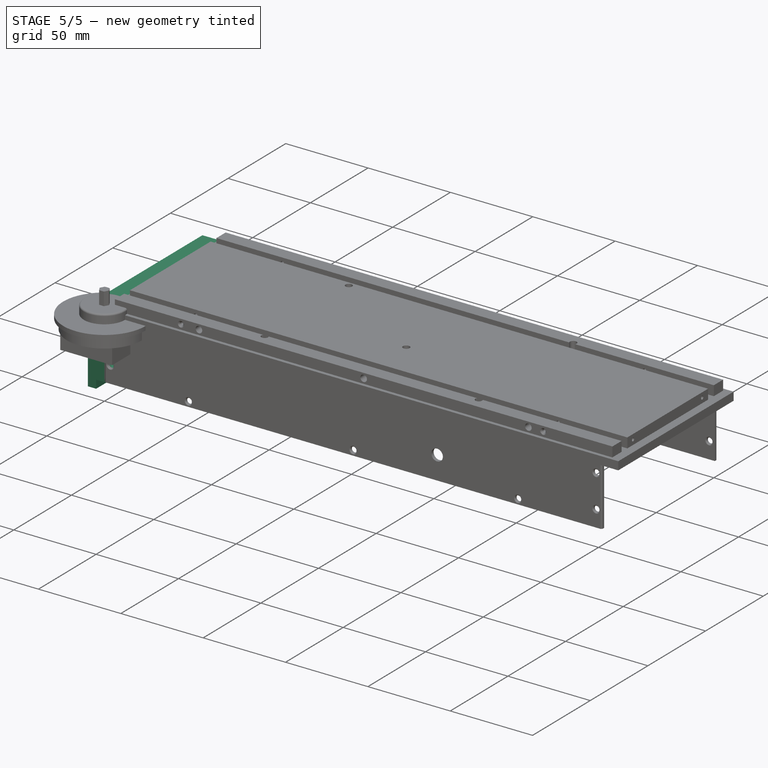
[diagram: stage 5 of 5 — iso view after this stage's code; geometry added in this stage tinted green]
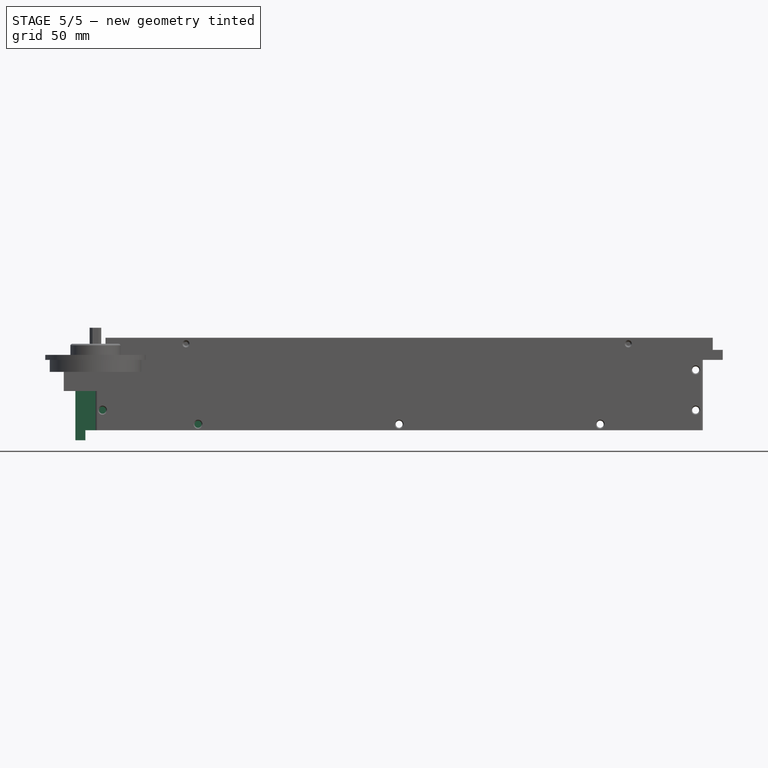
[diagram: stage 5 of 5 — front view after this stage's code; geometry added in this stage tinted green]
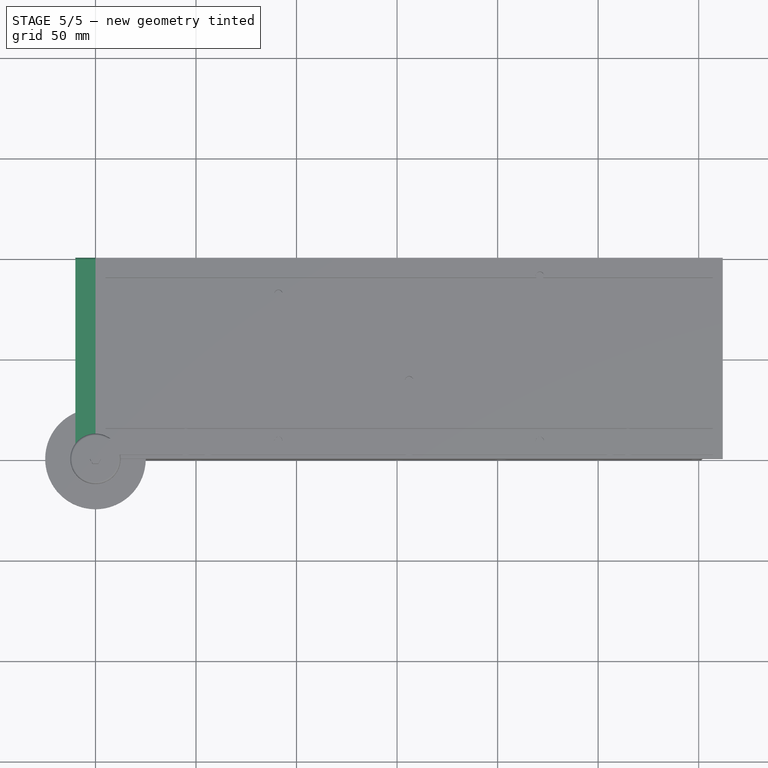
[diagram: stage 5 of 5 — top view after this stage's code; geometry added in this stage tinted green]
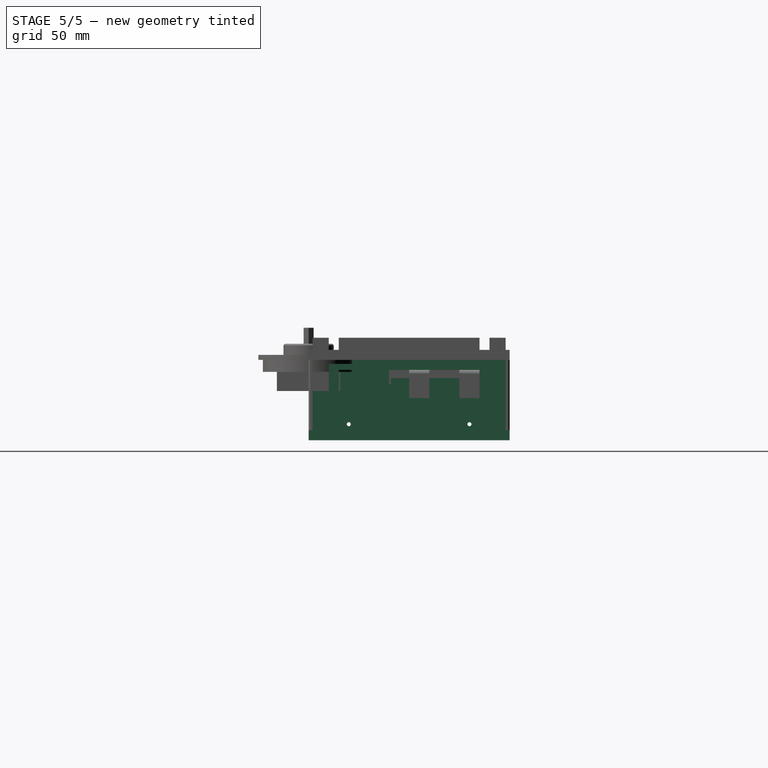
[diagram: stage 5 of 5 — right view after this stage's code; geometry added in this stage tinted green]
FEATURE [Sketcher::SketchObject] Sketch006
  FullyConstrained = true
  MapMode = 5
  Placement = pos=(0,0,0) rot=(1,0,0;3.14159rad)
  Support = -> [Pad003]
  sketch-geometry (4):
    g0: LineSegment StartX=15 StartY=0 StartZ=0 EndX=5 EndY=0 EndZ=0
    g1: LineSegment StartX=5 StartY=0 StartZ=0 EndX=5 EndY=-100 EndZ=0
    g2: LineSegment StartX=5 StartY=-100 StartZ=0 EndX=15 EndY=-100 EndZ=0
    g3: LineSegment StartX=15 StartY=-100 StartZ=0 EndX=15 EndY=0 EndZ=0
  constraints (12):
    c: Coincident(g0,g1)
    c: Coincident(g1,g2)
    c: Coincident(g2,g3)
    c: Coincident(g3,g0)
    c: Horizontal(g0)
    c: Horizontal(g2)
    c: Vertical(g1)
    c: Vertical(g3)
    c: PointOnObject(g0,g-1)
    c: DistanceX(g2,g2) = 10
    c: DistanceX(g-1,g0) = 5
    c: DistanceY(g3,g3) = 100
FEATURE [PartDesign::Pocket] Pocket002
  BaseFeature = -> Pad003
  Direction = (0,0,1)
  Length = 5
  Length2 = 5
  Profile = -> Sketch006
  ReferenceAxis = -> Sketch006 [N_Axis]
  Type = 0
FEATURE [Sketcher::SketchObject] Sketch007
  FullyConstrained = true
  MapMode = 5
  Placement = pos=(10,0,0) rot=(0.57735,0.57735,0.57735;2.0944rad)
  Support = -> [Pocket002]
  sketch-geometry (4):
    g0: LineSegment StartX=2 StartY=11 StartZ=0 EndX=98 EndY=11 EndZ=0
    g1: LineSegment StartX=98 StartY=11 StartZ=0 EndX=98 EndY=40 EndZ=0
    g2: LineSegment StartX=98 StartY=40 StartZ=0 EndX=2 EndY=40 EndZ=0
    g3: LineSegment StartX=2 StartY=40 StartZ=0 EndX=2 EndY=11 EndZ=0
  constraints (12):
    c: Coincident(g0,g1)
    c: Coincident(g1,g2)
    c: Coincident(g2,g3)
    c: Coincident(g3,g0)
    c: Horizontal(g0)
    c: Horizontal(g2)
    c: Vertical(g1)
    c: Vertical(g3)
    c: DistanceY(g3,g3) = 29
    c: DistanceX(g-1,g0) = 2
    c: DistanceY(g-1,g0) = 11
    c: DistanceX(g0,g0) = 96
FEATURE [PartDesign::Pad] Pad004
  BaseFeature = -> Pocket002
  Direction = (1,0,0)
  Length = 7
  Length2 = 10
  Profile = -> Sketch007
  ReferenceAxis = -> Sketch007 [N_Axis]
  Type = 0
FEATURE [Sketcher::SketchObject] Sketch009
  FullyConstrained = true
  MapMode = 5
  Support = -> [XY_Plane004]
  sketch-geometry (4):
    g0: LineSegment StartX=0 StartY=0 StartZ=0 EndX=68 EndY=0 EndZ=0
    g1: LineSegment StartX=68 StartY=0 StartZ=0 EndX=68 EndY=80 EndZ=0
    g2: LineSegment StartX=68 StartY=80 StartZ=0 EndX=0 EndY=80 EndZ=0
    g3: LineSegment StartX=0 StartY=80 StartZ=0 EndX=0 EndY=0 EndZ=0
  constraints (11):
    c: Coincident(g0,g1)
    c: Coincident(g1,g2)
    c: Coincident(g2,g3)
    c: Coincident(g3,g0)
    c: Horizontal(g0)
    c: Horizontal(g2)
    c: Vertical(g1)
    c: Vertical(g3)
    c: Coincident(g0,g-1)
    c: DistanceY(g1,g1) = 80
    c: DistanceX(g2,g2) = 68
FEATURE [PartDesign::Pad] Pad005
  Direction = (0,0,1)
  Length = 3
  Length2 = 10
  Profile = -> Sketch009
  ReferenceAxis = -> Sketch009 [N_Axis]
  Type = 0
FEATURE [Sketcher::SketchObject] Sketch010
  FullyConstrained = true
  MapMode = 5
  Placement = pos=(0,0,3) rot=(0,0,1;0rad)
  Support = -> [Pad005]
  sketch-geometry (1):
    g0: Circle CenterX=34 CenterY=40 CenterZ=0 NormalX=0 NormalY=0 NormalZ=1 AngleXU=0 Radius=23
  constraints (3):
    c: Diameter(g0) = 46
    c: DistanceX(g-1,g0) = 34
    c: DistanceY(g-1,g0) = 40
FEATURE [PartDesign::Pocket] Pocket004
  BaseFeature = -> Pad005
  Direction = (0,0,-1)
  Length = 3
  Length2 = 5
  Profile = -> Sketch010
  ReferenceAxis = -> Sketch010 [N_Axis]
  Type = 0
FEATURE [Sketcher::SketchObject] Sketch011
  FullyConstrained = true
  MapMode = 5
  Placement = pos=(0,0,0) rot=(1,0,0;3.14159rad)
  Support = -> [Pocket004]
  sketch-geometry (8):
    g0: LineSegment StartX=0 StartY=0 StartZ=0 EndX=68 EndY=0 EndZ=0
    g1: LineSegment StartX=68 StartY=0 StartZ=0 EndX=68 EndY=-5 EndZ=0
    g2: LineSegment StartX=68 StartY=-5 StartZ=0 EndX=0 EndY=-5 EndZ=0
    g3: LineSegment StartX=0 StartY=-5 StartZ=0 EndX=0 EndY=0 EndZ=0
    g4: LineSegment StartX=0 StartY=-80 StartZ=0 EndX=68 EndY=-80 EndZ=0
    g5: LineSegment StartX=68 StartY=-80 StartZ=0 EndX=68 EndY=-75 EndZ=0
    g6: LineSegment StartX=68 StartY=-75 StartZ=0 EndX=0 EndY=-75 EndZ=0
    g7: LineSegment StartX=0 StartY=-75 StartZ=0 EndX=0 EndY=-80 EndZ=0
  constraints (23):
    c: Coincident(g0,g1)
    c: Coincident(g1,g2)
    c: Coincident(g2,g3)
    c: Coincident(g3,g0)
    c: Horizontal(g0)
    c: Horizontal(g2)
    c: Vertical(g1)
    c: Vertical(g3)
    c: Coincident(g0,g-1)
    c: DistanceY(g1,g1) = 5
    c: DistanceX(g2,g2) = 68
    c: Coincident(g4,g5)
    c: Coincident(g5,g6)
    c: Coincident(g6,g7)
    c: Coincident(g7,g4)
    c: Horizontal(g4)
    c: Horizontal(g6)
    c: Vertical(g5)
    c: Vertical(g7)
    c: PointOnObject(g4,g-2)
    c: DistanceX(g4,g4) = 68
    c: DistanceY(g5,g5) = 5
    c: DistanceY(g4,g0) = 80
FEATURE [PartDesign::Pad] Pad006
  BaseFeature = -> Pocket004
  Direction = (0,0,-1)
  Length = 30
  Length2 = 10
  Profile = -> Sketch011
  ReferenceAxis = -> Sketch011 [N_Axis]
  Type = 0
FEATURE [Sketcher::SketchObject] Sketch014
  FullyConstrained = true
  MapMode = 5
  Placement = pos=(0,0,0) rot=(0.57735,-0.57735,-0.57735;2.0944rad)
  Support = -> [Pad004]
  sketch-geometry (4):
    g0: Circle CenterX=-20 CenterY=8 CenterZ=0 NormalX=0 NormalY=0 NormalZ=1 AngleXU=0 Radius=1
    g1: Circle CenterX=-20 CenterY=8 CenterZ=0 NormalX=0 NormalY=0 NormalZ=1 AngleXU=0 Radius=3.3
    g2: Circle CenterX=-80 CenterY=8 CenterZ=0 NormalX=0 NormalY=0 NormalZ=1 AngleXU=0 Radius=1
    g3: Circle CenterX=-80 CenterY=8 CenterZ=0 NormalX=0 NormalY=0 NormalZ=1 AngleXU=0 Radius=3.3
  constraints (10):
    c: Diameter(g0) = 2
    c: Coincident(g1,g0)
    c: Diameter(g1) = 6.6
    c: DistanceY(g-1,g0) = 8
    c: DistanceX(g0,g-1) = 20
    c: Equal(g0,g2) = 2
    c: Coincident(g3,g2)
    c: Equal(g1,g3) = 6.6
    c: Horizontal(g2,g0)
    c: DistanceX(g2,g0) = 60
FEATURE [PartDesign::Pocket] Pocket007  label="Wood-to-wood Screw Holes"
  BaseFeature = -> Pad004
  Direction = (1,0,0)
  Length = 10
  Length2 = 5
  Profile = -> Sketch014
  ReferenceAxis = -> Sketch014 [N_Axis]
  Type = 0
FEATURE [Sketcher::SketchObject] Sketch015
  FullyConstrained = true
  MapMode = 5
  Placement = pos=(0,0,0) rot=(0.57735,-0.57735,-0.57735;2.0944rad)
  Support = -> [Pocket007]
  sketch-geometry (2):
    g0: Circle CenterX=-20 CenterY=8 CenterZ=0 NormalX=0 NormalY=0 NormalZ=1 AngleXU=0 Radius=3.5
    g1: Circle CenterX=-80 CenterY=8 CenterZ=0 NormalX=0 NormalY=0 NormalZ=1 AngleXU=0 Radius=3.5
  constraints (6):
    c: Diameter(g0) = 7
    c: DistanceX(g0,g-1) = 20
    c: DistanceY(g-1,g0) = 8
    c: Equal(g0,g1) = 7
    c: DistanceX(g1,g0) = 60
    c: Horizontal(g1,g0)
FEATURE [PartDesign::Pocket] Pocket008  label="Wood-to-wood Screw Hole Counterbore"
  BaseFeature = -> Pocket007
  Direction = (1,0,0)
  Length = 2
  Length2 = 5
  Profile = -> Sketch015
  ReferenceAxis = -> Sketch015 [N_Axis]
  Type = 0
FEATURE [Sketcher::SketchObject] Sketch016
  FullyConstrained = true
  MapMode = 5
  Placement = pos=(0,2,0) rot=(1,0,0;1.5708rad)
  Support = -> [Pocket008]
  sketch-geometry (4):
    g0: Circle CenterX=13.5 CenterY=15 CenterZ=0 NormalX=0 NormalY=0 NormalZ=1 AngleXU=0 Radius=2
    g1: Circle CenterX=13.5 CenterY=15 CenterZ=0 NormalX=0 NormalY=0 NormalZ=1 AngleXU=0 Radius=1.5
    g2: Circle CenterX=13.5 CenterY=35 CenterZ=0 NormalX=0 NormalY=0 NormalZ=1 AngleXU=0 Radius=2
    g3: Circle CenterX=13.5 CenterY=35 CenterZ=0 NormalX=0 NormalY=0 NormalZ=1 AngleXU=0 Radius=1.5
  constraints (10):
    c: Diameter(g0) = 4
    c: DistanceX(g-1,g0) = 13.5
    c: DistanceY(g-1,g0) = 15
    c: Coincident(g1,g0)
    c: Diameter(g1) = 3
    c: Equal(g0,g2) = 4
    c: Coincident(g3,g2)
    c: Equal(g1,g3) = 3
    c: DistanceY(g-1,g2) = 35
    c: Vertical(g2,g0)
FEATURE [PartDesign::Pocket] Pocket009  label="Front Brass Insert Holes"
  BaseFeature = -> Pocket008
  Direction = (0,1,-2e-16)
  Length = 5
  Length2 = 5
  Profile = -> Sketch016
  ReferenceAxis = -> Sketch016 [N_Axis]
  Type = 0
FEATURE [Sketcher::SketchObject] Sketch017
  FullyConstrained = true
  MapMode = 5
  Placement = pos=(0,98,0) rot=(0,0.707107,0.707107;3.14159rad)
  Support = -> [Pocket009]
  sketch-geometry (2):
    g0: Circle CenterX=-13.5 CenterY=15 CenterZ=0 NormalX=0 NormalY=0 NormalZ=1 AngleXU=0 Radius=2
    g1: Circle CenterX=-13.5 CenterY=35 CenterZ=0 NormalX=0 NormalY=0 NormalZ=1 AngleXU=0 Radius=2
  constraints (6):
    c: Diameter(g0) = 4
    c: DistanceX(g0,g-1) = 13.5
    c: DistanceY(g-1,g0) = 15
    c: Equal(g0,g1) = 4
    c: DistanceY(g-1,g1) = 35
    c: Vertical(g1,g0)
FEATURE [PartDesign::Pocket] Pocket010  label="Rear Brass Insert Holes"
  BaseFeature = -> Pocket009
  Direction = (0,-1,2e-16)
  Length = 5
  Length2 = 5
  Profile = -> Sketch017
  ReferenceAxis = -> Sketch017 [N_Axis]
  Type = 0
FEATURE [Sketcher::SketchObject] Sketch024
  FullyConstrained = true
  MapMode = 5
  Placement = pos=(0,0,0) rot=(1,0,0;1.5708rad)
  Support = -> [Pad006]
  sketch-geometry (1):
    g0: Circle CenterX=33 CenterY=-27 CenterZ=0 NormalX=0 NormalY=0 NormalZ=1 AngleXU=0 Radius=1
  constraints (3):
    c: Diameter(g0) = 2
    c: DistanceX(g-1,g0) = 33
    c: DistanceY(g0,g-1) = 27
FEATURE [PartDesign::Pocket] Pocket017  label="Front Mounting Hole"
  BaseFeature = -> Pad006
  Direction = (0,1,-2e-16)
  Length = 5
  Length2 = 5
  Profile = -> Sketch024
  ReferenceAxis = -> Sketch024 [N_Axis]
  Type = 0
FEATURE [Sketcher::SketchObject] Sketch025
  FullyConstrained = true
  MapMode = 5
  Placement = pos=(0,80,0) rot=(0,0.707107,0.707107;3.14159rad)
  Support = -> [Pocket017]
  sketch-geometry (1):
    g0: Circle CenterX=-33 CenterY=-27 CenterZ=0 NormalX=0 NormalY=0 NormalZ=1 AngleXU=0 Radius=1
  constraints (3):
    c: Diameter(g0) = 2
    c: DistanceX(g0,g-1) = 33
    c: DistanceY(g0,g-1) = 27
FEATURE [PartDesign::Pocket] Pocket018  label="Rear Mounting Hole"
  BaseFeature = -> Pocket017
  Direction = (0,-1,2e-16)
  Length = 5
  Length2 = 5
  Profile = -> Sketch025
  ReferenceAxis = -> Sketch025 [N_Axis]
  Type = 0
FEATURE [Sketcher::SketchObject] Sketch026
  FullyConstrained = true
  MapMode = 5
  Placement = pos=(0,0,3) rot=(0,0,1;0rad)
  Support = -> [Pocket018]
  sketch-geometry (4):
    g0: Circle CenterX=22.6 CenterY=2.5 CenterZ=0 NormalX=0 NormalY=0 NormalZ=1 AngleXU=0 Radius=0.5
    g1: Circle CenterX=45.3 CenterY=2.5 CenterZ=0 NormalX=0 NormalY=0 NormalZ=1 AngleXU=0 Radius=0.5
    g2: Circle CenterX=22.6 CenterY=77.5 CenterZ=0 NormalX=0 NormalY=0 NormalZ=1 AngleXU=0 Radius=0.5
    g3: Circle CenterX=45.3 CenterY=77.5 CenterZ=0 NormalX=0 NormalY=0 NormalZ=1 AngleXU=0 Radius=0.5
  constraints (12):
    c: Diameter(g0) = 1
    c: DistanceY(g-1,g0) = 2.5
    c: DistanceX(g-1,g0) = 22.6
    c: Equal(g1,g0)
    c: Horizontal(g1,g0)
    c: DistanceX(g-1,g1) = 45.3
    c: Equal(g0,g2) = 1
    c: Equal(g3,g2)
    c: Horizontal(g3,g2)
    c: Vertical(g2,g0)
    c: Vertical(g1,g3)
    c: DistanceY(g-1,g2) = 77.5
FEATURE [PartDesign::Pocket] Pocket019  label="Top Screw Holes"
  BaseFeature = -> Pocket018
  Direction = (0,0,-1)
  Length = 10
  Length2 = 5
  Profile = -> Sketch026
  ReferenceAxis = -> Sketch026 [N_Axis]
  Type = 0
FEATURE [PartDesign::Chamfer] Chamfer002  label="Top Screw Hole Countersinking"
  Angle = 45
  Base = -> Pocket019 [Edge20,Edge21,Edge24,Edge22]
  BaseFeature = -> Pocket019
  ChamferType = 0
  FlipDirection = false
  Size = 0.8
  Size2 = 1
  SupportTransform = false
  UseAllEdges = false
FEATURE [PartDesign::Body] Body004  label="MDF - Left Speaker Mount"
  Group = -> [Sketch009,Pad005,Sketch010,Pocket004,Sketch011,Pad006,Sketch024,Pocket017,Sketch025,Pocket018,Sketch026,Pocket019,Chamfer002]
  Origin = -> Origin004
  Placement = pos=(7,10,-5) rot=(0,0,1;0rad)
  Tip = -> Chamfer002
FEATURE [PartDesign::FeatureBase] Clone001
  BaseFeature = -> Body004
  Placement = pos=(10,10,-5) rot=(0,0,1;0rad)
FEATURE [PartDesign::Fillet] Fillet001
  Base = -> Pocket010 [Edge5,Edge22]
  BaseFeature = -> Pocket010
  Radius = 1
  SupportTransform = false
  UseAllEdges = false
FEATURE [PartDesign::Body] Body002  label="Wood - Left Side Panel"
  Group = -> [Sketch005,Pad003,Sketch006,Pocket002,Sketch007,Pad004,Sketch014,Pocket007,Sketch015,Pocket008,Sketch016,Pocket009,Sketch017,Pocket010,Fillet001]
  Origin = -> Origin002
  Placement = pos=(-10,0,-40) rot=(0,0,1;0rad)
  Tip = -> Fillet001
FEATURE [PartDesign::FeatureBase] Clone
  BaseFeature = -> Body002
  Placement = pos=(-10,0,-40) rot=(0,0,1;0rad)
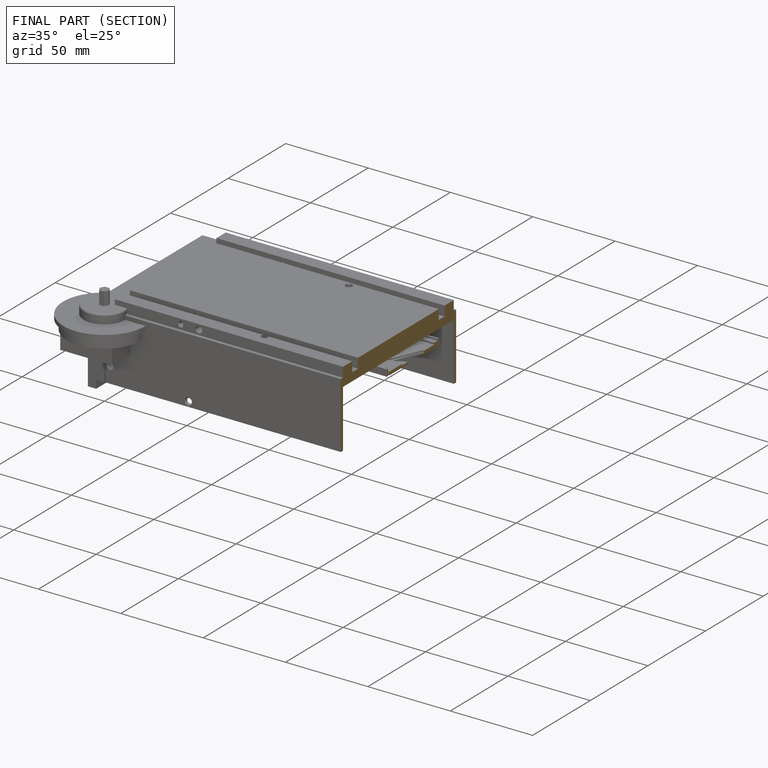
[diagram: finished part — half-section view (interior)]
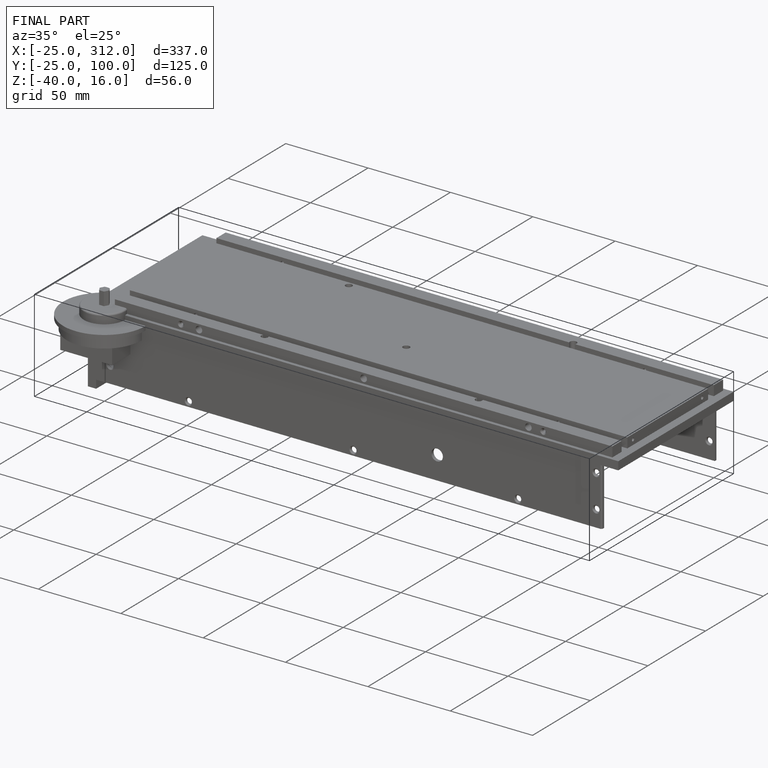
[diagram: finished part — iso view with bounding-box wireframe]
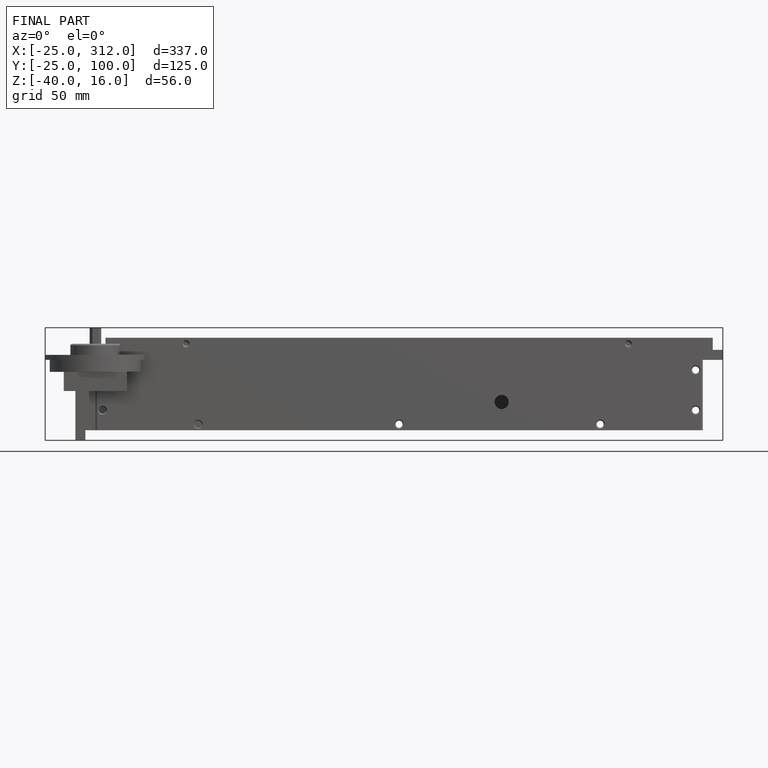
[diagram: finished part — front view with bounding-box wireframe]
